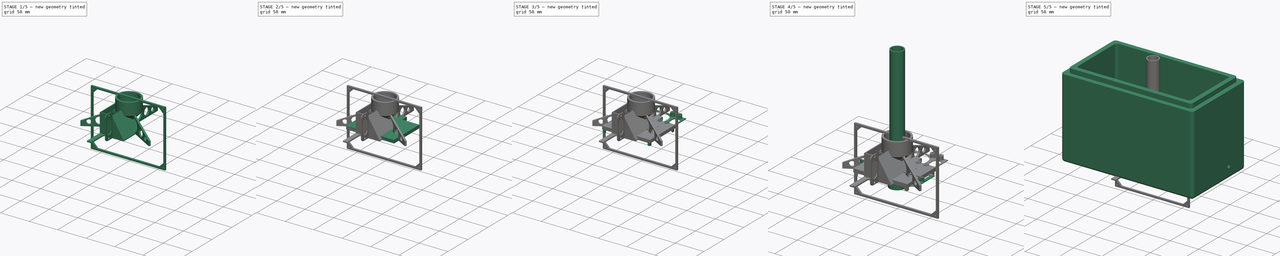
[diagram: build sequence overview — one tinted view per stage of 5, left to right]
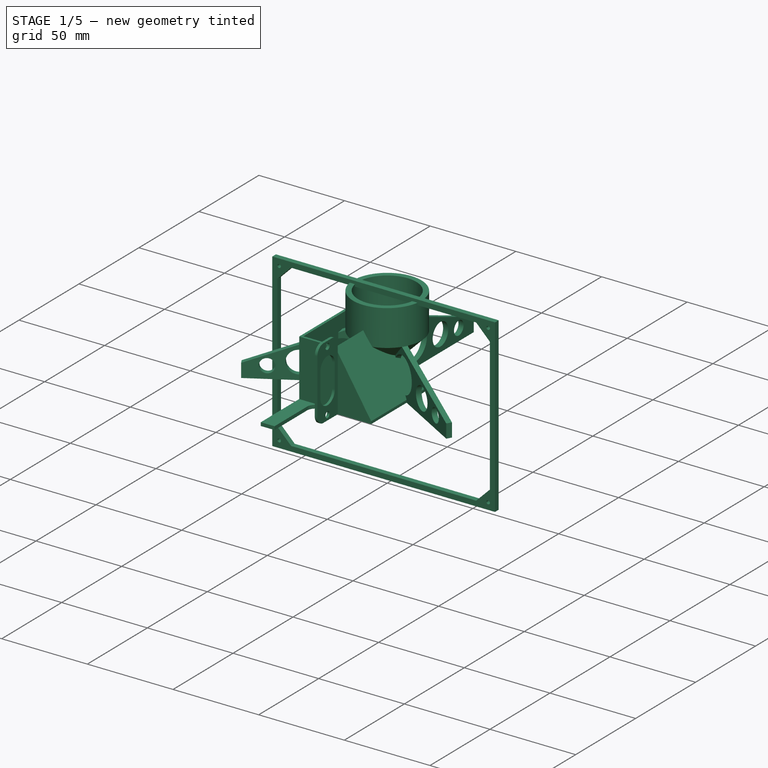
[diagram: stage 1 of 5 — iso view after this stage's code; geometry added in this stage tinted green]
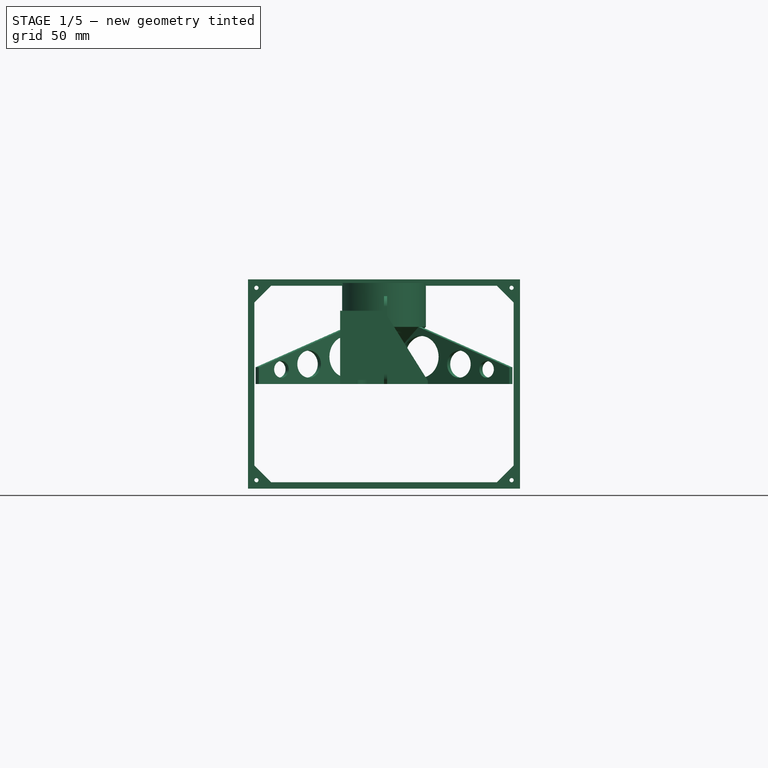
[diagram: stage 1 of 5 — front view after this stage's code; geometry added in this stage tinted green]
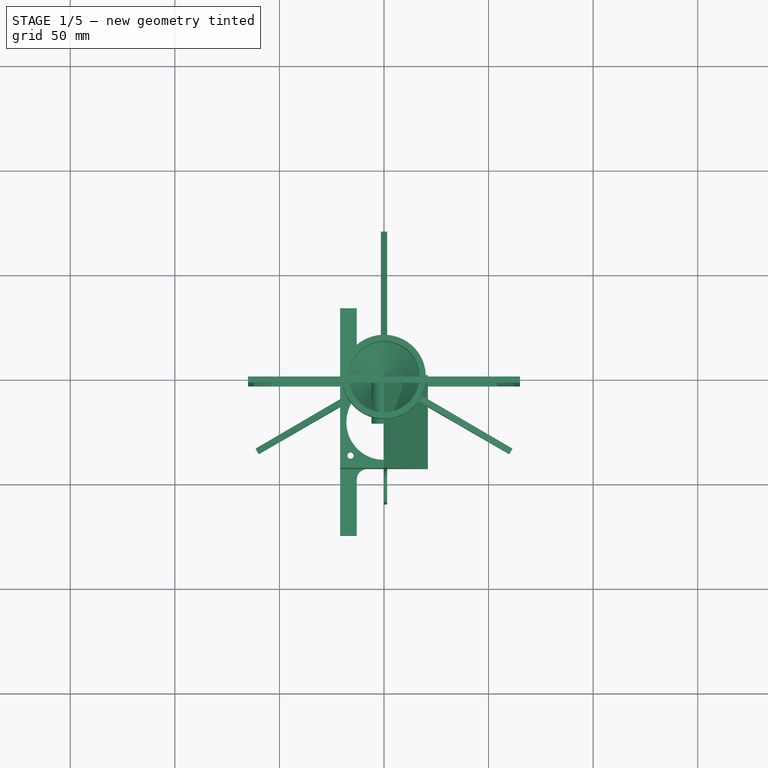
[diagram: stage 1 of 5 — top view after this stage's code; geometry added in this stage tinted green]
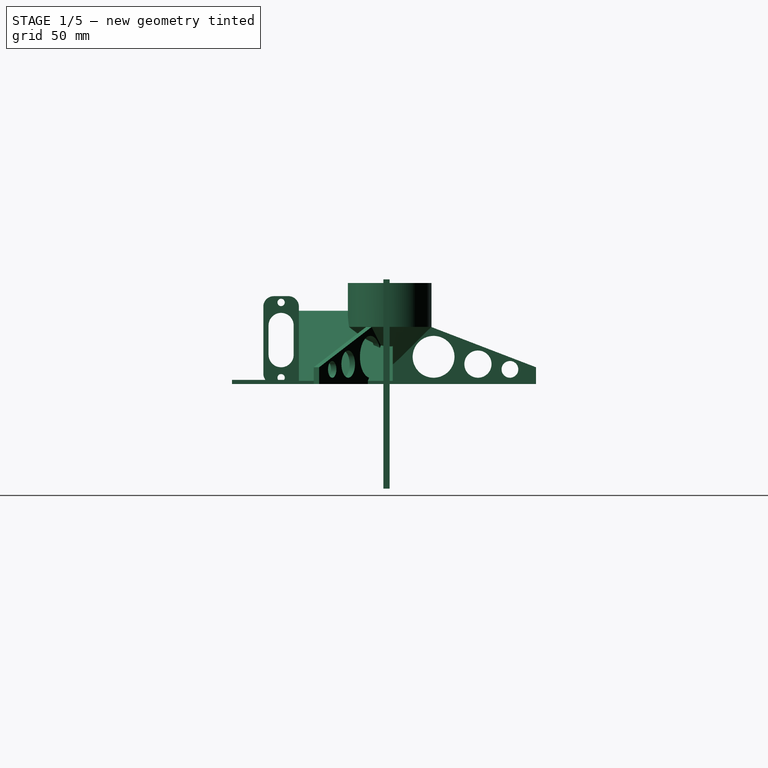
[diagram: stage 1 of 5 — right view after this stage's code; geometry added in this stage tinted green]
FCSTD DOCUMENT  (FreeCAD 1.0R39319 (Git))
Label: MiniIncubator
License: All rights reserved
LicenseURL: https://en.wikipedia.org/wiki/All_rights_reserved
objects: Sketcher::SketchObject×81, PartDesign::Pad×52, PartDesign::Pocket×24, PartDesign::Body×18, App::VarSet×9, App::DocumentObjectGroup×4, PartDesign::Fillet×3, PartDesign::Revolution×2, Part::FeaturePython×1, PartDesign::PolarPattern×1
note: 426 computed .brp shape members not serialized (recipe doc carries the construction recipe); baked Part::Feature solids carry a one-line shape summary decoded from their .brp

FEATURE [PartDesign::Body] Body011  label="ElectronicsBoxCover"
  AllowCompound = false
  Group = -> [Sketch058,Pad036,Sketch059,Pad037,Sketch060,Pocket018,Sketch064,Pocket020,Sketch065,Pad040,Sketch066,Pocket021,Sketch067,Pad041,Sketch069,Pad042,Sketch070,Pocket022,Sketch071,Pad043]
  Origin = -> Origin011
  Tip = -> Pad043
FEATURE [App::DocumentObjectGroup] Group002  label="ElectronicsMounts"
  Group = -> [Body011,Facebinder,Body014]
FEATURE [Sketcher::SketchObject] Sketch072
  ArcFitTolerance = 1e-06
  AttachmentSupport = -> [XZ_Plane015]
  FullyConstrained = true
  MakeInternals = false
  MapMode = 5
  Placement = pos=(0,0,0) rot=(1,0,0;1.5708rad)
  expr: Constraints[20] = <<Measurements>>.HeatingElementLength + 30 mm
  expr: Constraints[21] = <<Measurements>>.HeatingElementLength
  expr: Constraints[22] = <<Measurements>>.IncubatorInnerWidth
  expr: Constraints[23] = <<Measurements>>.HeatingElementWidth
  sketch-geometry (26):
    g0: LineSegment StartX=-65 StartY=50 StartZ=0 EndX=-65 EndY=-50 EndZ=0
    g1: LineSegment StartX=-65 StartY=-50 StartZ=0 EndX=65 EndY=-50 EndZ=0
    g2: LineSegment StartX=65 StartY=-50 StartZ=0 EndX=65 EndY=50 EndZ=0
    g3: LineSegment StartX=65 StartY=50 StartZ=0 EndX=-65 EndY=50 EndZ=0
    g4: GeomPoint [constr] X=0 Y=0 Z=0
    g5: LineSegment [constr] StartX=-50 StartY=40 StartZ=0 EndX=-50 EndY=-40 EndZ=0
    g6: LineSegment [constr] StartX=-50 StartY=-40 StartZ=0 EndX=50 EndY=-40 EndZ=0
    g7: LineSegment [constr] StartX=50 StartY=-40 StartZ=0 EndX=50 EndY=40 EndZ=0
    g8: LineSegment [constr] StartX=50 StartY=40 StartZ=0 EndX=-50 EndY=40 EndZ=0
    g9: GeomPoint [constr] X=0 Y=0 Z=0
    g10: LineSegment StartX=-62 StartY=39 StartZ=0 EndX=-62 EndY=-39 EndZ=0
    g11: LineSegment StartX=62 StartY=39 StartZ=0 EndX=62 EndY=-39 EndZ=0
    g12: LineSegment StartX=62 StartY=-39 StartZ=0 EndX=54 EndY=-47 EndZ=0
    g13: LineSegment StartX=54 StartY=-47 StartZ=0 EndX=-54 EndY=-47 EndZ=0
    g14: LineSegment StartX=-62 StartY=39 StartZ=0 EndX=-54 EndY=47 EndZ=0
    g15: LineSegment StartX=-54 StartY=47 StartZ=0 EndX=54 EndY=47 EndZ=0
    g16: LineSegment StartX=54 StartY=47 StartZ=0 EndX=62 EndY=39 EndZ=0
    g17: LineSegment StartX=-62 StartY=-39 StartZ=0 EndX=-54 EndY=-47 EndZ=0
    g18: LineSegment [constr] StartX=-54 StartY=47 StartZ=0 EndX=-54 EndY=50 EndZ=0
    g19: LineSegment [constr] StartX=-62 StartY=39 StartZ=0 EndX=-65 EndY=39 EndZ=0
    g20: LineSegment [constr] StartX=62 StartY=39 StartZ=0 EndX=65 EndY=39 EndZ=0
    g21: LineSegment [constr] StartX=-54 StartY=-47 StartZ=0 EndX=-54 EndY=-50 EndZ=0
    g22: Circle CenterX=-61 CenterY=46 CenterZ=0 NormalX=0 NormalY=0 NormalZ=1 AngleXU=0 Radius=1
    g23: Circle CenterX=61 CenterY=46 CenterZ=0 NormalX=0 NormalY=0 NormalZ=1 AngleXU=0 Radius=1
    g24: Circle CenterX=61 CenterY=-46 CenterZ=0 NormalX=0 NormalY=0 NormalZ=1 AngleXU=0 Radius=1
    g25: Circle CenterX=-61 CenterY=-46 CenterZ=0 NormalX=0 NormalY=0 NormalZ=1 AngleXU=0 Radius=1
  constraints (72):
    c: Coincident(g0,g1)
    c: Coincident(g1,g2)
    c: Coincident(g2,g3)
    c: Coincident(g3,g0)
    c: Vertical(g0)
    c: Vertical(g2)
    c: Horizontal(g1)
    c: Horizontal(g3)
    c: Symmetric(g2,g0,g4)
    c: Coincident(g4,g-1)
    c: Coincident(g5,g6)
    c: Coincident(g6,g7)
    c: Coincident(g7,g8)
    c: Coincident(g8,g5)
    c: Vertical(g5)
    c: Vertical(g7)
    c: Horizontal(g6)
    c: Horizontal(g8)
    c: Symmetric(g7,g5,g9)
    c: Coincident(g9,g4)
    c: DistanceX(g3,g3) = 130
    c: DistanceX(g8,g8) = 100
    c: DistanceY(g0,g0) = 100
    c: DistanceY(g5,g5) = 80
    c: Vertical(g10)
    c: Vertical(g11)
    c: Coincident(g12,g11)
    c: Coincident(g13,g12)
    c: Horizontal(g13)
    c: Coincident(g14,g10)
    c: Coincident(g15,g14)
    c: Horizontal(g15)
    c: Coincident(g16,g15)
    c: Coincident(g16,g11)
    c: Coincident(g17,g10)
    c: Coincident(g17,g13)
    c: DistanceY(g14,g0) = 3
    c: Coincident(g18,g14)
    c: PointOnObject(g18,g3)
    c: Vertical(g18)
    c: Coincident(g19,g10)
    c: PointOnObject(g19,g0)
    c: Horizontal(g19)
    c: Equal(g18,g19)
    c: Coincident(g20,g11)
    c: PointOnObject(g20,g2)
    c: Horizontal(g20)
    c: Coincident(g21,g13)
    c: PointOnObject(g21,g1)
    c: Vertical(g21)
    c: Equal(g19,g21)
    c: Equal(g20,g18)
    c: Equal(g10,g11)
    c: Equal(g15,g13)
    c: Parallel(g17,g16)
    c: Parallel(g14,g12)
    c: Angle(g13,g12) = 0.785398
    c: Angle(g17,g13) = 0.785398
    c: DistanceX(g10,g13) = 8
    c: Equal(g17,g12)
    c: Diameter(g22) = 2
    c: Tangent(g25,g13)
    c: Tangent(g25,g10)
    c: Tangent(g22,g10)
    c: Tangent(g22,g15)
    c: Tangent(g15,g23)
    c: Tangent(g23,g11)
    c: Equal(g22,g23)
    c: Equal(g23,g24)
    c: Tangent(g24,g11)
    c: Tangent(g13,g24)
    c: Equal(g24,g25)
FEATURE [PartDesign::Pad] Pad044
  Direction = (0,-1,2e-16)
  Length = 3
  Length2 = 10
  Placement = pos=(0,0,0) rot=(1,0,0;1.5708rad)
  Profile = -> Sketch072
  ReferenceAxis = -> Sketch072 [N_Axis]
  Refine = true
  Suppressed = false
  Type = 0
FEATURE [PartDesign::Body] Body015  label="HeatingElementHolder5V"
  AllowCompound = false
  Group = -> [Sketch072,Pad044]
  Origin = -> Origin015
  Tip = -> Pad044
FEATURE [Sketcher::SketchObject] Sketch075
  ArcFitTolerance = 1e-06
  AttachmentSupport = -> [XZ_Plane017]
  FullyConstrained = true
  MakeInternals = false
  MapMode = 5
  Placement = pos=(0,0,0) rot=(1,0,0;1.5708rad)
  sketch-geometry (9):
    g0: LineSegment StartX=-21 StartY=0 StartZ=0 EndX=21 EndY=0 EndZ=0
    g1: LineSegment StartX=-21 StartY=0 StartZ=0 EndX=-21 EndY=35 EndZ=0
    g2: LineSegment StartX=19.2296 StartY=1.5 StartZ=0 EndX=-19.5 EndY=1.5 EndZ=0
    g3: LineSegment StartX=-19.5 StartY=1.5 StartZ=0 EndX=-19.5 EndY=35 EndZ=0
    g4: LineSegment StartX=19.2296 StartY=1.5 StartZ=0 EndX=0 EndY=32.1759 EndZ=0
    g5: LineSegment StartX=21 StartY=0 StartZ=0 EndX=21 EndY=1.5 EndZ=0
    g6: LineSegment StartX=0 StartY=35 StartZ=0 EndX=21 EndY=1.5 EndZ=0
    g7: LineSegment StartX=0 StartY=35 StartZ=0 EndX=0 EndY=32.1759 EndZ=0
    g8: LineSegment StartX=-21 StartY=35 StartZ=0 EndX=-19.5 EndY=35 EndZ=0
  constraints (26):
    c: Coincident(g1,g0)
    c: Vertical(g1)
    c: DistanceY(g1,g1) = 35
    c: PointOnObject(g0,g-1)
    c: DistanceX(g0,g0) = 42
    c: Distance(g2,g-1) = 1.5
    c: Horizontal(g2)
    c: Coincident(g3,g2)
    c: Vertical(g3)
    c: Coincident(g4,g2)
    c: PointOnObject(g4,g-2)
    c: Coincident(g5,g0)
    c: Vertical(g5)
    c: PointOnObject(g6,g-2)
    c: Coincident(g6,g5)
    c: Horizontal(g5,g2)
    c: Distance(g2,g6) = 1.5
    c: Parallel(g4,g6)
    c: Coincident(g7,g6)
    c: Coincident(g7,g4)
    c: Coincident(g8,g1)
    c: Coincident(g8,g3)
    c: Horizontal(g8)
    c: DistanceX(g8,g8) = 1.5
    c: Horizontal(g3,g6)
    c: Symmetric(g0,g0,g-2)
FEATURE [PartDesign::Pad] Pad047
  Direction = (0,-1,2e-16)
  Length = 42
  Length2 = 10
  Placement = pos=(0,0,0) rot=(1,0,0;1.5708rad)
  Profile = -> Sketch075
  ReferenceAxis = -> Sketch075 [N_Axis]
  Refine = true
  Suppressed = false
  Type = 0
FEATURE [Sketcher::SketchObject] Sketch076
  ArcFitTolerance = 1e-06
  AttachmentSupport = -> [Pad047]
  ExternalGeometry = -> [Pad047]
  FullyConstrained = false
  MakeInternals = false
  MapMode = 5
  Placement = pos=(0,0,0) rot=(1,0,0;3.14159rad)
  sketch-geometry (9):
    g0: Circle CenterX=-7.9e-15 CenterY=21 CenterZ=0 NormalX=0 NormalY=0 NormalZ=1 AngleXU=0 Radius=18
    g1: LineSegment [constr] StartX=-21 StartY=0 StartZ=0 EndX=21 EndY=0 EndZ=0
    g2: GeomPoint [constr] X=-7.9e-15 Y=21 Z=0
    g3: LineSegment [constr] StartX=-16 StartY=37 StartZ=0 EndX=16 EndY=37 EndZ=0
    g4: LineSegment [constr] StartX=-16 StartY=5 StartZ=0 EndX=16 EndY=5 EndZ=0
    g5: Circle CenterX=-16 CenterY=37 CenterZ=0 NormalX=0 NormalY=0 NormalZ=1 AngleXU=0 Radius=1.5
    g6: Circle CenterX=16 CenterY=37 CenterZ=0 NormalX=0 NormalY=0 NormalZ=1 AngleXU=0 Radius=1.5
    g7: Circle CenterX=16 CenterY=5 CenterZ=0 NormalX=0 NormalY=0 NormalZ=1 AngleXU=0 Radius=1.5
    g8: Circle CenterX=-16 CenterY=5 CenterZ=0 NormalX=0 NormalY=0 NormalZ=1 AngleXU=0 Radius=1.5
  constraints (19):
    c: Diameter(g0) = 36
    c: Coincident(g2,g0)
    c: DistanceX(g3,g3) = 32
    c: Equal(g3,g4)
    c: Symmetric(g4,g3,g0)
    c: DistanceY(g4,g3) = 32
    c: Horizontal(g3)
    c: Diameter(g5) = 3
    c: Coincident(g5,g3)
    c: Coincident(g6,g3)
    c: Coincident(g7,g4)
    c: Coincident(g8,g4)
    c: Equal(g5,g8)
    c: Equal(g8,g7)
    c: Equal(g7,g6)
    c: Symmetric(g4,g4,g-2)
    c: Vertical(g3,g4)
    c: PointOnObject(g1,g-1)
    c: DistanceY(g0,g-3) = 21
FEATURE [PartDesign::Pocket] Pocket023
  BaseFeature = -> Pad047
  Direction = (0,0,1)
  Length = 2
  Length2 = 5
  Placement = pos=(0,0,0) rot=(1,0,0;1.5708rad)
  Profile = -> Sketch076
  ReferenceAxis = -> Sketch076 [N_Axis]
  Refine = true
  Suppressed = false
  Type = 0
FEATURE [Sketcher::SketchObject] Sketch077
  ArcFitTolerance = 1e-06
  AttachmentSupport = -> [Pocket023]
  ExternalGeometry = -> [Pocket023]
  FullyConstrained = true
  MakeInternals = false
  MapMode = 5
  Placement = pos=(0,2.7e-15,0) rot=(-1,0,0;1.5708rad)
  sketch-geometry (5):
    g0: LineSegment StartX=-21 StartY=-35 StartZ=0 EndX=0 EndY=-35 EndZ=0
    g1: LineSegment StartX=0 StartY=-35 StartZ=0 EndX=21 EndY=-1.5 EndZ=0
    g2: LineSegment StartX=21 StartY=-1.5 StartZ=0 EndX=21 EndY=0 EndZ=0
    g3: LineSegment StartX=21 StartY=0 StartZ=0 EndX=-21 EndY=0 EndZ=0
    g4: LineSegment StartX=-21 StartY=0 StartZ=0 EndX=-21 EndY=-35 EndZ=0
  constraints (10):
    c: Coincident(g0,g-3)
    c: Coincident(g0,g-4)
    c: Coincident(g1,g0)
    c: Coincident(g1,g-4)
    c: Coincident(g2,g1)
    c: Coincident(g2,g-5)
    c: Coincident(g3,g2)
    c: Coincident(g3,g-5)
    c: Coincident(g4,g3)
    c: Coincident(g4,g0)
FEATURE [PartDesign::Pad] Pad048
  BaseFeature = -> Pocket023
  Direction = (0,1,2e-16)
  Length = 1.5
  Length2 = 10
  Placement = pos=(0,0,0) rot=(1,0,0;1.5708rad)
  Profile = -> Sketch077
  ReferenceAxis = -> Sketch077 [N_Axis]
  Refine = true
  Suppressed = false
  Type = 0
FEATURE [Sketcher::SketchObject] Sketch078
  ArcFitTolerance = 1e-06
  AttachmentSupport = -> [Pad048]
  ExternalGeometry = -> [Pad048]
  FullyConstrained = true
  MakeInternals = false
  MapMode = 5
  Placement = pos=(0,-42,0) rot=(1,0,0;1.5708rad)
  sketch-geometry (5):
    g0: LineSegment StartX=-21 StartY=35 StartZ=0 EndX=-21 EndY=0 EndZ=0
    g1: LineSegment StartX=-21 StartY=0 StartZ=0 EndX=21 EndY=0 EndZ=0
    g2: LineSegment StartX=21 StartY=0 StartZ=0 EndX=21 EndY=1.5 EndZ=0
    g3: LineSegment StartX=21 StartY=1.5 StartZ=0 EndX=0 EndY=35 EndZ=0
    g4: LineSegment StartX=0 StartY=35 StartZ=0 EndX=-21 EndY=35 EndZ=0
  constraints (10):
    c: Coincident(g0,g-3)
    c: Coincident(g0,g-5)
    c: Coincident(g1,g0)
    c: Coincident(g1,g-5)
    c: Coincident(g2,g1)
    c: Coincident(g2,g-4)
    c: Coincident(g3,g2)
    c: Coincident(g3,g-4)
    c: Coincident(g4,g3)
    c: Coincident(g4,g0)
FEATURE [PartDesign::Pad] Pad049
  BaseFeature = -> Pad048
  Direction = (0,-1,2e-16)
  Length = 1.4
  Length2 = 10
  Placement = pos=(0,0,0) rot=(1,0,0;1.5708rad)
  Profile = -> Sketch078
  ReferenceAxis = -> Sketch078 [N_Axis]
  Refine = true
  Suppressed = false
  Type = 0
FEATURE [Sketcher::SketchObject] Sketch079
  ArcFitTolerance = 1e-06
  AttachmentSupport = -> [Pad049]
  ExternalGeometry = -> [Pad049]
  FullyConstrained = true
  MakeInternals = false
  MapMode = 5
  Placement = pos=(0,1.5,0) rot=(-1,0,0;1.5708rad)
  sketch-geometry (4):
    g0: LineSegment StartX=-21 StartY=-2e-16 StartZ=0 EndX=-21 EndY=-2 EndZ=0
    g1: LineSegment StartX=-21 StartY=-2 StartZ=0 EndX=-13 EndY=-2 EndZ=0
    g2: LineSegment StartX=-13 StartY=-2 StartZ=0 EndX=-13 EndY=-2e-16 EndZ=0
    g3: LineSegment StartX=-13 StartY=-2e-16 StartZ=0 EndX=-21 EndY=-2e-16 EndZ=0
  constraints (11):
    c: Coincident(g0,g1)
    c: Coincident(g1,g2)
    c: Coincident(g2,g3)
    c: Coincident(g3,g0)
    c: Vertical(g0)
    c: Vertical(g2)
    c: Horizontal(g1)
    c: Horizontal(g3)
    c: Coincident(g0,g-3)
    c: DistanceY(g0,g0) = 2
    c: DistanceX(g1,g1) = 8
FEATURE [PartDesign::Pad] Pad050
  BaseFeature = -> Pad049
  Direction = (0,1,2e-16)
  Length = 32
  Length2 = 10
  Placement = pos=(0,0,0) rot=(1,0,0;1.5708rad)
  Profile = -> Sketch079
  ReferenceAxis = -> Sketch079 [N_Axis]
  Refine = true
  Suppressed = false
  Type = 0
  expr: Length = (<<Measurements>>.IncubatorInnerWidth - 42 mm) / 2 + 3 mm
FEATURE [Sketcher::SketchObject] Sketch080
  ArcFitTolerance = 1e-06
  AttachmentSupport = -> [Pad050]
  ExternalGeometry = -> [Pad050]
  FullyConstrained = true
  MakeInternals = false
  MapMode = 5
  Placement = pos=(0,-43.4,0) rot=(1,0,0;1.5708rad)
  sketch-geometry (4):
    g0: LineSegment StartX=-21 StartY=2 StartZ=0 EndX=-21 EndY=4e-16 EndZ=0
    g1: LineSegment StartX=-21 StartY=4e-16 StartZ=0 EndX=-13 EndY=4e-16 EndZ=0
    g2: LineSegment StartX=-13 StartY=4e-16 StartZ=0 EndX=-13 EndY=2 EndZ=0
    g3: LineSegment StartX=-13 StartY=2 StartZ=0 EndX=-21 EndY=2 EndZ=0
  constraints (11):
    c: Coincident(g0,g1)
    c: Coincident(g1,g2)
    c: Coincident(g2,g3)
    c: Coincident(g3,g0)
    c: Vertical(g0)
    c: Vertical(g2)
    c: Horizontal(g1)
    c: Horizontal(g3)
    c: Coincident(g0,g-3)
    c: DistanceY(g0,g0) = 2
    c: DistanceX(g3,g3) = 8
FEATURE [PartDesign::Pad] Pad051
  BaseFeature = -> Pad050
  Direction = (0,-1,2e-16)
  Length = 32
  Length2 = 10
  Placement = pos=(0,0,0) rot=(1,0,0;1.5708rad)
  Profile = -> Sketch080
  ReferenceAxis = -> Sketch080 [N_Axis]
  Refine = true
  Suppressed = false
  Type = 0
  expr: Length = (<<Measurements>>.IncubatorInnerWidth - 42 mm) / 2 + 3 mm
FEATURE [Sketcher::SketchObject] Sketch081
  ArcFitTolerance = 1e-06
  AttachmentSupport = -> [Pad051]
  ExternalGeometry = -> [Pad051]
  FullyConstrained = true
  MakeInternals = false
  MapMode = 5
  Placement = pos=(0,-43.4,0) rot=(1,0,0;1.5708rad)
  sketch-geometry (4):
    g0: LineSegment StartX=0 StartY=0 StartZ=0 EndX=1.5 EndY=0 EndZ=0
    g1: LineSegment StartX=1.5 StartY=0 StartZ=0 EndX=1.5 EndY=42 EndZ=0
    g2: LineSegment StartX=1.5 StartY=42 StartZ=0 EndX=0 EndY=42 EndZ=0
    g3: LineSegment StartX=0 StartY=0 StartZ=0 EndX=0 EndY=42 EndZ=0
  constraints (11):
    c: Vertical(g1)
    c: Horizontal(g0)
    c: Horizontal(g2)
    c: Distance(g2,g2) = 1.5
    c: DistanceY(g1,g1) = 42
    c: Coincident(g3,g-1)
    c: PointOnObject(g3,g-2)
    c: Coincident(g3,g2)
    c: Coincident(g2,g1)
    c: Coincident(g0,g3)
    c: Coincident(g0,g1)
FEATURE [PartDesign::Pad] Pad052
  BaseFeature = -> Pad051
  Direction = (0,-1,2e-16)
  Length = 17
  Length2 = 10
  Placement = pos=(0,0,0) rot=(1,0,0;1.5708rad)
  Profile = -> Sketch081
  ReferenceAxis = -> Sketch081 [N_Axis]
  Refine = true
  Suppressed = false
  Type = 0
FEATURE [Sketcher::SketchObject] Sketch082
  ArcFitTolerance = 1e-06
  AttachmentSupport = -> [Pad052]
  ExternalGeometry = -> [Pad052]
  FullyConstrained = true
  MakeInternals = false
  MapMode = 5
  Placement = pos=(0,0,0) rot=(0.707107,0,-0.707107;3.14159rad)
  sketch-geometry (8):
    g0: Circle CenterX=-39 CenterY=51.9 CenterZ=0 NormalX=0 NormalY=0 NormalZ=1 AngleXU=0 Radius=1.75
    g1: Circle CenterX=-3 CenterY=51.9 CenterZ=0 NormalX=0 NormalY=0 NormalZ=1 AngleXU=0 Radius=1.75
    g2: ArcOfCircle CenterX=-28 CenterY=51.9 CenterZ=0 NormalX=0 NormalY=0 NormalZ=1 AngleXU=0 Radius=6 StartAngle=1.5708 EndAngle=4.71239
    g3: ArcOfCircle CenterX=-14 CenterY=51.9 CenterZ=0 NormalX=0 NormalY=0 NormalZ=1 AngleXU=0 Radius=6 StartAngle=4.71239 EndAngle=7.85398
    g4: LineSegment StartX=-28 StartY=57.9 StartZ=0 EndX=-14 EndY=57.9 EndZ=0
    g5: LineSegment StartX=-28 StartY=45.9 StartZ=0 EndX=-14 EndY=45.9 EndZ=0
    g6: LineSegment [constr] StartX=-39 StartY=51.9 StartZ=0 EndX=-3 EndY=51.9 EndZ=0
    g7: GeomPoint [constr] X=-21 Y=51.9 Z=0
  constraints (17):
    c: Tangent(g2,g4) = 1.5708
    c: Tangent(g2,g5) = -1.5708
    c: Tangent(g3,g4) = 1.5708
    c: Tangent(g3,g5) = -1.5708
    c: Equal(g2,g3)
    c: Radius(g2) = 6
    c: Coincident(g6,g0)
    c: Coincident(g6,g1)
    c: Symmetric(g6,g6,g7)
    c: Symmetric(g3,g2,g7)
    c: Parallel(g5,g6)
    c: DistanceX(g2,g3) = 14
    c: DistanceX(g0,g1) = 36
    c: Symmetric(g-3,g-3,g6)
    c: Distance(g0,g-3) = 3
    c: Diameter(g0) = 3.5
    c: Equal(g0,g1)
FEATURE [PartDesign::Pocket] Pocket024
  BaseFeature = -> Pad052
  Direction = (1,0,2e-16)
  Length = 5
  Length2 = 5
  Placement = pos=(0,0,0) rot=(1,0,0;1.5708rad)
  Profile = -> Sketch082
  ReferenceAxis = -> Sketch082 [N_Axis]
  Refine = true
  Suppressed = false
  Type = 0
FEATURE [PartDesign::Fillet] Fillet002
  Base = -> Pocket024 [Edge79,Edge67,Edge24,Edge3,Edge48]
  BaseFeature = -> Pocket024
  Placement = pos=(0,0,0) rot=(1,0,0;1.5708rad)
  Radius = 5
  Refine = true
  SupportTransform = false
  Suppressed = false
  UseAllEdges = false
FEATURE [PartDesign::Body] Body017  label="Blower"
  AllowCompound = false
  Group = -> [Sketch075,Pad047,Sketch076,Pocket023,Sketch077,Pad048,Sketch078,Pad049,Sketch079,Pad050,Sketch080,Pad051,Sketch081,Pad052,Sketch082,Pocket024,Fillet002]
  Origin = -> Origin017
  Tip = -> Fillet002
FEATURE [App::DocumentObjectGroup] Group003  label="Heating"
  Group = -> [Body015,Body017]
FEATURE [Sketcher::SketchObject] Sketch083
  ArcFitTolerance = 1e-06
  AttachmentSupport = -> [XZ_Plane018]
  FullyConstrained = true
  MakeInternals = false
  MapMode = 5
  Placement = pos=(0,0,0) rot=(1,0,0;1.5708rad)
  expr: Constraints[3] = <<WaterBottleHolderMeasurements001>>.BottleNeckHight
  sketch-geometry (8):
    g0: LineSegment [constr] StartX=-17 StartY=28.3 StartZ=0 EndX=17 EndY=28.3 EndZ=0
    g1: LineSegment StartX=-20 StartY=28.3 StartZ=0 EndX=-20 EndY=48.3 EndZ=0
    g2: LineSegment StartX=-20 StartY=48.3 StartZ=0 EndX=-17 EndY=48.3 EndZ=0
    g3: LineSegment StartX=-17 StartY=48.3 StartZ=0 EndX=-17 EndY=28.3 EndZ=0
    g4: LineSegment StartX=-20 StartY=28.3 StartZ=0 EndX=-20 EndY=27.3 EndZ=0
    g5: LineSegment StartX=-20 StartY=27.3 StartZ=0 EndX=0 EndY=7.3 EndZ=0
    g6: LineSegment StartX=-17 StartY=28.3 StartZ=0 EndX=0 EndY=11.3 EndZ=0
    g7: LineSegment StartX=0 StartY=7.3 StartZ=0 EndX=0 EndY=11.3 EndZ=0
  constraints (23):
    c: Symmetric(g0,g0,g-2)
    c: DistanceX(g0,g0) = 34
    c: Vertical(g1)
    c: DistanceY(g1,g1) = 20
    c: Coincident(g2,g1)
    c: Horizontal(g2)
    c: Coincident(g3,g2)
    c: Vertical(g3)
    c: Coincident(g3,g0)
    c: DistanceX(g2,g2) = 3
    c: Equal(g1,g3)
    c: Distance(g4) = 1
    c: Coincident(g4,g1)
    c: Vertical(g4)
    c: Coincident(g5,g4)
    c: Angle(g-2,g5) = 0.785398
    c: PointOnObject(g5,g-2)
    c: Coincident(g6,g0)
    c: PointOnObject(g6,g-2)
    c: Parallel(g5,g6)
    c: Coincident(g7,g5)
    c: Coincident(g7,g6)
    c: DistanceY(g-1,g5) = 7.3
FEATURE [PartDesign::Revolution] Revolution001
  Angle = 360
  Angle2 = 60
  Axis = (0,2e-16,1)
  Base = (0,0,0)
  Placement = pos=(0,0,0) rot=(1,0,0;1.5708rad)
  Profile = -> Sketch083
  ReferenceAxis = -> Sketch083 [V_Axis]
  Refine = true
  Suppressed = false
  Type = 0
FEATURE [App::VarSet] VarSet006  label="Measurements001"
  HeatingElementLength = 100
  HeatingElementWidth = 80
  IncubatorInnerHight = 130
  IncubatorInnerLength = 200
  IncubatorInnerWidth = 100
  IncubatorWallThickness = 16
  WaterTubeDistanceFromWall = 10
  WaterTubeInnerDiameter = 7
  WaterTubeOuterDiameter = 10
FEATURE [App::VarSet] VarSet007  label="BasinMeasurements001"
  Height = 20
  WallThickness = 0.8
  WaterInletWallThickness = 1.5
FEATURE [App::VarSet] VarSet008  label="WaterBottleHolderMeasurements001"
  BottleNeckDiameter = 32
  BottleNeckHight = 20
  WallThickness = 0.8
FEATURE [Sketcher::SketchObject] Sketch086
  ArcFitTolerance = 1e-06
  AttachmentSupport = -> [XY_Plane002]
  FullyConstrained = true
  MakeInternals = false
  MapMode = 5
FEATURE [PartDesign::Body] Body002  label="WaterBottleHolder"
  AllowCompound = false
  Group = -> [Sketch011,VarSet002,Revolution,Sketch012,Pad004,Sketch013,Pad005,Sketch014,Pocket006,Sketch086]
  Origin = -> Origin002
  Tip = -> Pocket006
  WallThickness = 2
FEATURE [Sketcher::SketchObject] Sketch087
  ArcFitTolerance = 1e-06
  AttachmentSupport = -> [YZ_Plane018]
  FullyConstrained = true
  MakeInternals = false
  MapMode = 5
  Placement = pos=(0,0,0) rot=(0.57735,0.57735,0.57735;2.0944rad)
  sketch-geometry (8):
    g0: LineSegment StartX=0 StartY=0 StartZ=0 EndX=0 EndY=10 EndZ=0
    g1: LineSegment StartX=0 StartY=10 StartZ=0 EndX=18 EndY=28 EndZ=0
    g2: LineSegment StartX=18 StartY=28 StartZ=0 EndX=70 EndY=8 EndZ=0
    g3: LineSegment StartX=70 StartY=8 StartZ=0 EndX=70 EndY=0 EndZ=0
    g4: LineSegment StartX=70 StartY=0 StartZ=0 EndX=0 EndY=0 EndZ=0
    g5: Circle CenterX=21 CenterY=13 CenterZ=0 NormalX=0 NormalY=0 NormalZ=1 AngleXU=0 Radius=10
    g6: Circle CenterX=42.2132 CenterY=9.5 CenterZ=0 NormalX=0 NormalY=0 NormalZ=1 AngleXU=0 Radius=6.5
    g7: Circle CenterX=57.5103 CenterY=7 CenterZ=0 NormalX=0 NormalY=0 NormalZ=1 AngleXU=0 Radius=4
  constraints (23):
    c: Coincident(g0,g-1)
    c: PointOnObject(g0,g-2)
    c: Coincident(g1,g0)
    c: Coincident(g2,g1)
    c: Coincident(g3,g2)
    c: PointOnObject(g3,g-1)
    c: Vertical(g3)
    c: Coincident(g4,g3)
    c: Coincident(g4,g0)
    c: DistanceX(g4,g4) = 70
    c: DistanceY(g3,g3) = 8
    c: DistanceY(g-1,g1) = 28
    c: DistanceY(g0,g0) = 10
    c: Distance(g1,g-2) = 18
    c: Diameter(g5) = 20
    c: Distance(g5,g4) = 3
    c: Diameter(g6) = 13
    c: Distance(g6,g4) = 3
    c: Distance(g6,g5) = 5
    c: Distance(g7,g4) = 3
    c: Distance(g6,g7) = 5
    c: Diameter(g7) = 8
    c: DistanceX(g1,g5) = 3
FEATURE [PartDesign::Pad] Pad053
  BaseFeature = -> Revolution001
  Direction = (1,0,0)
  Length = 3
  Length2 = 10
  Midplane = true
  Placement = pos=(0,0,0) rot=(1,0,0;1.5708rad)
  Profile = -> Sketch087
  ReferenceAxis = -> Sketch087 [N_Axis]
  Refine = true
  Suppressed = false
  Type = 0
FEATURE [PartDesign::PolarPattern] PolarPattern
  Angle = 360
  Axis = -> Z_Axis018
  BaseFeature = -> Pad053
  Mode = 1
  Occurrences = 3
  Offset = 120
  Originals = -> [Pad053]
  Placement = pos=(0,0,0) rot=(1,0,0;1.5708rad)
  Refine = true
  Suppressed = false
  TransformMode = 0
FEATURE [Sketcher::SketchObject] Sketch088
  ArcFitTolerance = 1e-06
  AttachmentSupport = -> [XZ_Plane018]
  ExternalGeometry = -> [PolarPattern]
  FullyConstrained = true
  MakeInternals = false
  MapMode = 5
  Placement = pos=(0,0,0) rot=(1,0,0;1.5708rad)
  expr: Constraints[1] = <<Measurements001>>.WaterTubeOuterDiameter + 2 mm
  sketch-geometry (1):
    g0: Circle CenterX=0 CenterY=22.3 CenterZ=0 NormalX=0 NormalY=0 NormalZ=1 AngleXU=0 Radius=6
  constraints (3):
    c: PointOnObject(g0,g-2)
    c: Diameter(g0) = 12
    c: Tangent(g-3,g0)
FEATURE [PartDesign::Pad] Pad054
  BaseFeature = -> PolarPattern
  Direction = (0,-1,2e-16)
  Length = 22
  Length2 = 10
  Placement = pos=(0,0,0) rot=(1,0,0;1.5708rad)
  Profile = -> Sketch088
  ReferenceAxis = -> Sketch088 [N_Axis]
  Refine = true
  Suppressed = false
  Type = 0
FEATURE [Sketcher::SketchObject] Sketch089
  ArcFitTolerance = 1e-06
  AttachmentSupport = -> [YZ_Plane018]
  ExternalGeometry = -> [Pad054]
  FullyConstrained = true
  MakeInternals = false
  MapMode = 5
  Placement = pos=(0,0,0) rot=(0.57735,0.57735,0.57735;2.0944rad)
  sketch-geometry (3):
    g0: LineSegment StartX=-22 StartY=16.3 StartZ=0 EndX=0 EndY=0 EndZ=0
    g1: LineSegment StartX=-22 StartY=16.3 StartZ=0 EndX=0 EndY=16.3 EndZ=0
    g2: LineSegment StartX=0 StartY=16.3 StartZ=0 EndX=0 EndY=0 EndZ=0
  constraints (7):
    c: Coincident(g0,g-3)
    c: Coincident(g0,g-1)
    c: Coincident(g1,g0)
    c: PointOnObject(g1,g-2)
    c: Horizontal(g1)
    c: Coincident(g2,g1)
    c: Coincident(g2,g0)
FEATURE [PartDesign::Pad] Pad055
  BaseFeature = -> Pad054
  Direction = (1,0,0)
  Length = 2
  Length2 = 10
  Midplane = true
  Placement = pos=(0,0,0) rot=(1,0,0;1.5708rad)
  Profile = -> Sketch089
  ReferenceAxis = -> Sketch089 [N_Axis]
  Refine = true
  Suppressed = false
  Type = 0
FEATURE [Sketcher::SketchObject] Sketch090
  ArcFitTolerance = 1e-06
  AttachmentSupport = -> [Pad055]
  ExternalGeometry = -> [Pad055]
  FullyConstrained = true
  MakeInternals = false
  MapMode = 5
  Placement = pos=(0,-22,0) rot=(1,0,0;1.5708rad)
  expr: Constraints[1] = <<Measurements001>>.WaterTubeOuterDiameter
  sketch-geometry (1):
    g0: Circle CenterX=0 CenterY=22.3 CenterZ=0 NormalX=0 NormalY=0 NormalZ=1 AngleXU=0 Radius=5
  constraints (2):
    c: Coincident(g0,g-3)
    c: Diameter(g0) = 10
FEATURE [PartDesign::Pocket] Pocket025
  BaseFeature = -> Pad055
  Direction = (0,1,-2e-16)
  Length = 22
  Length2 = 5
  Placement = pos=(0,0,0) rot=(1,0,0;1.5708rad)
  Profile = -> Sketch090
  ReferenceAxis = -> Sketch090 [N_Axis]
  Refine = true
  Suppressed = false
  Type = 0
FEATURE [PartDesign::Body] Body018  label="WaterBottleHolder001"
  AllowCompound = false
  Group = -> [Sketch083,VarSet008,Revolution001,Sketch087,Pad053,PolarPattern,Sketch088,Pad054,Sketch089,Pad055,Sketch090,Pocket025]
  Origin = -> Origin018
  Tip = -> Pocket025
  WallThickness = 2
FEATURE [App::DocumentObjectGroup] Group  label="HumidityControl"
  Group = -> [Body001,Body002,Body003,Body018,VarSet006,VarSet007]
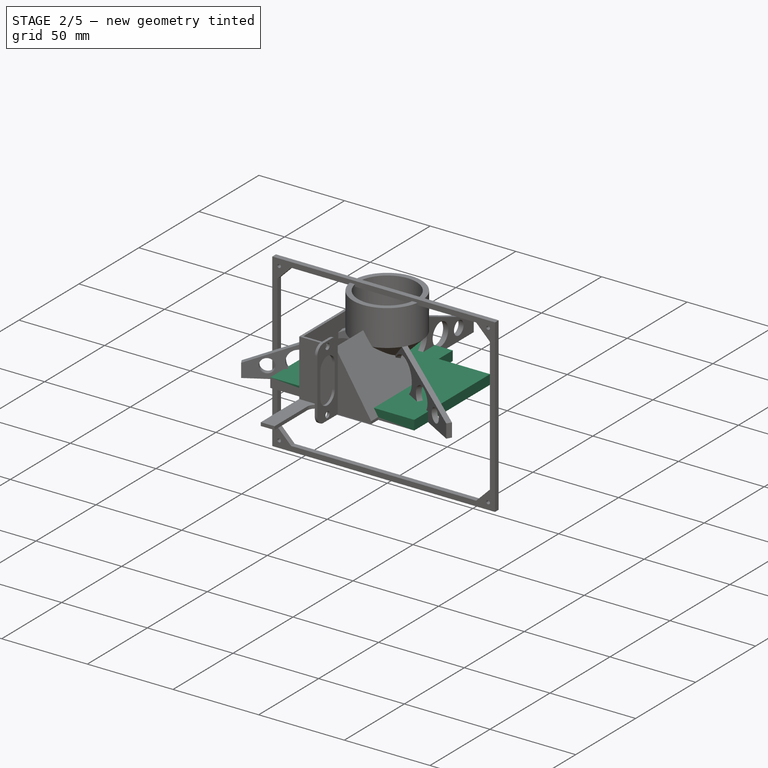
[diagram: stage 2 of 5 — iso view after this stage's code; geometry added in this stage tinted green]
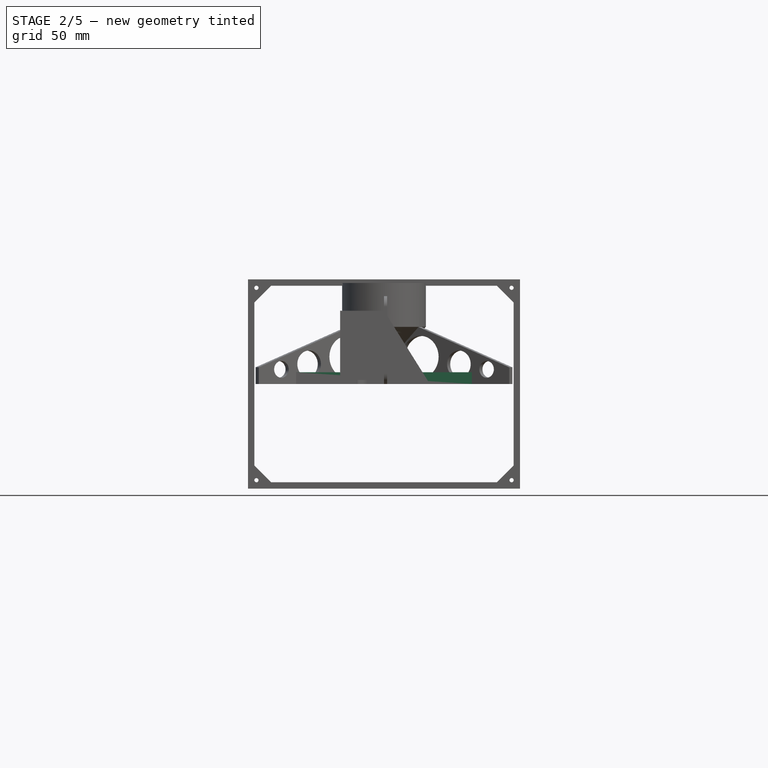
[diagram: stage 2 of 5 — front view after this stage's code; geometry added in this stage tinted green]
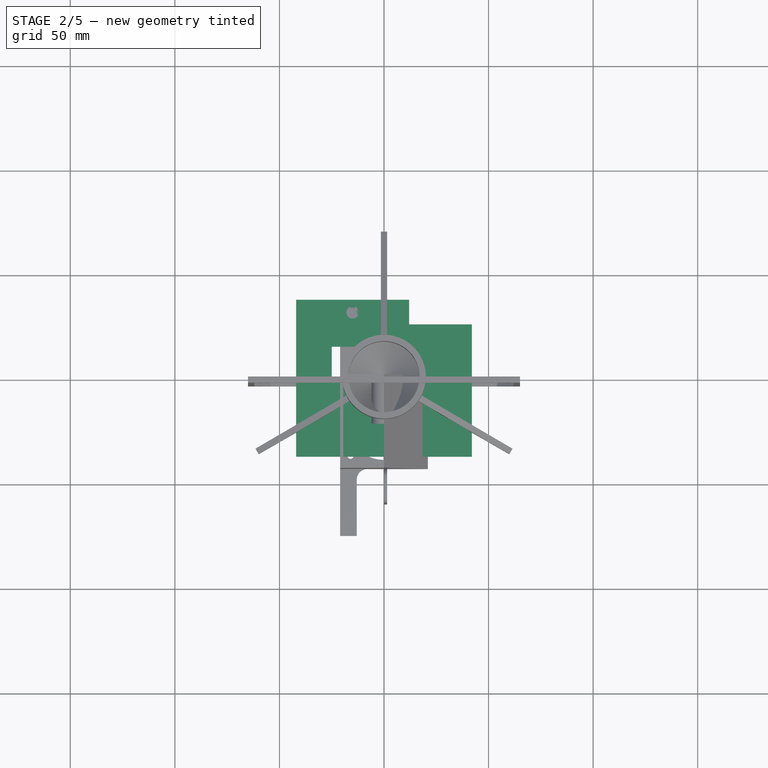
[diagram: stage 2 of 5 — top view after this stage's code; geometry added in this stage tinted green]
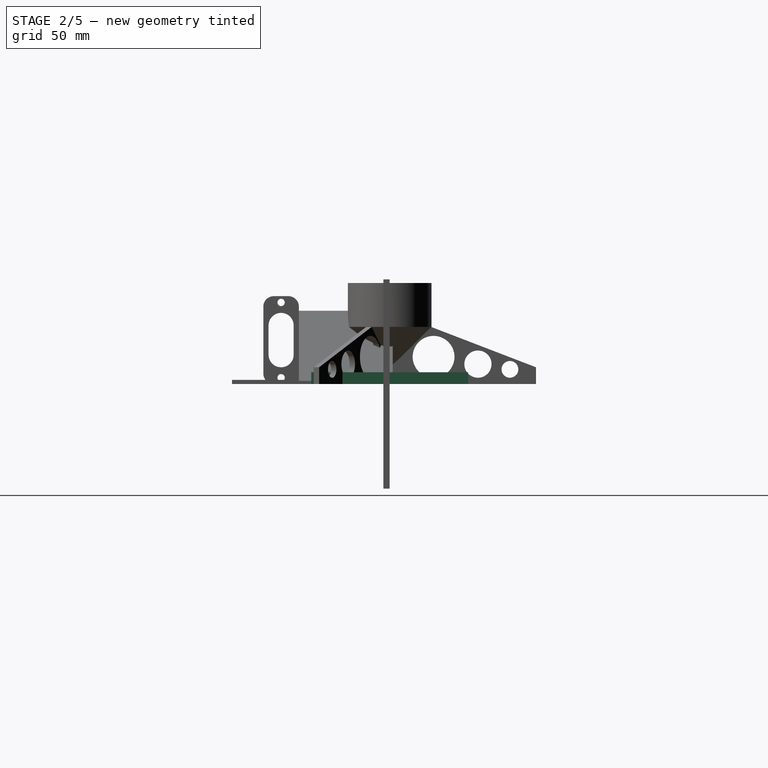
[diagram: stage 2 of 5 — right view after this stage's code; geometry added in this stage tinted green]
FEATURE [PartDesign::Body] Body012  label="PipesSupportMotorSide"
  AllowCompound = false
  Group = -> [Sketch039,Pad026,Sketch043,Sketch044,Pad027]
  Origin = -> Origin012
  Tip = -> Pad027
FEATURE [App::DocumentObjectGroup] Group001  label="EggsTurner"
  Group = -> [Body006,Body007,Body004,Body005,Body008,Body009,Body013,Body010,Body012]
FEATURE [Sketcher::SketchObject] Sketch045
  ArcFitTolerance = 1e-06
  AttachmentSupport = -> [XY_Plane014]
  FullyConstrained = false
  MakeInternals = false
  MapMode = 5
  sketch-geometry (17):
    g0: GeomPoint [constr] X=0 Y=40.1 Z=0
    g1: LineSegment [constr] StartX=-16 StartY=0 StartZ=0 EndX=28.5 EndY=0 EndZ=0
    g2: LineSegment [constr] StartX=-16 StartY=-32 StartZ=0 EndX=28.4972 EndY=-31.5 EndZ=0
    g3: Circle CenterX=-16 CenterY=0 CenterZ=0 NormalX=0 NormalY=0 NormalZ=1 AngleXU=0 Radius=2
    g4: Circle CenterX=-16 CenterY=-32 CenterZ=0 NormalX=0 NormalY=0 NormalZ=1 AngleXU=0 Radius=2
    g5: Circle CenterX=28.5 CenterY=0 CenterZ=0 NormalX=0 NormalY=0 NormalZ=1 AngleXU=0 Radius=2
    g6: Circle CenterX=28.4972 CenterY=-31.5 CenterZ=0 NormalX=0 NormalY=0 NormalZ=1 AngleXU=0 Radius=2
    g7: LineSegment [constr] StartX=-16 StartY=-32 StartZ=0 EndX=-16 EndY=0 EndZ=0
    g8: LineSegment StartX=-42 StartY=-37.5 StartZ=0 EndX=42 EndY=-37.5 EndZ=0
    g9: LineSegment StartX=42 StartY=-37.5 StartZ=0 EndX=42 EndY=37.5 EndZ=0
    g10: LineSegment StartX=42 StartY=37.5 StartZ=0 EndX=-42 EndY=37.5 EndZ=0
    g11: LineSegment StartX=-42 StartY=37.5 StartZ=0 EndX=-42 EndY=-37.5 EndZ=0
    g12: GeomPoint [constr] X=0 Y=0 Z=0
    g13: ArcOfCircle CenterX=-5 CenterY=31.5 CenterZ=0 NormalX=0 NormalY=0 NormalZ=1 AngleXU=0 Radius=4 StartAngle=1.5708 EndAngle=4.71239
    g14: ArcOfCircle CenterX=5 CenterY=31.5 CenterZ=0 NormalX=0 NormalY=0 NormalZ=1 AngleXU=0 Radius=4 StartAngle=4.71239 EndAngle=7.85398
    g15: LineSegment StartX=-5 StartY=35.5 StartZ=0 EndX=5 EndY=35.5 EndZ=0
    g16: LineSegment StartX=-5 StartY=27.5 StartZ=0 EndX=5 EndY=27.5 EndZ=0
  constraints (39):
    c: Equal(g1,g2)
    c: Horizontal(g1)
    c: Diameter(g3) = 4
    c: Coincident(g3,g1)
    c: Coincident(g4,g2)
    c: Equal(g3,g4)
    c: Coincident(g7,g2)
    c: Coincident(g7,g1)
    c: Vertical(g7)
    c: DistanceY(g7,g7) = 32
    c: DistanceX(g1,g1) = 44.5
    c: Coincident(g5,g1)
    c: Coincident(g2,g6)
    c: Equal(g3,g5)
    c: Equal(g5,g6)
    c: Coincident(g8,g9)
    c: Coincident(g9,g10)
    c: Coincident(g10,g11)
    c: Coincident(g11,g8)
    c: Horizontal(g8)
    c: Horizontal(g10)
    c: Vertical(g9)
    c: Vertical(g11)
    c: Symmetric(g10,g8,g12)
    c: Coincident(g12,g-1)
    c: DistanceX(g10,g10) = 84
    c: DistanceY(g11,g11) = 75
    c: Distance(g2,g8) = 6
    c: Tangent(g13,g15) = 1.5708
    c: Tangent(g13,g16) = -1.5708
    c: Tangent(g14,g15) = 1.5708
    c: Tangent(g14,g16) = -1.5708
    c: Equal(g13,g14)
    c: Distance(g13,g14) = 10
    c: Radius(g14) = 4
    c: Symmetric(g13,g14,g-2)
    c: Distance(g10,g15) = 2
    c: Distance(g2,g-2) = 16
    c: PointOnObject(g1,g-1)
FEATURE [PartDesign::Pad] Pad028
  Direction = (0,0,1)
  Length = 1
  Length2 = 10
  Profile = -> Sketch045
  ReferenceAxis = -> Sketch045 [N_Axis]
  Refine = true
  Suppressed = false
  Type = 0
FEATURE [Sketcher::SketchObject] Sketch046
  ArcFitTolerance = 1e-06
  AttachmentSupport = -> [Pad028]
  ExternalGeometry = -> [Pad028]
  FullyConstrained = true
  MakeInternals = false
  MapMode = 5
  Placement = pos=(0,0,1) rot=(0,0,1;0rad)
  sketch-geometry (10):
    g0: LineSegment StartX=-42 StartY=-37.5 StartZ=0 EndX=42 EndY=-37.5 EndZ=0
    g1: LineSegment StartX=42 StartY=-37.5 StartZ=0 EndX=42 EndY=37.5 EndZ=0
    g2: LineSegment StartX=42 StartY=37.5 StartZ=0 EndX=-42 EndY=37.5 EndZ=0
    g3: LineSegment StartX=-42 StartY=37.5 StartZ=0 EndX=-42 EndY=-37.5 EndZ=0
    g4: GeomPoint [constr] X=0 Y=0 Z=0
    g5: LineSegment StartX=-40.8 StartY=36.3 StartZ=0 EndX=-40.8 EndY=-36.3 EndZ=0
    g6: LineSegment StartX=-40.8 StartY=-36.3 StartZ=0 EndX=40.8 EndY=-36.3 EndZ=0
    g7: LineSegment StartX=40.8 StartY=-36.3 StartZ=0 EndX=40.8 EndY=36.3 EndZ=0
    g8: LineSegment StartX=40.8 StartY=36.3 StartZ=0 EndX=-40.8 EndY=36.3 EndZ=0
    g9: GeomPoint [constr] X=0 Y=0 Z=0
  constraints (23):
    c: Coincident(g0,g1)
    c: Coincident(g1,g2)
    c: Coincident(g2,g3)
    c: Coincident(g3,g0)
    c: Horizontal(g0)
    c: Horizontal(g2)
    c: Vertical(g1)
    c: Vertical(g3)
    c: Symmetric(g2,g0,g4)
    c: Coincident(g4,g-1)
    c: Coincident(g1,g-3)
    c: Coincident(g5,g6)
    c: Coincident(g6,g7)
    c: Coincident(g7,g8)
    c: Coincident(g8,g5)
    c: Vertical(g5)
    c: Vertical(g7)
    c: Horizontal(g6)
    c: Horizontal(g8)
    c: Symmetric(g7,g5,g9)
    c: Coincident(g9,g4)
    c: DistanceX(g6,g0) = 1.2
    c: DistanceY(g7,g1) = 1.2
FEATURE [PartDesign::Pad] Pad029
  BaseFeature = -> Pad028
  Direction = (0,0,1)
  Length = 28
  Length2 = 10
  Profile = -> Sketch046
  ReferenceAxis = -> Sketch046 [N_Axis]
  Refine = true
  Suppressed = false
  Type = 0
FEATURE [Sketcher::SketchObject] Sketch047
  ArcFitTolerance = 1e-06
  AttachmentSupport = -> [Pad029]
  ExternalGeometry = -> [Pad029]
  FullyConstrained = true
  MakeInternals = false
  MapMode = 5
  Placement = pos=(0,0,1) rot=(0,0,1;0rad)
  sketch-geometry (25):
    g0: LineSegment [constr] StartX=40.8 StartY=-36.3 StartZ=0 EndX=40.8 EndY=23.7 EndZ=0
    g1: LineSegment StartX=40.8 StartY=23.7 StartZ=0 EndX=36.8 EndY=23.7 EndZ=0
    g2: LineSegment [constr] StartX=36.8 StartY=23.7 StartZ=0 EndX=36.8 EndY=-36.3 EndZ=0
    g3: LineSegment StartX=36.8 StartY=-36.3 StartZ=0 EndX=40.8 EndY=-36.3 EndZ=0
    g4: LineSegment [constr] StartX=-40.8 StartY=23.7 StartZ=0 EndX=-40.8 EndY=-36.3 EndZ=0
    g5: LineSegment StartX=-40.8 StartY=-36.3 StartZ=0 EndX=-36.8 EndY=-36.3 EndZ=0
    g6: LineSegment [constr] StartX=-36.8 StartY=-36.3 StartZ=0 EndX=-36.8 EndY=23.7 EndZ=0
    g7: LineSegment StartX=-36.8 StartY=23.7 StartZ=0 EndX=-40.8 EndY=23.7 EndZ=0
    g8: LineSegment StartX=-5 StartY=21.7 StartZ=0 EndX=5 EndY=21.7 EndZ=0
    g9: LineSegment StartX=5 StartY=21.7 StartZ=0 EndX=5 EndY=25.7 EndZ=0
    g10: LineSegment StartX=5 StartY=25.7 StartZ=0 EndX=-5 EndY=25.7 EndZ=0
    g11: LineSegment StartX=-5 StartY=25.7 StartZ=0 EndX=-5 EndY=21.7 EndZ=0
    g12: GeomPoint [constr] X=0 Y=23.7 Z=0
    g13: LineSegment StartX=-40.8 StartY=23.7 StartZ=0 EndX=-40.8 EndY=19.7 EndZ=0
    g14: LineSegment StartX=-40.8 StartY=19.7 StartZ=0 EndX=-36.8 EndY=19.7 EndZ=0
    g15: LineSegment StartX=-36.8 StartY=19.7 StartZ=0 EndX=-36.8 EndY=23.7 EndZ=0
    g16: LineSegment StartX=36.8 StartY=23.7 StartZ=0 EndX=36.8 EndY=19.7 EndZ=0
    g17: LineSegment StartX=36.8 StartY=19.7 StartZ=0 EndX=40.8 EndY=19.7 EndZ=0
    g18: LineSegment StartX=40.8 StartY=19.7 StartZ=0 EndX=40.8 EndY=23.7 EndZ=0
    g19: LineSegment StartX=36.8 StartY=-36.3 StartZ=0 EndX=36.8 EndY=-32.3 EndZ=0
    g20: LineSegment StartX=36.8 StartY=-32.3 StartZ=0 EndX=40.8 EndY=-32.3 EndZ=0
    g21: LineSegment StartX=40.8 StartY=-32.3 StartZ=0 EndX=40.8 EndY=-36.3 EndZ=0
    g22: LineSegment StartX=-40.8 StartY=-36.3 StartZ=0 EndX=-40.8 EndY=-32.3 EndZ=0
    g23: LineSegment StartX=-40.8 StartY=-32.3 StartZ=0 EndX=-36.8 EndY=-32.3 EndZ=0
    g24: LineSegment StartX=-36.8 StartY=-32.3 StartZ=0 EndX=-36.8 EndY=-36.3 EndZ=0
  constraints (67):
    c: Coincident(g0,g1)
    c: Coincident(g1,g2)
    c: Coincident(g2,g3)
    c: Coincident(g3,g0)
    c: Vertical(g0)
    c: Vertical(g2)
    c: Horizontal(g1)
    c: Horizontal(g3)
    c: Coincident(g0,g-3)
    c: DistanceY(g2,g2) = 60
    c: Distance(g1,g1) = 4
    c: Coincident(g4,g5)
    c: Coincident(g5,g6)
    c: Coincident(g6,g7)
    c: Coincident(g7,g4)
    c: Vertical(g4)
    c: Vertical(g6)
    c: Horizontal(g5)
    c: Horizontal(g7)
    c: Equal(g7,g1)
    c: Equal(g4,g2)
    c: Coincident(g-4,g4)
    c: Coincident(g8,g9)
    c: Coincident(g9,g10)
    c: Coincident(g10,g11)
    c: Coincident(g11,g8)
    c: Horizontal(g8)
    c: Horizontal(g10)
    c: Vertical(g9)
    c: Vertical(g11)
    c: Symmetric(g10,g8,g12)
    c: PointOnObject(g12,g-2)
    c: Horizontal(g6,g12)
    c: Equal(g7,g11)
    c: Vertical(g10,g-5)
    c: Coincident(g13,g4)
    c: PointOnObject(g14,g4)
    c: PointOnObject(g14,g6)
    c: Horizontal(g14)
    c: Coincident(g15,g14)
    c: Coincident(g15,g6)
    c: Coincident(g16,g1)
    c: PointOnObject(g16,g2)
    c: Coincident(g17,g16)
    c: PointOnObject(g17,g0)
    c: Horizontal(g17)
    c: Coincident(g18,g17)
    c: Coincident(g18,g0)
    c: Coincident(g19,g2)
    c: PointOnObject(g19,g2)
    c: Coincident(g20,g19)
    c: PointOnObject(g20,g0)
    c: Horizontal(g20)
    c: Coincident(g21,g20)
    c: Coincident(g21,g0)
    c: Coincident(g22,g4)
    c: PointOnObject(g22,g4)
    c: Coincident(g23,g22)
    c: PointOnObject(g23,g6)
    c: Horizontal(g23)
    c: Coincident(g24,g23)
    c: Coincident(g24,g5)
    c: Equal(g5,g24)
    c: Equal(g3,g19)
    c: Equal(g18,g17)
    c: Equal(g15,g14)
    c: Coincident(g13,g14)
FEATURE [PartDesign::Pad] Pad030  label="BoardSupport"
  BaseFeature = -> Pad029
  Direction = (0,0,1)
  Length = 4
  Length2 = 10
  Profile = -> Sketch047
  ReferenceAxis = -> Sketch047 [N_Axis]
  Refine = true
  Suppressed = false
  Type = 0
FEATURE [Sketcher::SketchObject] Sketch048
  ArcFitTolerance = 1e-06
  AttachmentSupport = -> [Pad030]
  ExternalGeometry = -> [Pad030]
  FullyConstrained = true
  MakeInternals = false
  MapMode = 5
  Placement = pos=(0,0,5) rot=(0,0,1;0rad)
  sketch-geometry (4):
    g0: LineSegment StartX=-5 StartY=25.7 StartZ=0 EndX=-5 EndY=24.3 EndZ=0
    g1: LineSegment StartX=-5 StartY=24.3 StartZ=0 EndX=5 EndY=24.3 EndZ=0
    g2: LineSegment StartX=5 StartY=24.3 StartZ=0 EndX=5 EndY=25.7 EndZ=0
    g3: LineSegment StartX=5 StartY=25.7 StartZ=0 EndX=-5 EndY=25.7 EndZ=0
  constraints (10):
    c: Coincident(g0,g1)
    c: Coincident(g1,g2)
    c: Coincident(g2,g3)
    c: Coincident(g3,g0)
    c: Vertical(g0)
    c: Vertical(g2)
    c: Horizontal(g1)
    c: Coincident(g0,g-3)
    c: Coincident(g2,g-3)
    c: DistanceY(g-4,g0) = 0.6
FEATURE [PartDesign::Pad] Pad031  label="BoardLimiter"
  BaseFeature = -> Pad030
  Direction = (0,0,1)
  Length = 2
  Length2 = 10
  Profile = -> Sketch048
  ReferenceAxis = -> Sketch048 [N_Axis]
  Refine = true
  Suppressed = false
  Type = 0
FEATURE [Sketcher::SketchObject] Sketch049
  ArcFitTolerance = 1e-06
  AttachmentSupport = -> [Pad031]
  ExternalGeometry = -> [Pad031]
  FullyConstrained = true
  MakeInternals = false
  MapMode = 5
  Placement = pos=(40.8,0,0) rot=(0.57735,-0.57735,-0.57735;2.0944rad)
  sketch-geometry (8):
    g0: LineSegment StartX=-19.7 StartY=8 StartZ=0 EndX=-19.7 EndY=7 EndZ=0
    g1: LineSegment StartX=-19.7 StartY=7 StartZ=0 EndX=-14.7 EndY=7 EndZ=0
    g2: LineSegment StartX=-14.7 StartY=7 StartZ=0 EndX=-14.7 EndY=8 EndZ=0
    g3: LineSegment StartX=-14.7 StartY=8 StartZ=0 EndX=-19.7 EndY=8 EndZ=0
    g4: LineSegment StartX=27.3 StartY=8 StartZ=0 EndX=27.3 EndY=7 EndZ=0
    g5: LineSegment StartX=27.3 StartY=7 StartZ=0 EndX=32.3 EndY=7 EndZ=0
    g6: LineSegment StartX=32.3 StartY=7 StartZ=0 EndX=32.3 EndY=8 EndZ=0
    g7: LineSegment StartX=32.3 StartY=8 StartZ=0 EndX=27.3 EndY=8 EndZ=0
  constraints (24):
    c: Coincident(g0,g1)
    c: Coincident(g1,g2)
    c: Coincident(g2,g3)
    c: Coincident(g3,g0)
    c: Vertical(g0)
    c: Vertical(g2)
    c: Horizontal(g1)
    c: Horizontal(g3)
    c: Distance(g0,g2) = 5
    c: Distance(g1,g3) = 1
    c: Vertical(g0,g-3)
    c: Distance(g0,g-3) = 2
    c: Coincident(g4,g5)
    c: Coincident(g5,g6)
    c: Coincident(g6,g7)
    c: Coincident(g7,g4)
    c: Vertical(g4)
    c: Vertical(g6)
    c: Horizontal(g5)
    c: Horizontal(g7)
    c: Equal(g3,g7)
    c: Equal(g4,g2)
    c: Horizontal(g4,g1)
    c: Vertical(g5,g-4)
FEATURE [PartDesign::Pad] Pad032  label="BoardWallFixersLeft"
  BaseFeature = -> Pad031
  Direction = (-1,0,0)
  Length = 0.5
  Length2 = 10
  Profile = -> Sketch049
  ReferenceAxis = -> Sketch049 [N_Axis]
  Refine = true
  Suppressed = false
  Type = 0
FEATURE [Sketcher::SketchObject] Sketch050
  ArcFitTolerance = 1e-06
  AttachmentSupport = -> [Pad032]
  ExternalGeometry = -> [Pad032]
  FullyConstrained = true
  MakeInternals = false
  MapMode = 5
  Placement = pos=(-40.8,0,0) rot=(0.57735,0.57735,0.57735;2.0944rad)
  sketch-geometry (8):
    g0: LineSegment StartX=-32.3 StartY=8 StartZ=0 EndX=-32.3 EndY=7 EndZ=0
    g1: LineSegment StartX=-32.3 StartY=7 StartZ=0 EndX=-27.3 EndY=7 EndZ=0
    g2: LineSegment StartX=-27.3 StartY=7 StartZ=0 EndX=-27.3 EndY=8 EndZ=0
    g3: LineSegment StartX=-27.3 StartY=8 StartZ=0 EndX=-32.3 EndY=8 EndZ=0
    g4: LineSegment StartX=14.7 StartY=8 StartZ=0 EndX=14.7 EndY=7 EndZ=0
    g5: LineSegment StartX=14.7 StartY=7 StartZ=0 EndX=19.7 EndY=7 EndZ=0
    g6: LineSegment StartX=19.7 StartY=7 StartZ=0 EndX=19.7 EndY=8 EndZ=0
    g7: LineSegment StartX=19.7 StartY=8 StartZ=0 EndX=14.7 EndY=8 EndZ=0
  constraints (21):
    c: Coincident(g0,g1)
    c: Coincident(g1,g2)
    c: Coincident(g2,g3)
    c: Coincident(g3,g0)
    c: Vertical(g0)
    c: Vertical(g2)
    c: Horizontal(g1)
    c: Horizontal(g3)
    c: Coincident(g4,g5)
    c: Coincident(g5,g6)
    c: Coincident(g6,g7)
    c: Coincident(g7,g4)
    c: Vertical(g4)
    c: Vertical(g6)
    c: Horizontal(g5)
    c: Horizontal(g7)
    c: Equal(g3,g7)
    c: Equal(g4,g2)
    c: Coincident(g-3,g0)
    c: Coincident(g2,g-4)
    c: Coincident(g4,g-5)
FEATURE [PartDesign::Pad] Pad033  label="BoardWallFixersRight"
  BaseFeature = -> Pad032
  Direction = (1,0,0)
  Length = 1
  Length2 = 10
  Profile = -> Sketch050
  ReferenceAxis = -> Sketch050 [N_Axis]
  Refine = true
  Suppressed = false
  Type = 0
FEATURE [Sketcher::SketchObject] Sketch051
  ArcFitTolerance = 1e-06
  AttachmentSupport = -> [Pad033]
  ExternalGeometry = -> [Pad033]
  FullyConstrained = true
  MakeInternals = false
  MapMode = 5
  Placement = pos=(42,0,0) rot=(0.57735,0.57735,0.57735;2.0944rad)
  sketch-geometry (4):
    g0: LineSegment StartX=-22.3 StartY=7 StartZ=0 EndX=-13.3 EndY=7 EndZ=0
    g1: LineSegment StartX=-13.3 StartY=7 StartZ=0 EndX=-13.3 EndY=18.5 EndZ=0
    g2: LineSegment StartX=-13.3 StartY=18.5 StartZ=0 EndX=-22.3 EndY=18.5 EndZ=0
    g3: LineSegment StartX=-22.3 StartY=18.5 StartZ=0 EndX=-22.3 EndY=7 EndZ=0
  constraints (12):
    c: Coincident(g0,g1)
    c: Coincident(g1,g2)
    c: Coincident(g2,g3)
    c: Coincident(g3,g0)
    c: Horizontal(g0)
    c: Horizontal(g2)
    c: Vertical(g1)
    c: Vertical(g3)
    c: DistanceX(g2,g2) = 9
    c: DistanceY(g1,g1) = 11.5
    c: DistanceY(g-3,g0) = 2
    c: DistanceX(g-3,g0) = 14
FEATURE [PartDesign::Pocket] Pocket013
  BaseFeature = -> Pad033
  Direction = (-1,0,0)
  Length = 5
  Length2 = 5
  Profile = -> Sketch051
  ReferenceAxis = -> Sketch051 [N_Axis]
  Refine = true
  Suppressed = false
  Type = 0
FEATURE [Sketcher::SketchObject] Sketch052
  ArcFitTolerance = 1e-06
  AttachmentSupport = -> [Pocket013]
  ExternalGeometry = -> [Pocket013]
  FullyConstrained = true
  MakeInternals = false
  MapMode = 5
  Placement = pos=(0,0,29) rot=(0,0,1;0rad)
  sketch-geometry (4):
    g0: LineSegment StartX=42 StartY=37.5 StartZ=0 EndX=12 EndY=37.5 EndZ=0
    g1: LineSegment StartX=12 StartY=37.5 StartZ=0 EndX=12 EndY=25.7 EndZ=0
    g2: LineSegment StartX=12 StartY=25.7 StartZ=0 EndX=42 EndY=25.7 EndZ=0
    g3: LineSegment StartX=42 StartY=25.7 StartZ=0 EndX=42 EndY=37.5 EndZ=0
  constraints (11):
    c: Coincident(g0,g1)
    c: Coincident(g1,g2)
    c: Coincident(g2,g3)
    c: Coincident(g3,g0)
    c: Horizontal(g0)
    c: Horizontal(g2)
    c: Vertical(g1)
    c: Vertical(g3)
    c: Distance(g1,g3) = 30
    c: Coincident(g0,g-3)
    c: Horizontal(g1,g-4)
FEATURE [PartDesign::Pocket] Pocket014
  BaseFeature = -> Pocket013
  Direction = (0,0,-1)
  Length = 5
  Length2 = 5
  Profile = -> Sketch052
  ReferenceAxis = -> Sketch052 [N_Axis]
  Refine = true
  Suppressed = false
  Type = 1
FEATURE [Sketcher::SketchObject] Sketch053
  ArcFitTolerance = 1e-06
  AttachmentSupport = -> [Pocket014]
  ExternalGeometry = -> [Pocket014]
  FullyConstrained = true
  MakeInternals = false
  MapMode = 5
  Placement = pos=(0,0,1) rot=(0,0,1;0rad)
  sketch-geometry (6):
    g0: LineSegment StartX=12 StartY=36.3 StartZ=0 EndX=12 EndY=25.7 EndZ=0
    g1: LineSegment StartX=40.8 StartY=25.7 StartZ=0 EndX=12 EndY=25.7 EndZ=0
    g2: LineSegment StartX=40.8 StartY=25.7 StartZ=0 EndX=40.8 EndY=24.5 EndZ=0
    g3: LineSegment StartX=40.8 StartY=24.5 StartZ=0 EndX=10.8 EndY=24.5 EndZ=0
    g4: LineSegment StartX=10.8 StartY=24.5 StartZ=0 EndX=10.8 EndY=36.3 EndZ=0
    g5: LineSegment StartX=10.8 StartY=36.3 StartZ=0 EndX=12 EndY=36.3 EndZ=0
  constraints (16):
    c: Coincident(g0,g-3)
    c: Vertical(g0)
    c: Coincident(g1,g-4)
    c: Coincident(g1,g0)
    c: Horizontal(g1)
    c: Coincident(g2,g1)
    c: Vertical(g2)
    c: Coincident(g3,g2)
    c: Horizontal(g3)
    c: Coincident(g4,g3)
    c: Vertical(g4)
    c: Coincident(g5,g0)
    c: Horizontal(g5)
    c: Equal(g-3,g5)
    c: Coincident(g4,g5)
    c: Equal(g5,g2)
FEATURE [PartDesign::Pad] Pad034  label="USBClearingWall"
  BaseFeature = -> Pocket014
  Direction = (0,0,1)
  Length = 28
  Length2 = 10
  Profile = -> Sketch053
  ReferenceAxis = -> Sketch053 [N_Axis]
  Refine = true
  Suppressed = false
  Type = 0
FEATURE [Sketcher::SketchObject] Sketch054
  ArcFitTolerance = 1e-06
  AttachmentSupport = -> [Pad034]
  ExternalGeometry = -> [Pad034]
  FullyConstrained = true
  MakeInternals = false
  MapMode = 5
  Placement = pos=(0,24.5,0) rot=(1,0,0;1.5708rad)
  sketch-geometry (8):
    g0: ArcOfCircle CenterX=16.8 CenterY=20 CenterZ=0 NormalX=0 NormalY=0 NormalZ=1 AngleXU=0 Radius=3.5 StartAngle=1.5708 EndAngle=4.71239
    g1: ArcOfCircle CenterX=24.8 CenterY=20 CenterZ=0 NormalX=0 NormalY=0 NormalZ=1 AngleXU=0 Radius=3.5 StartAngle=4.71239 EndAngle=7.85398
    g2: LineSegment [constr] StartX=16.8 StartY=23.5 StartZ=0 EndX=24.8 EndY=23.5 EndZ=0
    g3: LineSegment StartX=16.8 StartY=16.5 StartZ=0 EndX=24.8 EndY=16.5 EndZ=0
    g4: LineSegment [constr] StartX=20.8 StartY=23.5 StartZ=0 EndX=20.8 EndY=16.5 EndZ=0
    g5: LineSegment StartX=16.8 StartY=23.5 StartZ=0 EndX=16.8 EndY=29 EndZ=0
    g6: LineSegment StartX=24.8 StartY=23.5 StartZ=0 EndX=24.8 EndY=29 EndZ=0
    g7: LineSegment StartX=16.8 StartY=29 StartZ=0 EndX=24.8 EndY=29 EndZ=0
  constraints (20):
    c: Tangent(g0,g2) = 1.5708
    c: Tangent(g0,g3) = -1.5708
    c: Tangent(g1,g2) = 1.5708
    c: Tangent(g1,g3) = -1.5708
    c: Horizontal(g3)
    c: DistanceY(g-3,g1) = 15
    c: Symmetric(g2,g2,g4)
    c: Symmetric(g3,g3,g4)
    c: Symmetric(g0,g1,g4)
    c: DistanceX(g4,g-3) = 20
    c: DistanceX(g3,g3) = 8
    c: Radius(g1) = 3.5
    c: Coincident(g5,g0)
    c: PointOnObject(g5,g-4)
    c: Vertical(g5)
    c: Coincident(g6,g1)
    c: PointOnObject(g6,g-4)
    c: Vertical(g6)
    c: Coincident(g7,g5)
    c: Coincident(g7,g6)
FEATURE [PartDesign::Pocket] Pocket015  label="USBCablePocket"
  BaseFeature = -> Pad034
  Direction = (0,1,-2e-16)
  Length = 5
  Length2 = 5
  Profile = -> Sketch054
  ReferenceAxis = -> Sketch054 [N_Axis]
  Refine = true
  Suppressed = false
  Type = 1
FEATURE [Sketcher::SketchObject] Sketch055
  ArcFitTolerance = 1e-06
  AttachmentSupport = -> [Pocket015,Pad034]
  ExternalGeometry = -> [Pocket015]
  FullyConstrained = true
  MakeInternals = false
  MapMode = 5
  Placement = pos=(0,0,1) rot=(0,0,1;0rad)
  sketch-geometry (5):
    g0: Circle CenterX=-15 CenterY=31.5 CenterZ=0 NormalX=0 NormalY=0 NormalZ=1 AngleXU=0 Radius=1.5
    g1: ArcOfCircle CenterX=-15 CenterY=31.5 CenterZ=0 NormalX=0 NormalY=0 NormalZ=1 AngleXU=0 Radius=3.5 StartAngle=3.14159 EndAngle=6.28319
    g2: LineSegment StartX=-18.5 StartY=31.5 StartZ=0 EndX=-18.5 EndY=36.3 EndZ=0
    g3: LineSegment StartX=-11.5 StartY=31.5 StartZ=0 EndX=-11.5 EndY=36.3 EndZ=0
    g4: LineSegment StartX=-18.5 StartY=36.3 StartZ=0 EndX=-11.5 EndY=36.3 EndZ=0
  constraints (15):
    c: Diameter(g0) = 3
    c: Coincident(g1,g0)
    c: Horizontal(g1,g0)
    c: Horizontal(g0,g1)
    c: Radius(g1) = 3.5
    c: Coincident(g2,g1)
    c: PointOnObject(g2,g-4)
    c: Vertical(g2)
    c: Coincident(g3,g1)
    c: PointOnObject(g3,g-4)
    c: Vertical(g3)
    c: Coincident(g4,g2)
    c: Coincident(g4,g3)
    c: DistanceX(g0,g-3) = 10
    c: Horizontal(g1,g-3)
FEATURE [PartDesign::Pad] Pad035  label="LidScrewReceptor"
  BaseFeature = -> Pocket015
  Direction = (0,0,1)
  Length = 28
  Length2 = 10
  Profile = -> Sketch055
  ReferenceAxis = -> Sketch055 [N_Axis]
  Refine = true
  Suppressed = false
  Type = 0
FEATURE [Sketcher::SketchObject] Sketch056
  ArcFitTolerance = 1e-06
  AttachmentSupport = -> [Pad035]
  ExternalGeometry = -> [Pad035]
  FullyConstrained = true
  MakeInternals = false
  MapMode = 5
  Placement = pos=(0,-37.5,0) rot=(1,0,0;1.5708rad)
  sketch-geometry (9):
    g0: LineSegment StartX=-27 StartY=27 StartZ=0 EndX=-27 EndY=25 EndZ=0
    g1: LineSegment StartX=-27 StartY=25 StartZ=0 EndX=-22 EndY=25 EndZ=0
    g2: LineSegment StartX=-22 StartY=25 StartZ=0 EndX=-22 EndY=27 EndZ=0
    g3: LineSegment StartX=-22 StartY=27 StartZ=0 EndX=-27 EndY=27 EndZ=0
    g4: LineSegment StartX=22 StartY=27 StartZ=0 EndX=22 EndY=25 EndZ=0
    g5: LineSegment StartX=22 StartY=25 StartZ=0 EndX=27 EndY=25 EndZ=0
    g6: LineSegment StartX=27 StartY=25 StartZ=0 EndX=27 EndY=27 EndZ=0
    g7: LineSegment StartX=27 StartY=27 StartZ=0 EndX=22 EndY=27 EndZ=0
    g8: Circle CenterX=-27 CenterY=8.5 CenterZ=0 NormalX=0 NormalY=0 NormalZ=1 AngleXU=0 Radius=1.5
  constraints (26):
    c: Coincident(g0,g1)
    c: Coincident(g1,g2)
    c: Coincident(g2,g3)
    c: Coincident(g3,g0)
    c: Vertical(g0)
    c: Vertical(g2)
    c: Horizontal(g1)
    c: Horizontal(g3)
    c: Coincident(g4,g5)
    c: Coincident(g5,g6)
    c: Coincident(g6,g7)
    c: Coincident(g7,g4)
    c: Vertical(g4)
    c: Vertical(g6)
    c: Horizontal(g5)
    c: Horizontal(g7)
    c: DistanceY(g0,g0) = 2
    c: DistanceX(g1,g1) = 5
    c: Equal(g0,g4)
    c: Equal(g5,g1)
    c: Symmetric(g1,g4,g-2)
    c: Distance(g0,g-3) = 2
    c: DistanceX(g-3,g0) = 15
    c: Diameter(g8) = 3
    c: Vertical(g8,g0)
    c: Tangent(g8,g-4)
FEATURE [PartDesign::Pocket] Pocket016
  BaseFeature = -> Pad035
  Direction = (0,1,-2e-16)
  Length = 5
  Length2 = 5
  Profile = -> Sketch056
  ReferenceAxis = -> Sketch056 [N_Axis]
  Refine = true
  Suppressed = false
  Type = 2
FEATURE [Sketcher::SketchObject] Sketch057
  ArcFitTolerance = 1e-06
  AttachmentSupport = -> [Pocket016]
  ExternalGeometry = -> [Pocket016]
  FullyConstrained = true
  MakeInternals = false
  MapMode = 5
  Placement = pos=(0,0,1) rot=(0,0,1;0rad)
  sketch-geometry (18):
    g0: LineSegment [constr] StartX=-42 StartY=10.5 StartZ=0 EndX=42 EndY=10.5 EndZ=0
    g1: LineSegment [constr] StartX=42 StartY=-23.5 StartZ=0 EndX=-42 EndY=-23.5 EndZ=0
    g2: ArcOfCircle CenterX=-28 CenterY=22.5 CenterZ=0 NormalX=0 NormalY=0 NormalZ=1 AngleXU=0 Radius=6 StartAngle=3e-16 EndAngle=3.14159
    g3: ArcOfCircle CenterX=-28 CenterY=-23.5 CenterZ=0 NormalX=0 NormalY=0 NormalZ=1 AngleXU=0 Radius=6 StartAngle=3.14159 EndAngle=6.28319
    g4: LineSegment StartX=-22 StartY=22.5 StartZ=0 EndX=-22 EndY=-23.5 EndZ=0
    g5: LineSegment StartX=-34 StartY=22.5 StartZ=0 EndX=-34 EndY=-23.5 EndZ=0
    g6: ArcOfCircle CenterX=-3 CenterY=10.5 CenterZ=0 NormalX=0 NormalY=0 NormalZ=1 AngleXU=0 Radius=6 StartAngle=1e-16 EndAngle=3.14159
    g7: ArcOfCircle CenterX=-3 CenterY=-23.5 CenterZ=0 NormalX=0 NormalY=0 NormalZ=1 AngleXU=0 Radius=6 StartAngle=3.14159 EndAngle=6.28319
    g8: LineSegment StartX=3 StartY=10.5 StartZ=0 EndX=3 EndY=-23.5 EndZ=0
    g9: LineSegment StartX=-9 StartY=10.5 StartZ=0 EndX=-9 EndY=-23.5 EndZ=0
    g10: ArcOfCircle CenterX=15 CenterY=10.5 CenterZ=0 NormalX=0 NormalY=0 NormalZ=1 AngleXU=0 Radius=6 StartAngle=1e-16 EndAngle=3.14159
    g11: ArcOfCircle CenterX=15 CenterY=-23.5 CenterZ=0 NormalX=0 NormalY=0 NormalZ=1 AngleXU=0 Radius=6 StartAngle=3.14159 EndAngle=6.28319
    g12: LineSegment StartX=21 StartY=10.5 StartZ=0 EndX=21 EndY=-23.5 EndZ=0
    g13: LineSegment StartX=9 StartY=10.5 StartZ=0 EndX=9 EndY=-23.5 EndZ=0
    g14: ArcOfCircle CenterX=35.5 CenterY=10.5 CenterZ=0 NormalX=0 NormalY=0 NormalZ=1 AngleXU=0 Radius=3 StartAngle=3e-16 EndAngle=3.14159
    g15: ArcOfCircle CenterX=35.5 CenterY=-23.5 CenterZ=0 NormalX=0 NormalY=0 NormalZ=1 AngleXU=0 Radius=3 StartAngle=3.14159 EndAngle=6.28319
    g16: LineSegment StartX=38.5 StartY=10.5 StartZ=0 EndX=38.5 EndY=-23.5 EndZ=0
    g17: LineSegment StartX=32.5 StartY=10.5 StartZ=0 EndX=32.5 EndY=-23.5 EndZ=0
  constraints (48):
    c: PointOnObject(g0,g-3)
    c: PointOnObject(g0,g-4)
    c: Horizontal(g0)
    c: PointOnObject(g1,g-4)
    c: PointOnObject(g1,g-3)
    c: Horizontal(g1)
    c: Tangent(g2,g4) = 1.5708
    c: Tangent(g2,g5) = -1.5708
    c: Tangent(g3,g4) = 1.5708
    c: Tangent(g3,g5) = -1.5708
    c: Equal(g2,g3)
    c: Vertical(g5)
    c: PointOnObject(g3,g1)
    c: Tangent(g6,g8) = 1.5708
    c: Tangent(g6,g9) = -1.5708
    c: Tangent(g7,g8) = 1.5708
    c: Tangent(g7,g9) = -1.5708
    c: Equal(g6,g7)
    c: PointOnObject(g6,g0)
    c: PointOnObject(g7,g1)
    c: Vertical(g8)
    c: Tangent(g10,g12) = 1.5708
    c: Tangent(g10,g13) = -1.5708
    c: Tangent(g11,g12) = 1.5708
    c: Tangent(g11,g13) = -1.5708
    c: Equal(g10,g11)
    c: PointOnObject(g10,g0)
    c: PointOnObject(g11,g1)
    c: Vertical(g12)
    c: Tangent(g14,g16) = 1.5708
    c: Tangent(g14,g17) = -1.5708
    c: Tangent(g15,g16) = 1.5708
    c: Tangent(g15,g17) = -1.5708
    c: Equal(g14,g15)
    c: PointOnObject(g14,g0)
    c: PointOnObject(g15,g1)
    c: Vertical(g16)
    c: Equal(g2,g6)
    c: Radius(g2) = 6
    c: Equal(g6,g10)
    c: DistanceY(g-4,g1) = 14
    c: DistanceY(g1,g0) = 34
    c: DistanceX(g-3,g3) = 14
    c: DistanceX(g7,g11) = 18
    c: DistanceX(g3,g7) = 25
    c: Distance(g1,g15) = 6.5
    c: Radius(g14) = 3
    c: Distance(g2,g0) = 12
FEATURE [PartDesign::Pocket] Pocket017
  BaseFeature = -> Pocket016
  Direction = (0,0,-1)
  Length = 5
  Length2 = 5
  Profile = -> Sketch057
  ReferenceAxis = -> Sketch057 [N_Axis]
  Refine = true
  Suppressed = false
  Type = 1
FEATURE [PartDesign::Body] Body014  label="ElectronicsBox"
  AllowCompound = false
  Group = -> [Sketch045,Pad028,Sketch046,Pad029,Sketch047,Pad030,Sketch048,Pad031,Sketch049,Pad032,Sketch050,Pad033,Sketch051,Pocket013,Sketch052,Pocket014,Sketch053,Pad034,Sketch054,Pocket015,Sketch055,Pad035,Sketch056,Pocket016,Sketch057,Pocket017]
  Origin = -> Origin014
  Tip = -> Pocket017
FEATURE [Part::FeaturePython] Facebinder  # WARN: FeaturePython — macro-defined, semantics opaque (R4)
  Area = 412.014
  Extrusion = 0
  Faces = -> [Body014]
  RemoveSplitter = false
  Sew = false
FEATURE [Sketcher::SketchObject] Sketch058
  ArcFitTolerance = 1e-06
  AttachmentSupport = -> [XY_Plane]
  ExternalGeometry = -> [Facebinder]
  FullyConstrained = true
  MakeInternals = false
  MapMode = 5
  sketch-geometry (17):
    g0: LineSegment StartX=-42 StartY=37.5 StartZ=0 EndX=12 EndY=37.5 EndZ=0
    g1: LineSegment StartX=12 StartY=37.5 StartZ=0 EndX=12 EndY=25.7 EndZ=0
    g2: LineSegment StartX=12 StartY=25.7 StartZ=0 EndX=42 EndY=25.7 EndZ=0
    g3: LineSegment StartX=42 StartY=25.7 StartZ=0 EndX=42 EndY=-37.5 EndZ=0
    g4: LineSegment StartX=42 StartY=-37.5 StartZ=0 EndX=-42 EndY=-37.5 EndZ=0
    g5: LineSegment StartX=-42 StartY=37.5 StartZ=0 EndX=-42 EndY=-37.5 EndZ=0
    g6: ArcOfCircle CenterX=-15 CenterY=31.5 CenterZ=0 NormalX=0 NormalY=0 NormalZ=1 AngleXU=0 Radius=3.5 StartAngle=3.14159 EndAngle=6.28319
    g7: Circle CenterX=-15 CenterY=31.5 CenterZ=0 NormalX=0 NormalY=0 NormalZ=1 AngleXU=0 Radius=1.75
    g8: LineSegment StartX=-18.5 StartY=31.5 StartZ=0 EndX=-18.5 EndY=36.3 EndZ=0
    g9: LineSegment StartX=-11.5 StartY=31.5 StartZ=0 EndX=-11.5 EndY=36.3 EndZ=0
    g10: LineSegment StartX=-40.8 StartY=36.3 StartZ=0 EndX=-18.5 EndY=36.3 EndZ=0
    g11: LineSegment StartX=-11.5 StartY=36.3 StartZ=0 EndX=10.8 EndY=36.3 EndZ=0
    g12: LineSegment StartX=10.8 StartY=36.3 StartZ=0 EndX=10.8 EndY=24.5 EndZ=0
    g13: LineSegment StartX=10.8 StartY=24.5 StartZ=0 EndX=40.8 EndY=24.5 EndZ=0
    g14: LineSegment StartX=40.8 StartY=24.5 StartZ=0 EndX=40.8 EndY=-36.3 EndZ=0
    g15: LineSegment StartX=40.8 StartY=-36.3 StartZ=0 EndX=-40.8 EndY=-36.3 EndZ=0
    g16: LineSegment StartX=-40.8 StartY=-36.3 StartZ=0 EndX=-40.8 EndY=36.3 EndZ=0
  constraints (39):
    c: Coincident(g0,g-3)
    c: Coincident(g0,g-3)
    c: Coincident(g1,g0)
    c: Vertical(g1)
    c: Coincident(g2,g1)
    c: Coincident(g2,g-5)
    c: Horizontal(g2)
    c: Coincident(g3,g2)
    c: Coincident(g3,g-4)
    c: Coincident(g4,g3)
    c: Coincident(g4,g-4)
    c: Coincident(g5,g0)
    c: Coincident(g5,g4)
    c: Coincident(g6,g-7)
    c: Coincident(g7,g6)
    c: Coincident(g8,g6)
    c: Vertical(g8)
    c: Coincident(g9,g6)
    c: Vertical(g9)
    c: Coincident(g10,g-8)
    c: Coincident(g10,g8)
    c: Horizontal(g10)
    c: Coincident(g11,g9)
    c: Coincident(g11,g-9)
    c: Horizontal(g11)
    c: Coincident(g12,g11)
    c: Coincident(g12,g-10)
    c: Coincident(g13,g12)
    c: Coincident(g13,g-11)
    c: Coincident(g14,g13)
    c: Coincident(g14,g-12)
    c: Coincident(g15,g14)
    c: Horizontal(g15)
    c: Coincident(g16,g15)
    c: Coincident(g16,g10)
    c: Vertical(g16)
    c: Coincident(g6,g-7)
    c: Equal(g6,g-7)
    c: Diameter(g7) = 3.5
FEATURE [PartDesign::Pad] Pad036
  Direction = (0,0,1)
  Length = 5
  Length2 = 10
  Profile = -> Sketch058
  ReferenceAxis = -> Sketch058 [N_Axis]
  Refine = true
  Suppressed = false
  Type = 0
FEATURE [Sketcher::SketchObject] Sketch059
  ArcFitTolerance = 1e-06
  AttachmentSupport = -> [Pad036]
  ExternalGeometry = -> [Pad036]
  FullyConstrained = true
  MakeInternals = false
  MapMode = 5
  Placement = pos=(0,0,5) rot=(0,0,1;0rad)
  sketch-geometry (7):
    g0: LineSegment StartX=-42 StartY=37.5 StartZ=0 EndX=12 EndY=37.5 EndZ=0
    g1: LineSegment StartX=12 StartY=37.5 StartZ=0 EndX=12 EndY=25.7 EndZ=0
    g2: LineSegment StartX=12 StartY=25.7 StartZ=0 EndX=42 EndY=25.7 EndZ=0
    g3: LineSegment StartX=42 StartY=25.7 StartZ=0 EndX=42 EndY=-37.5 EndZ=0
    g4: LineSegment StartX=42 StartY=-37.5 StartZ=0 EndX=-42 EndY=-37.5 EndZ=0
    g5: LineSegment StartX=-42 StartY=-37.5 StartZ=0 EndX=-42 EndY=37.5 EndZ=0
    g6: Circle CenterX=-15 CenterY=31.5 CenterZ=0 NormalX=0 NormalY=0 NormalZ=1 AngleXU=0 Radius=1.75
  constraints (14):
    c: Coincident(g0,g-4)
    c: Coincident(g0,g-4)
    c: Coincident(g1,g0)
    c: Coincident(g1,g-5)
    c: Coincident(g2,g1)
    c: Coincident(g2,g-5)
    c: Coincident(g3,g2)
    c: Coincident(g3,g-6)
    c: Coincident(g4,g3)
    c: Coincident(g4,g-6)
    c: Coincident(g5,g4)
    c: Coincident(g5,g0)
    c: Coincident(g6,g-3)
    c: Equal(g6,g-3)
FEATURE [PartDesign::Pad] Pad037
  BaseFeature = -> Pad036
  Direction = (0,0,1)
  Length = 0.6
  Length2 = 10
  Profile = -> Sketch059
  ReferenceAxis = -> Sketch059 [N_Axis]
  Refine = true
  Suppressed = false
  Type = 0
FEATURE [Sketcher::SketchObject] Sketch060
  ArcFitTolerance = 1e-06
  AttachmentSupport = -> [Pad037]
  ExternalGeometry = -> [Pad037]
  FullyConstrained = true
  MakeInternals = false
  MapMode = 5
  Placement = pos=(0,0,5.6) rot=(0,0,1;0rad)
  sketch-geometry (1):
    g0: Circle CenterX=-15 CenterY=31.5 CenterZ=0 NormalX=0 NormalY=0 NormalZ=1 AngleXU=0 Radius=3
  constraints (2):
    c: Coincident(g0,g-3)
    c: Diameter(g0) = 6
FEATURE [PartDesign::Pocket] Pocket018  label="ScrewHeadPocket"
  BaseFeature = -> Pad037
  Direction = (0,0,-1)
  Length = 3
  Length2 = 5
  Profile = -> Sketch060
  ReferenceAxis = -> Sketch060 [N_Axis]
  Refine = true
  Suppressed = false
  Type = 0
FEATURE [Sketcher::SketchObject] Sketch064
  ArcFitTolerance = 1e-06
  FullyConstrained = true
  MakeInternals = false
  MapMode = 5
  Placement = pos=(0,0,5) rot=(1,0,0;3.14159rad)
  sketch-geometry (4):
    g0: LineSegment StartX=-25 StartY=0 StartZ=0 EndX=-25 EndY=-15 EndZ=0
    g1: LineSegment StartX=-25 StartY=-15 StartZ=0 EndX=0 EndY=-15 EndZ=0
    g2: LineSegment StartX=0 StartY=-15 StartZ=0 EndX=0 EndY=0 EndZ=0
    g3: LineSegment StartX=0 StartY=0 StartZ=0 EndX=-25 EndY=0 EndZ=0
  constraints (12):
    c: Coincident(g0,g1)
    c: Coincident(g1,g2)
    c: Coincident(g2,g3)
    c: Coincident(g3,g0)
    c: Vertical(g0)
    c: Vertical(g2)
    c: Horizontal(g1)
    c: Horizontal(g3)
    c: DistanceX(g3,g3) = 25
    c: DistanceY(g2,g2) = 15
    c: Distance(g0,g-3) = 17
    c: PointOnObject(g0,g-1)
FEATURE [PartDesign::Pocket] Pocket020  label="DisplayViewPort"
  BaseFeature = -> Pocket018
  Direction = (0,0,1)
  Length = 5
  Length2 = 5
  Profile = -> Sketch064
  ReferenceAxis = -> Sketch064 [N_Axis]
  Refine = true
  Suppressed = false
  Type = 0
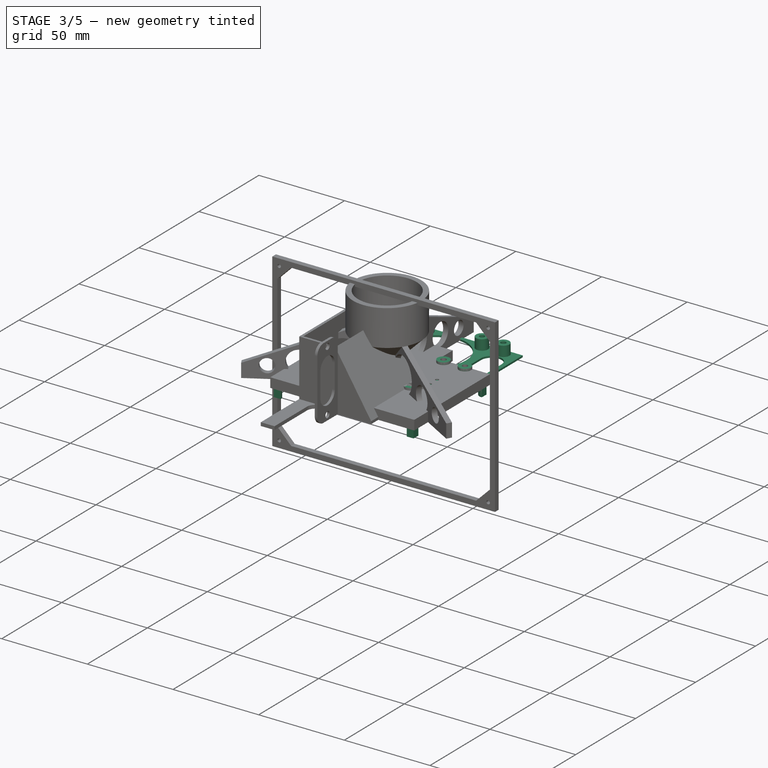
[diagram: stage 3 of 5 — iso view after this stage's code; geometry added in this stage tinted green]
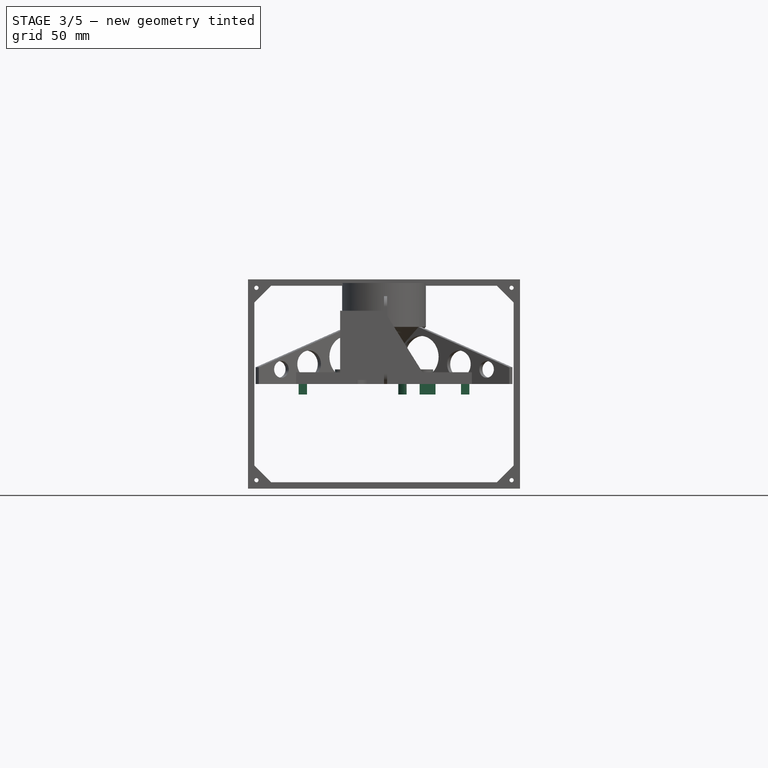
[diagram: stage 3 of 5 — front view after this stage's code; geometry added in this stage tinted green]
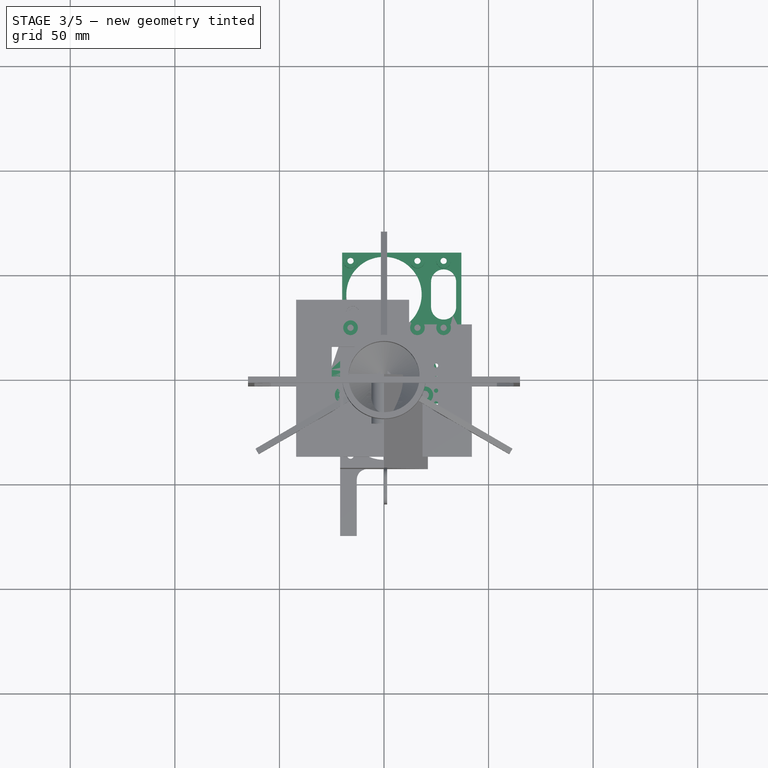
[diagram: stage 3 of 5 — top view after this stage's code; geometry added in this stage tinted green]
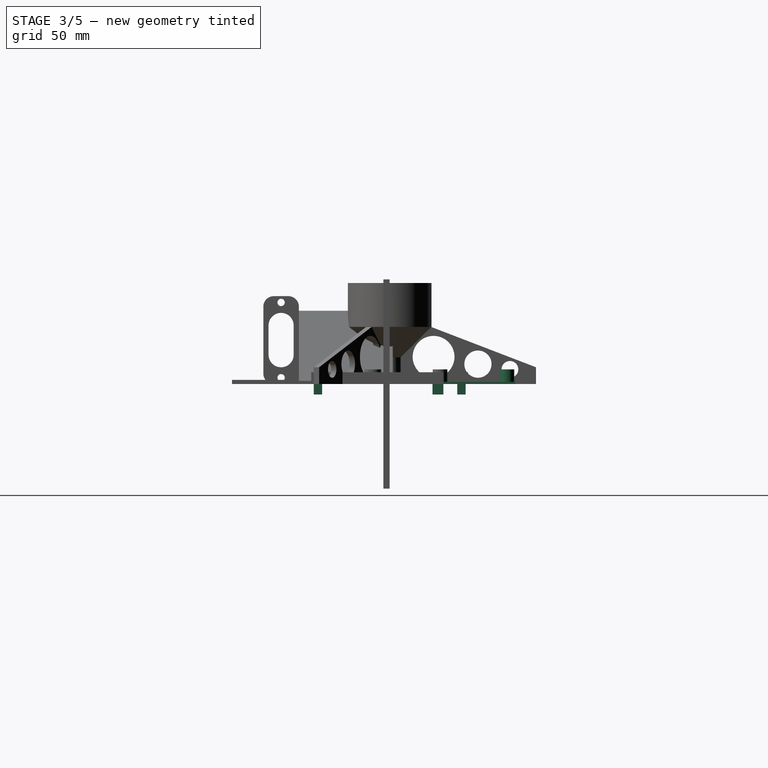
[diagram: stage 3 of 5 — right view after this stage's code; geometry added in this stage tinted green]
FEATURE [PartDesign::Body] Body008  label="Motor"
  AllowCompound = false
  Group = -> [Sketch023,Pad013,Sketch024,Pad014,Sketch025,Pad015,Sketch026,Pad016,Sketch027,Pad017,Sketch028,Pad018,Sketch029,Pad019,Sketch030,Pocket008,Sketch031,Pocket009]
  Origin = -> Origin008
  Tip = -> Pocket009
FEATURE [Sketcher::SketchObject] Sketch032
  ArcFitTolerance = 1e-06
  AttachmentSupport = -> [XY_Plane009]
  FullyConstrained = true
  MakeInternals = false
  MapMode = 5
  sketch-geometry (5):
    g0: LineSegment StartX=-2.3 StartY=1.92614 StartZ=0 EndX=-2.3 EndY=-1.92614 EndZ=0
    g1: LineSegment StartX=2.3 StartY=1.92614 StartZ=0 EndX=2.3 EndY=-1.92614 EndZ=0
    g2: ArcOfCircle CenterX=0 CenterY=0 CenterZ=0 NormalX=0 NormalY=0 NormalZ=1 AngleXU=0 Radius=3 StartAngle=0.697163 EndAngle=2.44443
    g3: ArcOfCircle CenterX=3e-16 CenterY=-5e-16 CenterZ=0 NormalX=0 NormalY=0 NormalZ=1 AngleXU=0 Radius=3 StartAngle=3.83876 EndAngle=5.58602
    g4: Circle CenterX=3e-16 CenterY=-5e-16 CenterZ=0 NormalX=0 NormalY=0 NormalZ=1 AngleXU=0 Radius=5.5
  constraints (14):
    c: Vertical(g0)
    c: Vertical(g1)
    c: Equal(g0,g1)
    c: Distance(g0,g1) = 4.6
    c: Symmetric(g0,g1,g-1)
    c: Coincident(g2,g-1)
    c: Coincident(g2,g0)
    c: Coincident(g2,g1)
    c: Coincident(g3,g0)
    c: Coincident(g3,g1)
    c: Equal(g3,g2)
    c: Radius(g2) = 3
    c: Diameter(g4) = 11
    c: Coincident(g4,g3)
FEATURE [PartDesign::Pad] Pad020
  Direction = (0,0,1)
  Length = 6
  Length2 = 10
  Profile = -> Sketch032
  ReferenceAxis = -> Sketch032 [N_Axis]
  Refine = true
  Suppressed = false
  Type = 0
FEATURE [Sketcher::SketchObject] Sketch033
  ArcFitTolerance = 1e-06
  AttachmentSupport = -> [Pad020]
  ExternalGeometry = -> [Pad020]
  FullyConstrained = true
  MakeInternals = false
  MapMode = 5
  Placement = pos=(0,0,6) rot=(0,0,1;0rad)
  sketch-geometry (1):
    g0: Circle CenterX=0 CenterY=0 CenterZ=0 NormalX=0 NormalY=0 NormalZ=1 AngleXU=0 Radius=5.5
  constraints (2):
    c: Coincident(g0,g-1)
    c: Equal(g0,g-3)
FEATURE [PartDesign::Pad] Pad021
  BaseFeature = -> Pad020
  Direction = (0,0,1)
  Length = 1
  Length2 = 10
  Profile = -> Sketch033
  ReferenceAxis = -> Sketch033 [N_Axis]
  Refine = true
  Suppressed = false
  Type = 0
FEATURE [Sketcher::SketchObject] Sketch034
  ArcFitTolerance = 1e-06
  AttachmentSupport = -> [Pad021]
  FullyConstrained = true
  MakeInternals = false
  MapMode = 5
  Placement = pos=(0,0,7) rot=(0,0,1;0rad)
  sketch-geometry (1):
    g0: Circle CenterX=0 CenterY=0 CenterZ=0 NormalX=0 NormalY=0 NormalZ=1 AngleXU=0 Radius=1.9
  constraints (2):
    c: Diameter(g0) = 3.8
    c: Coincident(g0,g-1)
FEATURE [PartDesign::Pocket] Pocket010
  BaseFeature = -> Pad021
  Direction = (0,0,-1)
  Length = 5
  Length2 = 5
  Profile = -> Sketch034
  ReferenceAxis = -> Sketch034 [N_Axis]
  Refine = true
  Suppressed = false
  Type = 0
FEATURE [Sketcher::SketchObject] Sketch035
  ArcFitTolerance = 1e-06
  AttachmentSupport = -> [Pocket010]
  ExternalGeometry = -> [Pocket010]
  FullyConstrained = true
  MakeInternals = false
  MapMode = 5
  Placement = pos=(0,0,7) rot=(0,0,1;0rad)
  sketch-geometry (15):
    g0: LineSegment StartX=-3.66998 StartY=-1.59099 StartZ=0 EndX=-3.66998 EndY=1.59099 EndZ=0
    g1: LineSegment StartX=-3.66998 StartY=1.59099 StartZ=0 EndX=-1.59099 EndY=1.59099 EndZ=0
    g2: LineSegment StartX=-1.59099 StartY=1.59099 StartZ=0 EndX=-1.59099 EndY=3.66998 EndZ=0
    g3: LineSegment StartX=-1.59099 StartY=3.66998 StartZ=0 EndX=1.59099 EndY=3.66998 EndZ=0
    g4: LineSegment StartX=1.59099 StartY=3.66998 StartZ=0 EndX=1.59099 EndY=1.59099 EndZ=0
    g5: LineSegment StartX=1.59099 StartY=1.59099 StartZ=0 EndX=3.66998 EndY=1.59099 EndZ=0
    g6: LineSegment StartX=3.66998 StartY=1.59099 StartZ=0 EndX=3.66998 EndY=-1.59099 EndZ=0
    g7: LineSegment StartX=3.66998 StartY=-1.59099 StartZ=0 EndX=1.59099 EndY=-1.59099 EndZ=0
    g8: LineSegment StartX=1.59099 StartY=-1.59099 StartZ=0 EndX=1.59099 EndY=-3.66998 EndZ=0
    g9: LineSegment StartX=1.59099 StartY=-3.66998 StartZ=0 EndX=-1.59099 EndY=-3.66998 EndZ=0
    g10: LineSegment StartX=-1.59099 StartY=-3.66998 StartZ=0 EndX=-1.59099 EndY=-1.59099 EndZ=0
    g11: LineSegment StartX=-1.59099 StartY=-1.59099 StartZ=0 EndX=-3.66998 EndY=-1.59099 EndZ=0
    g12: Circle [constr] CenterX=0 CenterY=0 CenterZ=0 NormalX=0 NormalY=0 NormalZ=1 AngleXU=0 Radius=4
    g13: Circle [constr] CenterX=0 CenterY=0 CenterZ=0 NormalX=0 NormalY=0 NormalZ=1 AngleXU=0 Radius=2.25
    g14: Circle CenterX=0 CenterY=0 CenterZ=0 NormalX=0 NormalY=0 NormalZ=1 AngleXU=0 Radius=5.5
  constraints (42):
    c: Coincident(g1,g0)
    c: Coincident(g2,g1)
    c: Vertical(g2)
    c: Coincident(g3,g2)
    c: Horizontal(g3)
    c: Coincident(g4,g3)
    c: Vertical(g4)
    c: Coincident(g5,g4)
    c: Horizontal(g5)
    c: Coincident(g6,g5)
    c: Vertical(g6)
    c: Coincident(g7,g6)
    c: Horizontal(g7)
    c: Coincident(g8,g7)
    c: Vertical(g8)
    c: Coincident(g9,g8)
    c: Horizontal(g9)
    c: Coincident(g10,g9)
    c: Vertical(g10)
    c: Coincident(g11,g10)
    c: Coincident(g11,g0)
    c: Horizontal(g11)
    c: Coincident(g12,g-1)
    c: Diameter(g12) = 8
    c: PointOnObject(g2,g12)
    c: PointOnObject(g0,g12)
    c: PointOnObject(g6,g12)
    c: PointOnObject(g8,g12)
    c: PointOnObject(g9,g12)
    c: Coincident(g13,g12)
    c: Diameter(g13) = 4.5
    c: PointOnObject(g1,g13)
    c: PointOnObject(g10,g13)
    c: PointOnObject(g7,g13)
    c: PointOnObject(g4,g13)
    c: Horizontal(g1)
    c: Vertical(g0)
    c: Equal(g0,g3)
    c: Equal(g3,g6)
    c: Equal(g6,g9)
    c: Coincident(g14,g12)
    c: Equal(g14,g-3)
FEATURE [Sketcher::SketchObject] Sketch036
  ArcFitTolerance = 1e-06
  AttachmentSupport = -> [XY_Plane010]
  FullyConstrained = true
  MakeInternals = false
  MapMode = 5
  sketch-geometry (7):
    g0: LineSegment StartX=4.11362 StartY=-2.375 StartZ=0 EndX=4.11362 EndY=2.375 EndZ=0
    g1: LineSegment StartX=4.11362 StartY=2.375 StartZ=0 EndX=0 EndY=4.75 EndZ=0
    g2: LineSegment StartX=0 StartY=4.75 StartZ=0 EndX=-4.11362 EndY=2.375 EndZ=0
    g3: LineSegment StartX=-4.11362 StartY=2.375 StartZ=0 EndX=-4.11362 EndY=-2.375 EndZ=0
    g4: LineSegment StartX=-4.11362 StartY=-2.375 StartZ=0 EndX=-9e-16 EndY=-4.75 EndZ=0
    g5: LineSegment StartX=-7e-16 StartY=-4.75 StartZ=0 EndX=4.11362 EndY=-2.375 EndZ=0
    g6: Circle [constr] CenterX=0 CenterY=0 CenterZ=0 NormalX=0 NormalY=0 NormalZ=1 AngleXU=0 Radius=4.75
  constraints (16):
    c: Coincident(g0,g1)
    c: Coincident(g1,g2)
    c: Coincident(g2,g3)
    c: Coincident(g3,g4)
    c: Coincident(g4,g5)
    c: Coincident(g5,g0)
    c: Equal(g0, g1-g5) x5
    c: PointOnObject(g0,g6)
    c: PointOnObject(g1,g6)
    c: PointOnObject(g2,g6)
    c: PointOnObject(g3,g6)
    c: PointOnObject(g4,g6)
    c: PointOnObject(g5,g6)
    c: Coincident(g6,g-1)
    c: PointOnObject(g1,g-2)
    c: Diameter(g6) = 9.5
FEATURE [PartDesign::Pad] Pad023
  Direction = (0,0,1)
  Length = 10
  Length2 = 10
  Profile = -> Sketch036
  ReferenceAxis = -> Sketch036 [N_Axis]
  Refine = true
  Suppressed = false
  Type = 0
FEATURE [Sketcher::SketchObject] Sketch037
  ArcFitTolerance = 1e-06
  AttachmentSupport = -> [Pad023]
  FullyConstrained = true
  MakeInternals = false
  MapMode = 5
  Placement = pos=(0,0,10) rot=(0,0,1;0rad)
  expr: Constraints[23] = <<PipeShaftMeasurements>>.Diameter + 2 mm
  sketch-geometry (14):
    g0: LineSegment StartX=-3.23187 StartY=-1.3435 StartZ=0 EndX=-3.23187 EndY=1.3435 EndZ=0
    g1: LineSegment StartX=-3.23187 StartY=1.3435 StartZ=0 EndX=-1.3435 EndY=1.3435 EndZ=0
    g2: LineSegment StartX=-1.3435 StartY=1.3435 StartZ=0 EndX=-1.3435 EndY=3.23187 EndZ=0
    g3: LineSegment StartX=-1.3435 StartY=3.23187 StartZ=0 EndX=1.3435 EndY=3.23187 EndZ=0
    g4: LineSegment StartX=1.3435 StartY=3.23187 StartZ=0 EndX=1.3435 EndY=1.3435 EndZ=0
    g5: LineSegment StartX=1.3435 StartY=1.3435 StartZ=0 EndX=3.23187 EndY=1.3435 EndZ=0
    g6: LineSegment StartX=3.23187 StartY=1.3435 StartZ=0 EndX=3.23187 EndY=-1.3435 EndZ=0
    g7: LineSegment StartX=3.23187 StartY=-1.3435 StartZ=0 EndX=1.3435 EndY=-1.3435 EndZ=0
    g8: LineSegment StartX=1.3435 StartY=-1.3435 StartZ=0 EndX=1.3435 EndY=-3.23187 EndZ=0
    g9: LineSegment StartX=1.3435 StartY=-3.23187 StartZ=0 EndX=-1.3435 EndY=-3.23187 EndZ=0
    g10: LineSegment StartX=-1.3435 StartY=-3.23187 StartZ=0 EndX=-1.3435 EndY=-1.3435 EndZ=0
    g11: LineSegment StartX=-1.3435 StartY=-1.3435 StartZ=0 EndX=-3.23187 EndY=-1.3435 EndZ=0
    g12: Circle [constr] CenterX=0 CenterY=0 CenterZ=0 NormalX=0 NormalY=0 NormalZ=1 AngleXU=0 Radius=3.5
    g13: Circle [constr] CenterX=0 CenterY=0 CenterZ=0 NormalX=0 NormalY=0 NormalZ=1 AngleXU=0 Radius=1.9
  constraints (40):
    c: Coincident(g1,g0)
    c: Coincident(g2,g1)
    c: Vertical(g2)
    c: Coincident(g3,g2)
    c: Horizontal(g3)
    c: Coincident(g4,g3)
    c: Vertical(g4)
    c: Coincident(g5,g4)
    c: Horizontal(g5)
    c: Coincident(g6,g5)
    c: Vertical(g6)
    c: Coincident(g7,g6)
    c: Horizontal(g7)
    c: Coincident(g8,g7)
    c: Vertical(g8)
    c: Coincident(g9,g8)
    c: Horizontal(g9)
    c: Coincident(g10,g9)
    c: Vertical(g10)
    c: Coincident(g11,g10)
    c: Coincident(g11,g0)
    c: Horizontal(g11)
    c: Coincident(g12,g-1)
    c: Diameter(g12) = 7
    c: PointOnObject(g2,g12)
    c: PointOnObject(g0,g12)
    c: PointOnObject(g6,g12)
    c: PointOnObject(g8,g12)
    c: PointOnObject(g9,g12)
    c: Coincident(g13,g12)
    c: Diameter(g13) = 3.8
    c: PointOnObject(g1,g13)
    c: PointOnObject(g10,g13)
    c: PointOnObject(g7,g13)
    c: PointOnObject(g4,g13)
    c: Horizontal(g1)
    c: Vertical(g0)
    c: Equal(g0,g3)
    c: Equal(g3,g6)
    c: Equal(g6,g9)
FEATURE [PartDesign::Pocket] Pocket011
  BaseFeature = -> Pad023
  Direction = (0,0,-1)
  Length = 10
  Length2 = 5
  Profile = -> Sketch037
  ReferenceAxis = -> Sketch037 [N_Axis]
  Refine = true
  Suppressed = false
  Type = 0
FEATURE [PartDesign::Body] Body010  label="MotorShaftClutch"
  AllowCompound = false
  Group = -> [Sketch036,Pad023,Sketch037,Pocket011,Sketch038,Pocket012]
  Origin = -> Origin010
  Tip = -> Pocket012
FEATURE [Sketcher::SketchObject] Sketch039
  ArcFitTolerance = 1e-06
  AttachmentSupport = -> [XY_Plane012]
  FullyConstrained = false
  MakeInternals = false
  MapMode = 5
  expr: Constraints[1] = <<PipeMeasurements>>.OuterDiameter + <<PipeSupportMeasurements>>.Thickness + 3 mm
  expr: Constraints[29] = <<PipeSupportMeasurements>>.PipesSpacing
  expr: Constraints[3] = <<PipeShaftMeasurements>>.Diameter / 2 + 0.4 mm
  expr: Constraints[43] = <<PipeSupportMeasurements>>.PipesSpacing
  sketch-geometry (58):
    g0: LineSegment [constr] StartX=-36.5 StartY=12.1 StartZ=0 EndX=-36.5 EndY=-12.1 EndZ=0
    g1: LineSegment [constr] StartX=-36.5 StartY=-12.1 StartZ=0 EndX=36.5 EndY=-12.1 EndZ=0
    g2: LineSegment [constr] StartX=36.5 StartY=-12.1 StartZ=0 EndX=36.5 EndY=12.1 EndZ=0
    g3: LineSegment [constr] StartX=36.5 StartY=12.1 StartZ=0 EndX=-36.5 EndY=12.1 EndZ=0
    g4: GeomPoint [constr] X=0 Y=0 Z=0
    g5: LineSegment StartX=-30.5 StartY=4.1 StartZ=0 EndX=-30.5 EndY=1.46969 EndZ=0
    g6: LineSegment StartX=-25.5 StartY=4.1 StartZ=0 EndX=-25.5 EndY=1.46969 EndZ=0
    g7: ArcOfCircle CenterX=-28 CenterY=0 CenterZ=0 NormalX=0 NormalY=0 NormalZ=1 AngleXU=0 Radius=2.9 StartAngle=2.61013 EndAngle=6.81464
    g8: LineSegment StartX=-2.5 StartY=12.1 StartZ=0 EndX=-2.5 EndY=1.46969 EndZ=0
    g9: LineSegment StartX=2.5 StartY=12.1 StartZ=0 EndX=2.5 EndY=1.46969 EndZ=0
    g10: ArcOfCircle CenterX=0 CenterY=0 CenterZ=0 NormalX=0 NormalY=0 NormalZ=1 AngleXU=0 Radius=2.9 StartAngle=2.61013 EndAngle=6.81464
    g11: LineSegment StartX=25.5 StartY=4.1 StartZ=0 EndX=25.5 EndY=1.46969 EndZ=0
    g12: LineSegment StartX=30.5 StartY=4.1 StartZ=0 EndX=30.5 EndY=1.46969 EndZ=0
    g13: ArcOfCircle CenterX=28 CenterY=0 CenterZ=0 NormalX=0 NormalY=0 NormalZ=1 AngleXU=0 Radius=2.9 StartAngle=2.61013 EndAngle=6.81464
    g14: LineSegment [constr] StartX=-36.5 StartY=4.1 StartZ=0 EndX=36.5 EndY=4.1 EndZ=0
    g15: LineSegment [constr] StartX=-36.5 StartY=-2.1 StartZ=0 EndX=36.5 EndY=-2.1 EndZ=0
    g16: LineSegment StartX=-36.5 StartY=-12.1 StartZ=0 EndX=36.5 EndY=-12.1 EndZ=0
    g17: LineSegment [constr] StartX=-19.5 StartY=-8 StartZ=0 EndX=19.5 EndY=-8 EndZ=0
    g18: Circle CenterX=19.5 CenterY=-8 CenterZ=0 NormalX=0 NormalY=0 NormalZ=1 AngleXU=0 Radius=2
    g19: Circle CenterX=-19.5 CenterY=-8 CenterZ=0 NormalX=0 NormalY=0 NormalZ=1 AngleXU=0 Radius=2
    g20: LineSegment StartX=-36.5 StartY=4.1 StartZ=0 EndX=-30.5 EndY=4.1 EndZ=0
    g21: LineSegment StartX=36.5 StartY=-12.1 StartZ=0 EndX=36.5 EndY=4.1 EndZ=0
    g22: LineSegment StartX=36.5 StartY=4.1 StartZ=0 EndX=30.5 EndY=4.1 EndZ=0
    g23: LineSegment StartX=-36.5 StartY=4.1 StartZ=0 EndX=-36.5 EndY=-12.1 EndZ=0
    g24: Circle CenterX=0 CenterY=40.1 CenterZ=0 NormalX=0 NormalY=0 NormalZ=1 AngleXU=0 Radius=18
    g25: LineSegment [constr] StartX=-20 StartY=20.1 StartZ=0 EndX=20 EndY=20.1 EndZ=0
    g26: LineSegment [constr] StartX=20 StartY=20.1 StartZ=0 EndX=20 EndY=60.1 EndZ=0
    g27: LineSegment StartX=20 StartY=60.1 StartZ=0 EndX=-20 EndY=60.1 EndZ=0
    g28: LineSegment StartX=-20 StartY=60.1 StartZ=0 EndX=-20 EndY=20.1 EndZ=0
    g29: GeomPoint [constr] X=0 Y=40.1 Z=0
    g30: LineSegment [constr] StartX=-16 StartY=56.1 StartZ=0 EndX=16 EndY=56.1 EndZ=0
    g31: LineSegment [constr] StartX=-16 StartY=24.1 StartZ=0 EndX=16 EndY=24.1 EndZ=0
    g32: Circle CenterX=-16 CenterY=56.1 CenterZ=0 NormalX=0 NormalY=0 NormalZ=1 AngleXU=0 Radius=1.5
    g33: Circle CenterX=16 CenterY=56.1 CenterZ=0 NormalX=0 NormalY=0 NormalZ=1 AngleXU=0 Radius=1.5
    g34: Circle CenterX=16 CenterY=24.1 CenterZ=0 NormalX=0 NormalY=0 NormalZ=1 AngleXU=0 Radius=1.5
    g35: Circle CenterX=-16 CenterY=24.1 CenterZ=0 NormalX=0 NormalY=0 NormalZ=1 AngleXU=0 Radius=1.5
    g36: LineSegment StartX=-25.5 StartY=4.1 StartZ=0 EndX=-20 EndY=20.1 EndZ=0
    g37: LineSegment StartX=25.5 StartY=4.1 StartZ=0 EndX=20 EndY=20.1 EndZ=0
    g38: ArcOfCircle CenterX=1e-16 CenterY=12.1 CenterZ=0 NormalX=0 NormalY=0 NormalZ=1 AngleXU=0 Radius=2.5 StartAngle=1e-16 EndAngle=3.14159
    g39: LineSegment StartX=20 StartY=20.1 StartZ=0 EndX=37 EndY=22.1 EndZ=0
    g40: LineSegment StartX=37 StartY=22.1 StartZ=0 EndX=37 EndY=60.1 EndZ=0
    g41: LineSegment StartX=37 StartY=60.1 StartZ=0 EndX=20 EndY=60.1 EndZ=0
    g42: LineSegment [constr] StartX=28.5 StartY=60.1 StartZ=0 EndX=28.5 EndY=21.1 EndZ=0
    g43: Circle CenterX=28.5 CenterY=56.1 CenterZ=0 NormalX=0 NormalY=0 NormalZ=1 AngleXU=0 Radius=1.5
    g44: Circle CenterX=28.5 CenterY=24.1 CenterZ=0 NormalX=0 NormalY=0 NormalZ=1 AngleXU=0 Radius=1.5
    g45: ArcOfCircle CenterX=28.5 CenterY=46.1 CenterZ=0 NormalX=0 NormalY=0 NormalZ=1 AngleXU=0 Radius=6 StartAngle=1.772e-13 EndAngle=3.14159
    g46: ArcOfCircle CenterX=28.5 CenterY=34.1 CenterZ=0 NormalX=0 NormalY=0 NormalZ=1 AngleXU=0 Radius=6 StartAngle=3.14159 EndAngle=6.28319
    g47: LineSegment StartX=34.5 StartY=46.1 StartZ=0 EndX=34.5 EndY=34.1 EndZ=0
    g48: LineSegment StartX=22.5 StartY=46.1 StartZ=0 EndX=22.5 EndY=34.1 EndZ=0
    g49: LineSegment [constr] StartX=0 StartY=40.1 StartZ=0 EndX=28.5 EndY=40.1 EndZ=0
    g50: ArcOfCircle CenterX=-11 CenterY=12.1 CenterZ=0 NormalX=0 NormalY=0 NormalZ=1 AngleXU=0 Radius=4.7 StartAngle=5.95209 EndAngle=9.09368
    g51: ArcOfCircle CenterX=-13.75 CenterY=4.1 CenterZ=0 NormalX=0 NormalY=0 NormalZ=1 AngleXU=0 Radius=4.7 StartAngle=2.8105 EndAngle=5.95209
    g52: LineSegment StartX=-6.55527 StartY=10.5721 StartZ=0 EndX=-9.30527 EndY=2.57213 EndZ=0
    g53: LineSegment StartX=-15.4447 StartY=13.6279 StartZ=0 EndX=-18.1947 EndY=5.62787 EndZ=0
    g54: ArcOfCircle CenterX=11 CenterY=12.1 CenterZ=0 NormalX=0 NormalY=0 NormalZ=1 AngleXU=0 Radius=4.7 StartAngle=0.331096 EndAngle=3.47269
    g55: ArcOfCircle CenterX=13.75 CenterY=4.1 CenterZ=0 NormalX=0 NormalY=0 NormalZ=1 AngleXU=0 Radius=4.7 StartAngle=3.47269 EndAngle=6.61428
    g56: LineSegment StartX=15.4447 StartY=13.6279 StartZ=0 EndX=18.1947 EndY=5.62787 EndZ=0
    g57: LineSegment StartX=6.55527 StartY=10.5721 StartZ=0 EndX=9.30527 EndY=2.57213 EndZ=0
  constraints (151):
    c: Horizontal(g3)
    c: DistanceY(g0,g0) = 24.2
    c: PointOnObject(g7,g-1)
    c: Radius(g7) = 2.9
    c: Vertical(g8)
    c: Vertical(g9)
    c: Horizontal(g8,g9)
    c: Coincident(g10,g8)
    c: Coincident(g10,g9)
    c: Radius(g10) = 2.9
    c: Distance(g8,g9) = 5
    c: PointOnObject(g13,g-1)
    c: Radius(g13) = 2.9
    c: PointOnObject(g14,g0)
    c: PointOnObject(g14,g2)
    c: Horizontal(g14)
    c: PointOnObject(g15,g0)
    c: PointOnObject(g15,g2)
    c: Horizontal(g15)
    c: Distance(g1,g15) = 10
    c: Coincident(g16,g0)
    c: Coincident(g16,g2)
    c: Horizontal(g16)
    c: Coincident(g1,g2)
    c: Coincident(g3,g0)
    c: Coincident(g0,g1)
    c: Vertical(g2)
    c: Coincident(g3,g2)
    c: Vertical(g12)
    c: DistanceX(g7,g10) = 28
    c: Symmetric(g0,g0,g-1)
    c: DistanceX(g0,g5) = 6
    c: Coincident(g7,g5)
    c: Vertical(g5)
    c: Coincident(g4,g10)
    c: Coincident(g4,g-1)
    c: Coincident(g7,g6)
    c: Horizontal(g5,g6)
    c: Vertical(g6)
    c: Horizontal(g6,g8)
    c: Coincident(g11,g13)
    c: Vertical(g11)
    c: Coincident(g13,g12)
    c: DistanceX(g4,g13) = 28
    c: Horizontal(g11,g12)
    c: Horizontal(g9,g11)
    c: Distance(g17) = 39
    c: Distance(g4,g17) = 8
    c: Symmetric(g17,g17,g-2)
    c: Diameter(g18) = 4
    c: Coincident(g18,g17)
    c: Coincident(g19,g17)
    c: Equal(g19,g18)
    c: Coincident(g20,g14)
    c: Coincident(g20,g5)
    c: Horizontal(g20)
    c: PointOnObject(g6,g14)
    c: PointOnObject(g11,g14)
    c: PointOnObject(g12,g14)
    c: Coincident(g21,g1)
    c: Coincident(g21,g14)
    c: Coincident(g22,g14)
    c: Coincident(g22,g12)
    c: Equal(g20,g22)
    c: DistanceY(g14,g2) = 8
    c: Coincident(g23,g14)
    c: Coincident(g23,g0)
    c: Diameter(g24) = 36
    c: PointOnObject(g24,g-2)
    c: Coincident(g25,g26)
    c: Coincident(g26,g27)
    c: Coincident(g27,g28)
    c: Coincident(g28,g25)
    c: Horizontal(g25)
    c: Horizontal(g27)
    c: Vertical(g26)
    c: Vertical(g28)
    c: Symmetric(g27,g25,g29)
    c: Distance(g26,g28) = 40
    c: Coincident(g29,g24)
    c: Equal(g25,g26)
    c: DistanceX(g30,g30) = 32
    c: Equal(g30,g31)
    c: Symmetric(g31,g30,g24)
    c: DistanceY(g31,g30) = 32
    c: Horizontal(g30)
    c: Diameter(g32) = 3
    c: Coincident(g32,g30)
    c: Coincident(g33,g30)
    c: Coincident(g34,g31)
    c: Coincident(g35,g31)
    c: Equal(g32,g35)
    c: Equal(g35,g34)
    c: Equal(g34,g33)
    c: Coincident(g36,g6)
    c: Coincident(g36,g25)
    c: Coincident(g37,g11)
    c: Coincident(g37,g25)
    c: PointOnObject(g9,g3)
    c: PointOnObject(g8,g3)
    c: PointOnObject(g38,g3)
    c: Coincident(g38,g8)
    c: Coincident(g38,g9)
    c: DistanceY(g2,g25) = 8
    c: Symmetric(g31,g31,g-2)
    c: Coincident(g39,g40)
    c: Coincident(g40,g41)
    c: Vertical(g40)
    c: Horizontal(g41)
    c: Coincident(g39,g25)
    c: DistanceX(g41,g41) = 17
    c: Coincident(g26,g41)
    c: DistanceY(g40,g40) = 38
    c: Symmetric(g41,g41,g42)
    c: Symmetric(g39,g39,g42)
    c: PointOnObject(g43,g42)
    c: PointOnObject(g44,g42)
    c: Equal(g33,g43)
    c: Equal(g34,g44)
    c: Tangent(g45,g47) = 1.5708
    c: Tangent(g45,g48) = -1.5708
    c: Tangent(g46,g47) = 1.5708
    c: Tangent(g46,g48) = -1.5708
    c: Equal(g45,g46)
    c: Vertical(g48)
    c: PointOnObject(g45,g42)
    c: DistanceY(g46,g45) = 12
    c: Horizontal(g49)
    c: Horizontal(g30,g43)
    c: Horizontal(g31,g44)
    c: Radius(g45) = 6
    c: DistanceY(g49,g45) = 6
    c: Tangent(g50,g52) = 1.5708
    c: Tangent(g50,g53) = -1.5708
    c: Tangent(g51,g52) = 1.5708
    c: Tangent(g51,g53) = -1.5708
    c: Equal(g50,g51)
    c: PointOnObject(g50,g3)
    c: PointOnObject(g51,g14)
    c: Tangent(g54,g56) = 1.5708
    c: Tangent(g54,g57) = -1.5708
    c: Tangent(g55,g56) = 1.5708
    c: Tangent(g55,g57) = -1.5708
    c: Equal(g54,g55)
    c: Distance(g51,g15) = 1.5
    c: Equal(g50,g54)
    c: Symmetric(g50,g54,g-2)
    c: Symmetric(g55,g51,g-2)
    c: Distance(g50,g-2) = 11
    c: Parallel(g56,g37)
    c: Coincident(g49,g24)
FEATURE [PartDesign::Pad] Pad022
  BaseFeature = -> Pocket010
  Direction = (0,0,1)
  Length = 8
  Length2 = 10
  Profile = -> Sketch035
  ReferenceAxis = -> Sketch035 [N_Axis]
  Refine = true
  Suppressed = false
  Type = 0
FEATURE [PartDesign::Body] Body009  label="MotorShaftAddapter"
  AllowCompound = false
  Group = -> [Sketch032,Pad020,Sketch033,Pad021,Sketch034,Pocket010,Sketch035,Pad022]
  Origin = -> Origin009
  Tip = -> Pad022
FEATURE [Sketcher::SketchObject] Sketch040
  ArcFitTolerance = 1e-06
  AttachmentSupport = -> [XY_Plane013]
  FullyConstrained = true
  MakeInternals = false
  MapMode = 5
  sketch-geometry (5):
    g0: LineSegment StartX=-2.3 StartY=1.92614 StartZ=0 EndX=-2.3 EndY=-1.92614 EndZ=0
    g1: LineSegment StartX=2.3 StartY=1.92614 StartZ=0 EndX=2.3 EndY=-1.92614 EndZ=0
    g2: ArcOfCircle CenterX=0 CenterY=0 CenterZ=0 NormalX=0 NormalY=0 NormalZ=1 AngleXU=0 Radius=3 StartAngle=0.697163 EndAngle=2.44443
    g3: ArcOfCircle CenterX=2.23e-13 CenterY=-2.113e-13 CenterZ=0 NormalX=0 NormalY=0 NormalZ=1 AngleXU=0 Radius=3 StartAngle=3.83876 EndAngle=5.58602
    g4: Circle CenterX=2.23e-13 CenterY=-2.113e-13 CenterZ=0 NormalX=0 NormalY=0 NormalZ=1 AngleXU=0 Radius=5.5
  constraints (14):
    c: Vertical(g0)
    c: Vertical(g1)
    c: Equal(g0,g1)
    c: Distance(g0,g1) = 4.6
    c: Symmetric(g0,g1,g-1)
    c: Coincident(g2,g-1)
    c: Coincident(g2,g0)
    c: Coincident(g2,g1)
    c: Coincident(g3,g0)
    c: Coincident(g3,g1)
    c: Equal(g3,g2)
    c: Radius(g2) = 3
    c: Diameter(g4) = 11
    c: Coincident(g4,g3)
FEATURE [PartDesign::Pad] Pad024
  Direction = (0,0,1)
  Length = 6
  Length2 = 10
  Profile = -> Sketch040
  ReferenceAxis = -> Sketch040 [N_Axis]
  Refine = true
  Suppressed = false
  Type = 0
FEATURE [Sketcher::SketchObject] Sketch041
  ArcFitTolerance = 1e-06
  AttachmentSupport = -> [Pad024]
  ExternalGeometry = -> [Pad024]
  FullyConstrained = true
  MakeInternals = false
  MapMode = 5
  Placement = pos=(0,0,6) rot=(0,0,1;0rad)
  sketch-geometry (2):
    g0: Circle CenterX=0 CenterY=0 CenterZ=0 NormalX=0 NormalY=0 NormalZ=1 AngleXU=0 Radius=5.5
    g1: Circle CenterX=0 CenterY=0 CenterZ=0 NormalX=0 NormalY=0 NormalZ=1 AngleXU=0 Radius=1.75
  constraints (4):
    c: Coincident(g0,g-1)
    c: Diameter(g1) = 3.5
    c: Coincident(g1,g0)
    c: Equal(g0,g-3)
FEATURE [PartDesign::Pad] Pad025
  BaseFeature = -> Pad024
  Direction = (0,0,1)
  Length = 1
  Length2 = 10
  Profile = -> Sketch041
  ReferenceAxis = -> Sketch041 [N_Axis]
  Refine = true
  Suppressed = false
  Type = 0
FEATURE [Sketcher::SketchObject] Sketch042
  ArcFitTolerance = 1e-06
  AttachmentSupport = -> [Pad025]
  ExternalGeometry = -> [Pad025]
  FullyConstrained = false
  MakeInternals = false
  MapMode = 5
  Placement = pos=(0,0,7) rot=(0,0,1;0rad)
  sketch-geometry (8):
    g0: Circle CenterX=-0.190422 CenterY=0 CenterZ=0 NormalX=0 NormalY=0 NormalZ=1 AngleXU=0 Radius=8.77772
    g1: LineSegment StartX=0 StartY=4.99637 StartZ=0 EndX=-4.4222 EndY=2.6631 EndZ=0
    g2: LineSegment StartX=-4.4222 StartY=2.6631 StartZ=0 EndX=-4.61262 EndY=-2.33328 EndZ=0
    g3: LineSegment StartX=-4.61262 StartY=-2.33328 StartZ=0 EndX=-0.380844 EndY=-4.99637 EndZ=0
    g4: LineSegment StartX=-0.380844 StartY=-4.99637 StartZ=0 EndX=4.04135 EndY=-2.6631 EndZ=0
    g5: LineSegment StartX=4.04135 StartY=-2.6631 StartZ=0 EndX=4.23177 EndY=2.33328 EndZ=0
    g6: LineSegment StartX=4.23177 StartY=2.33328 StartZ=0 EndX=0 EndY=4.99637 EndZ=0
    g7: Circle [constr] CenterX=-0.190422 CenterY=0 CenterZ=0 NormalX=0 NormalY=0 NormalZ=1 AngleXU=0 Radius=5
  constraints (15):
    c: PointOnObject(g0,g-1)
    c: Coincident(g1,g2)
    c: Coincident(g2,g3)
    c: Coincident(g3,g4)
    c: Coincident(g4,g5)
    c: Coincident(g5,g6)
    c: Coincident(g6,g1)
    c: Equal(g1, g2-g6) x5
    c: PointOnObject(g1,g7)
    c: PointOnObject(g2,g7)
    c: PointOnObject(g3,g7)
    c: PointOnObject(g4,g7)
    c: PointOnObject(g5,g7)
    c: PointOnObject(g6,g7)
    c: Radius(g7) = 5
FEATURE [PartDesign::Body] Body013  label="MotorShaftAddapterHexagon"
  AllowCompound = false
  Group = -> [Sketch040,Pad024,Sketch041,Pad025,Sketch042]
  Origin = -> Origin013
  Tip = -> Pad025
FEATURE [PartDesign::Pad] Pad026
  Direction = (0,0,1)
  Length = 1
  Length2 = 10
  Profile = -> Sketch039
  ReferenceAxis = -> Sketch039 [N_Axis]
  Refine = true
  Suppressed = false
  Type = 0
FEATURE [Sketcher::SketchObject] Sketch043
  ArcFitTolerance = 1e-06
  AttachmentSupport = -> [Pad026]
  FullyConstrained = true
  MakeInternals = false
  MapMode = 5
  Placement = pos=(0,0,1) rot=(0,0,1;0rad)
FEATURE [Sketcher::SketchObject] Sketch044
  ArcFitTolerance = 1e-06
  AttachmentSupport = -> [Pad026]
  ExternalGeometry = -> [Pad026]
  FullyConstrained = true
  MakeInternals = false
  MapMode = 5
  Placement = pos=(0,0,1) rot=(0,0,1;0rad)
  sketch-geometry (16):
    g0: Circle CenterX=-16 CenterY=56.1 CenterZ=0 NormalX=0 NormalY=0 NormalZ=1 AngleXU=0 Radius=3.5
    g1: Circle CenterX=-16 CenterY=56.1 CenterZ=0 NormalX=0 NormalY=0 NormalZ=1 AngleXU=0 Radius=1.5
    g2: Circle CenterX=16 CenterY=56.1 CenterZ=0 NormalX=0 NormalY=0 NormalZ=1 AngleXU=0 Radius=3.5
    g3: Circle CenterX=16 CenterY=56.1 CenterZ=0 NormalX=0 NormalY=0 NormalZ=1 AngleXU=0 Radius=1.5
    g4: Circle CenterX=28.5 CenterY=56.1 CenterZ=0 NormalX=0 NormalY=0 NormalZ=1 AngleXU=0 Radius=3.5
    g5: Circle CenterX=28.5 CenterY=56.1 CenterZ=0 NormalX=0 NormalY=0 NormalZ=1 AngleXU=0 Radius=1.5
    g6: Circle CenterX=-16 CenterY=24.1 CenterZ=0 NormalX=0 NormalY=0 NormalZ=1 AngleXU=0 Radius=3.5
    g7: Circle CenterX=-16 CenterY=24.1 CenterZ=0 NormalX=0 NormalY=0 NormalZ=1 AngleXU=0 Radius=1.5
    g8: Circle CenterX=16 CenterY=24.1 CenterZ=0 NormalX=0 NormalY=0 NormalZ=1 AngleXU=0 Radius=3.5
    g9: Circle CenterX=16 CenterY=24.1 CenterZ=0 NormalX=0 NormalY=0 NormalZ=1 AngleXU=0 Radius=1.5
    g10: Circle CenterX=28.5 CenterY=24.1 CenterZ=0 NormalX=0 NormalY=0 NormalZ=1 AngleXU=0 Radius=3.5
    g11: Circle CenterX=28.5 CenterY=24.1 CenterZ=0 NormalX=0 NormalY=0 NormalZ=1 AngleXU=0 Radius=1.5
    g12: Circle CenterX=-19.5 CenterY=-8 CenterZ=0 NormalX=0 NormalY=0 NormalZ=1 AngleXU=0 Radius=4
    g13: Circle CenterX=-19.5 CenterY=-8 CenterZ=0 NormalX=0 NormalY=0 NormalZ=1 AngleXU=0 Radius=2
    g14: Circle CenterX=19.5 CenterY=-8 CenterZ=0 NormalX=0 NormalY=0 NormalZ=1 AngleXU=0 Radius=4
    g15: Circle CenterX=19.5 CenterY=-8 CenterZ=0 NormalX=0 NormalY=0 NormalZ=1 AngleXU=0 Radius=2
  constraints (32):
    c: Coincident(g0,g-3)
    c: Coincident(g1,g0)
    c: Coincident(g2,g-4)
    c: Coincident(g3,g2)
    c: Coincident(g4,g-5)
    c: Coincident(g5,g4)
    c: Coincident(g6,g-8)
    c: Coincident(g7,g6)
    c: Coincident(g8,g-7)
    c: Coincident(g9,g8)
    c: Coincident(g10,g-6)
    c: Coincident(g11,g10)
    c: Coincident(g12,g-9)
    c: Coincident(g13,g12)
    c: Coincident(g14,g-10)
    c: Coincident(g15,g14)
    c: Equal(g-9,g13)
    c: Equal(g13,g15)
    c: Diameter(g12) = 8
    c: Equal(g12,g14)
    c: Diameter(g0) = 7
    c: Equal(g0,g2)
    c: Equal(g2,g4)
    c: Equal(g4,g10)
    c: Equal(g10,g8)
    c: Equal(g8,g6)
    c: Equal(g1,g-3)
    c: Equal(g1,g3)
    c: Equal(g3,g5)
    c: Equal(g5,g11)
    c: Equal(g11,g9)
    c: Equal(g9,g7)
FEATURE [PartDesign::Pad] Pad027
  BaseFeature = -> Pad026
  Direction = (0,0,1)
  Length = 6
  Length2 = 10
  Profile = -> Sketch044
  ReferenceAxis = -> Sketch044 [N_Axis]
  Refine = true
  Suppressed = false
  Type = 0
FEATURE [Sketcher::SketchObject] Sketch065
  ArcFitTolerance = 1e-06
  AttachmentSupport = -> [Pocket020]
  ExternalGeometry = -> [Pocket020]
  FullyConstrained = true
  MakeInternals = false
  MapMode = 5
  Placement = pos=(0,0,5) rot=(1,0,0;3.14159rad)
  sketch-geometry (10):
    g0: LineSegment StartX=-25 StartY=0 StartZ=0 EndX=-25 EndY=-15 EndZ=0
    g1: LineSegment StartX=-25 StartY=-15 StartZ=0 EndX=0 EndY=-15 EndZ=0
    g2: LineSegment StartX=0 StartY=-15 StartZ=0 EndX=0 EndY=0 EndZ=0
    g3: LineSegment StartX=0 StartY=0 StartZ=0 EndX=-25 EndY=0 EndZ=0
    g4: LineSegment StartX=-28.5 StartY=11 StartZ=0 EndX=-28.5 EndY=-21 EndZ=0
    g5: LineSegment StartX=-28.5 StartY=-21 StartZ=0 EndX=3.5 EndY=-21 EndZ=0
    g6: LineSegment StartX=3.5 StartY=-21 StartZ=0 EndX=3.5 EndY=11 EndZ=0
    g7: LineSegment StartX=3.5 StartY=11 StartZ=0 EndX=-28.5 EndY=11 EndZ=0
    g8: LineSegment [constr] StartX=-28.5 StartY=0 StartZ=0 EndX=-25 EndY=0 EndZ=0
    g9: LineSegment [constr] StartX=0 StartY=0 StartZ=0 EndX=3.5 EndY=0 EndZ=0
  constraints (26):
    c: Coincident(g0,g1)
    c: Coincident(g1,g2)
    c: Coincident(g2,g3)
    c: Coincident(g3,g0)
    c: Coincident(g0,g-3)
    c: Coincident(g1,g-4)
    c: Coincident(g4,g5)
    c: Coincident(g5,g6)
    c: Coincident(g6,g7)
    c: Coincident(g7,g4)
    c: Vertical(g4)
    c: Vertical(g6)
    c: Horizontal(g7)
    c: Equal(g5,g6)
    c: Coincident(g2,g-1)
    c: Coincident(g0,g-4)
    c: Horizontal(g5)
    c: DistanceX(g7,g7) = 32
    c: PointOnObject(g8,g4)
    c: Coincident(g8,g0)
    c: Horizontal(g8)
    c: Coincident(g9,g2)
    c: PointOnObject(g9,g6)
    c: Horizontal(g9)
    c: Equal(g9,g8)
    c: DistanceY(g5,g1) = 6
FEATURE [PartDesign::Pad] Pad040  label="DisplayHolderBase"
  BaseFeature = -> Pocket020
  Direction = (0,0,-1)
  Length = 3
  Length2 = 10
  Profile = -> Sketch065
  ReferenceAxis = -> Sketch065 [N_Axis]
  Refine = true
  Suppressed = false
  Type = 0
FEATURE [Sketcher::SketchObject] Sketch066
  ArcFitTolerance = 1e-06
  AttachmentSupport = -> [Pad040]
  ExternalGeometry = -> [Pad040]
  FullyConstrained = true
  MakeInternals = false
  MapMode = 5
  Placement = pos=(0,0,2) rot=(1,0,0;3.14159rad)
  sketch-geometry (13):
    g0: LineSegment StartX=-26.75 StartY=-15.5 StartZ=0 EndX=-26.75 EndY=5.5 EndZ=0
    g1: LineSegment StartX=1.75 StartY=-15.5 StartZ=0 EndX=1.75 EndY=5.5 EndZ=0
    g2: LineSegment [constr] StartX=-12.5 StartY=5.5 StartZ=0 EndX=-12.5 EndY=-15.5 EndZ=0
    g3: LineSegment StartX=-21.75 StartY=9 StartZ=0 EndX=-21.75 EndY=5.5 EndZ=0
    g4: LineSegment StartX=-3.25 StartY=5.5 StartZ=0 EndX=-3.25 EndY=9 EndZ=0
    g5: LineSegment StartX=-3.25 StartY=9 StartZ=0 EndX=-21.75 EndY=9 EndZ=0
    g6: LineSegment StartX=-21.75 StartY=-15.5 StartZ=0 EndX=-21.75 EndY=-19 EndZ=0
    g7: LineSegment StartX=-21.75 StartY=-19 StartZ=0 EndX=-3.25 EndY=-19 EndZ=0
    g8: LineSegment StartX=-3.25 StartY=-19 StartZ=0 EndX=-3.25 EndY=-15.5 EndZ=0
    g9: LineSegment StartX=-26.75 StartY=5.5 StartZ=0 EndX=-21.75 EndY=5.5 EndZ=0
    g10: LineSegment StartX=-3.25 StartY=5.5 StartZ=0 EndX=1.75 EndY=5.5 EndZ=0
    g11: LineSegment StartX=-26.75 StartY=-15.5 StartZ=0 EndX=-21.75 EndY=-15.5 EndZ=0
    g12: LineSegment StartX=-3.25 StartY=-15.5 StartZ=0 EndX=1.75 EndY=-15.5 EndZ=0
  constraints (36):
    c: DistanceX(g0,g1) = 28.5
    c: Vertical(g0)
    c: Symmetric(g0,g1,g2)
    c: Symmetric(g0,g1,g2)
    c: Symmetric(g-3,g-3,g2)
    c: DistanceY(g1,g1) = 21
    c: DistanceY(g0,g-3) = 0.5
    c: Coincident(g4,g5)
    c: Coincident(g5,g3)
    c: Vertical(g3)
    c: Vertical(g4)
    c: Horizontal(g5)
    c: Coincident(g6,g7)
    c: Coincident(g7,g8)
    c: Vertical(g6)
    c: Vertical(g8)
    c: Horizontal(g7)
    c: Coincident(g9,g0)
    c: Coincident(g9,g3)
    c: Horizontal(g9)
    c: Coincident(g10,g4)
    c: Coincident(g10,g1)
    c: Horizontal(g10)
    c: Coincident(g11,g0)
    c: Coincident(g11,g6)
    c: Horizontal(g11)
    c: Coincident(g12,g8)
    c: Coincident(g12,g1)
    c: Horizontal(g12)
    c: DistanceY(g-5,g6) = 2
    c: DistanceY(g3,g-4) = 2
    c: Symmetric(g3,g4,g2)
    c: Distance(g9,g9) = 5
    c: Vertical(g6,g3)
    c: Vertical(g8,g4)
    c: Equal(g6,g8)
FEATURE [PartDesign::Pocket] Pocket021  label="DisplayPlasticBitHousing"
  BaseFeature = -> Pad040
  Direction = (0,0,1)
  Length = 2
  Length2 = 5
  Profile = -> Sketch066
  ReferenceAxis = -> Sketch066 [N_Axis]
  Refine = true
  Suppressed = false
  Type = 0
FEATURE [Sketcher::SketchObject] Sketch067
  ArcFitTolerance = 1e-06
  AttachmentSupport = -> [Pocket021]
  ExternalGeometry = -> [Pocket021]
  FullyConstrained = true
  MakeInternals = false
  MapMode = 5
  Placement = pos=(0,0,2) rot=(1,0,0;3.14159rad)
  sketch-geometry (8):
    g0: LineSegment StartX=-28.5 StartY=11 StartZ=0 EndX=-28.5 EndY=9.2 EndZ=0
    g1: LineSegment StartX=-28.5 StartY=9.2 StartZ=0 EndX=3.5 EndY=9.2 EndZ=0
    g2: LineSegment StartX=3.5 StartY=9.2 StartZ=0 EndX=3.5 EndY=11 EndZ=0
    g3: LineSegment StartX=3.5 StartY=11 StartZ=0 EndX=-28.5 EndY=11 EndZ=0
    g4: LineSegment StartX=-28.5 StartY=-21 StartZ=0 EndX=3.5 EndY=-21 EndZ=0
    g5: LineSegment StartX=3.5 StartY=-21 StartZ=0 EndX=3.5 EndY=-19.2 EndZ=0
    g6: LineSegment StartX=3.5 StartY=-19.2 StartZ=0 EndX=-28.5 EndY=-19.2 EndZ=0
    g7: LineSegment StartX=-28.5 StartY=-19.2 StartZ=0 EndX=-28.5 EndY=-21 EndZ=0
  constraints (21):
    c: Coincident(g0,g1)
    c: Coincident(g1,g2)
    c: Coincident(g2,g3)
    c: Coincident(g3,g0)
    c: Vertical(g0)
    c: Vertical(g2)
    c: Horizontal(g1)
    c: Horizontal(g3)
    c: Coincident(g0,g-3)
    c: Coincident(g4,g5)
    c: Coincident(g5,g6)
    c: Coincident(g6,g7)
    c: Coincident(g7,g4)
    c: Horizontal(g6)
    c: Vertical(g5)
    c: Vertical(g7)
    c: Coincident(g4,g-4)
    c: Coincident(g4,g-4)
    c: Vertical(g1,g-3)
    c: DistanceY(g2,g2) = 1.8
    c: Equal(g0,g7)
FEATURE [PartDesign::Pad] Pad041  label="DisplayHoldingBorders"
  BaseFeature = -> Pocket021
  Direction = (0,0,-1)
  Length = 2
  Length2 = 10
  Profile = -> Sketch067
  ReferenceAxis = -> Sketch067 [N_Axis]
  Refine = true
  Suppressed = false
  Type = 0
FEATURE [Sketcher::SketchObject] Sketch069
  ArcFitTolerance = 1e-06
  AttachmentSupport = -> [Pad041]
  ExternalGeometry = -> [Pad041]
  FullyConstrained = true
  MakeInternals = false
  MapMode = 5
  Placement = pos=(0,0,0) rot=(1,0,0;3.14159rad)
  sketch-geometry (4):
    g0: LineSegment StartX=17.02 StartY=-24.5 StartZ=0 EndX=17.02 EndY=-25.7 EndZ=0
    g1: LineSegment StartX=17.02 StartY=-25.7 StartZ=0 EndX=24.62 EndY=-25.7 EndZ=0
    g2: LineSegment StartX=24.62 StartY=-25.7 StartZ=0 EndX=24.62 EndY=-24.5 EndZ=0
    g3: LineSegment StartX=24.62 StartY=-24.5 StartZ=0 EndX=17.02 EndY=-24.5 EndZ=0
  constraints (12):
    c: Coincident(g0,g1)
    c: Coincident(g1,g2)
    c: Coincident(g2,g3)
    c: Coincident(g3,g0)
    c: Vertical(g0)
    c: Vertical(g2)
    c: Horizontal(g1)
    c: Horizontal(g3)
    c: PointOnObject(g0,g-3)
    c: PointOnObject(g1,g-4)
    c: DistanceX(g3,g3) = 7.6
    c: DistanceX(g-4,g0) = 5.02
FEATURE [PartDesign::Pad] Pad042
  BaseFeature = -> Pad041
  Direction = (0,0,-1)
  Length = 5
  Length2 = 10
  Profile = -> Sketch069
  ReferenceAxis = -> Sketch069 [N_Axis]
  Refine = true
  Suppressed = false
  Type = 0
FEATURE [Sketcher::SketchObject] Sketch070
  ArcFitTolerance = 1e-06
  AttachmentSupport = -> [Pad042]
  FullyConstrained = false
  MakeInternals = false
  MapMode = 5
  Placement = pos=(0,0,5) rot=(1,0,0;3.14159rad)
  sketch-geometry (4):
    g0: Circle CenterX=24.893 CenterY=0 CenterZ=0 NormalX=0 NormalY=0 NormalZ=1 AngleXU=0 Radius=1
    g1: Circle CenterX=24.893 CenterY=-6 CenterZ=0 NormalX=0 NormalY=0 NormalZ=1 AngleXU=0 Radius=1
    g2: Circle CenterX=24.893 CenterY=6 CenterZ=0 NormalX=0 NormalY=0 NormalZ=1 AngleXU=0 Radius=1
    g3: Circle CenterX=24.893 CenterY=12 CenterZ=0 NormalX=0 NormalY=0 NormalZ=1 AngleXU=0 Radius=1
  constraints (11):
    c: PointOnObject(g0,g-1)
    c: Diameter(g0) = 2
    c: Equal(g0,g2)
    c: Equal(g2,g1)
    c: Vertical(g1,g0)
    c: Vertical(g0,g2)
    c: DistanceY(g0,g2) = 6
    c: DistanceY(g1,g0) = 6
    c: DistanceY(g2,g3) = 6
    c: Vertical(g2,g3)
    c: Equal(g2,g3)
FEATURE [PartDesign::Pocket] Pocket022
  BaseFeature = -> Pad042
  Direction = (0,0,1)
  Length = 5
  Length2 = 5
  Profile = -> Sketch070
  ReferenceAxis = -> Sketch070 [N_Axis]
  Refine = true
  Suppressed = false
  Type = 1
FEATURE [Sketcher::SketchObject] Sketch071
  ArcFitTolerance = 1e-06
  AttachmentSupport = -> [Pocket022]
  ExternalGeometry = -> [Pocket022]
  FullyConstrained = true
  MakeInternals = false
  MapMode = 5
  Placement = pos=(0,0,5) rot=(1,0,0;3.14159rad)
  sketch-geometry (15):
    g0: ArcOfCircle CenterX=10.8 CenterY=-36.3 CenterZ=0 NormalX=0 NormalY=0 NormalZ=1 AngleXU=0 Radius=4 StartAngle=1.5708 EndAngle=3.14159
    g1: ArcOfCircle CenterX=40.8 CenterY=-24.5 CenterZ=0 NormalX=0 NormalY=0 NormalZ=1 AngleXU=0 Radius=4 StartAngle=1.5708 EndAngle=3.14159
    g2: ArcOfCircle CenterX=40.8 CenterY=36.3 CenterZ=0 NormalX=0 NormalY=0 NormalZ=1 AngleXU=0 Radius=4 StartAngle=3.14159 EndAngle=4.71239
    g3: ArcOfCircle CenterX=-40.8 CenterY=36.3 CenterZ=0 NormalX=0 NormalY=0 NormalZ=1 AngleXU=0 Radius=4 StartAngle=4.71239 EndAngle=6.28319
    g4: ArcOfCircle CenterX=-40.8 CenterY=-36.3 CenterZ=0 NormalX=0 NormalY=0 NormalZ=1 AngleXU=0 Radius=4 StartAngle=0 EndAngle=1.5708
    g5: LineSegment StartX=-40.8 StartY=32.3 StartZ=0 EndX=-40.8 EndY=36.3 EndZ=0
    g6: LineSegment StartX=-40.8 StartY=36.3 StartZ=0 EndX=-36.8 EndY=36.3 EndZ=0
    g7: LineSegment StartX=36.8 StartY=36.3 StartZ=0 EndX=40.8 EndY=36.3 EndZ=0
    g8: LineSegment StartX=40.8 StartY=36.3 StartZ=0 EndX=40.8 EndY=32.3 EndZ=0
    g9: LineSegment StartX=40.8 StartY=-20.5 StartZ=0 EndX=40.8 EndY=-24.5 EndZ=0
    g10: LineSegment StartX=40.8 StartY=-24.5 StartZ=0 EndX=36.8 EndY=-24.5 EndZ=0
    g11: LineSegment StartX=10.8 StartY=-36.3 StartZ=0 EndX=10.8 EndY=-32.3 EndZ=0
    g12: LineSegment StartX=6.8 StartY=-36.3 StartZ=0 EndX=10.8 EndY=-36.3 EndZ=0
    g13: LineSegment StartX=-40.8 StartY=-32.3 StartZ=0 EndX=-40.8 EndY=-36.3 EndZ=0
    g14: LineSegment StartX=-36.8 StartY=-36.3 StartZ=0 EndX=-40.8 EndY=-36.3 EndZ=0
  constraints (40):
    c: Coincident(g0,g-4)
    c: PointOnObject(g0,g-4)
    c: Coincident(g1,g-5)
    c: PointOnObject(g1,g-5)
    c: Coincident(g2,g-5)
    c: PointOnObject(g2,g-5)
    c: Coincident(g3,g-3)
    c: PointOnObject(g3,g-3)
    c: Coincident(g4,g-3)
    c: PointOnObject(g4,g-3)
    c: Coincident(g5,g3)
    c: Coincident(g5,g3)
    c: Coincident(g6,g3)
    c: Coincident(g6,g3)
    c: Horizontal(g6)
    c: Coincident(g7,g2)
    c: Coincident(g7,g2)
    c: Horizontal(g7)
    c: Coincident(g8,g2)
    c: Coincident(g8,g2)
    c: Coincident(g9,g1)
    c: Coincident(g9,g1)
    c: Coincident(g10,g1)
    c: Coincident(g10,g1)
    c: Horizontal(g10)
    c: Coincident(g11,g0)
    c: Coincident(g11,g0)
    c: Coincident(g12,g0)
    c: Coincident(g12,g0)
    c: Horizontal(g12)
    c: Coincident(g13,g4)
    c: Coincident(g13,g4)
    c: Coincident(g14,g4)
    c: Coincident(g14,g4)
    c: Horizontal(g14)
    c: Radius(g3) = 4
    c: Equal(g3,g2)
    c: Equal(g2,g1)
    c: Equal(g1,g0)
    c: Equal(g0,g4)
FEATURE [PartDesign::Pad] Pad043
  BaseFeature = -> Pocket022
  Direction = (0,0,-1)
  Length = 10
  Length2 = 10
  Profile = -> Sketch071
  ReferenceAxis = -> Sketch071 [N_Axis]
  Refine = true
  Suppressed = false
  Type = 0
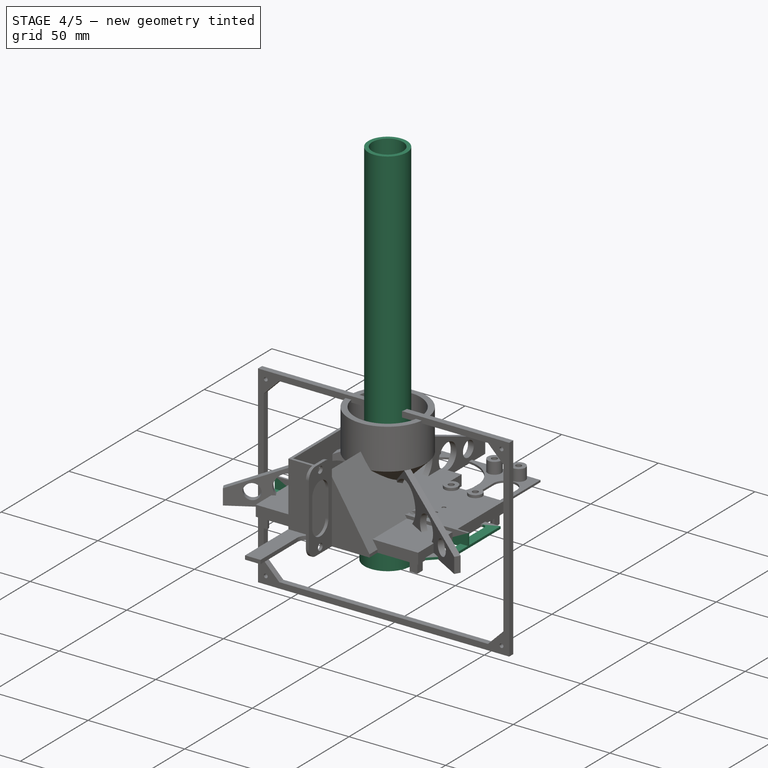
[diagram: stage 4 of 5 — iso view after this stage's code; geometry added in this stage tinted green]
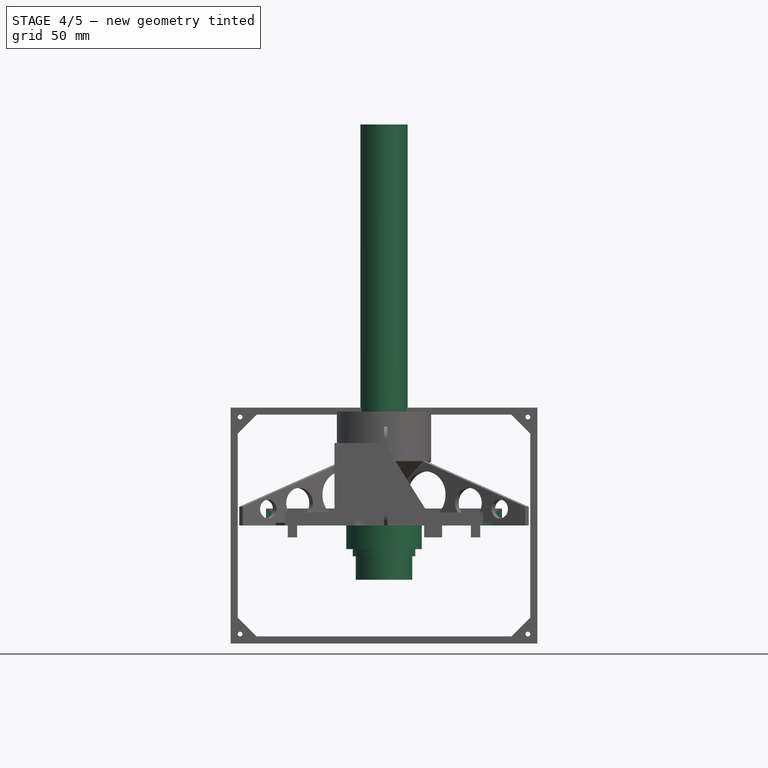
[diagram: stage 4 of 5 — front view after this stage's code; geometry added in this stage tinted green]
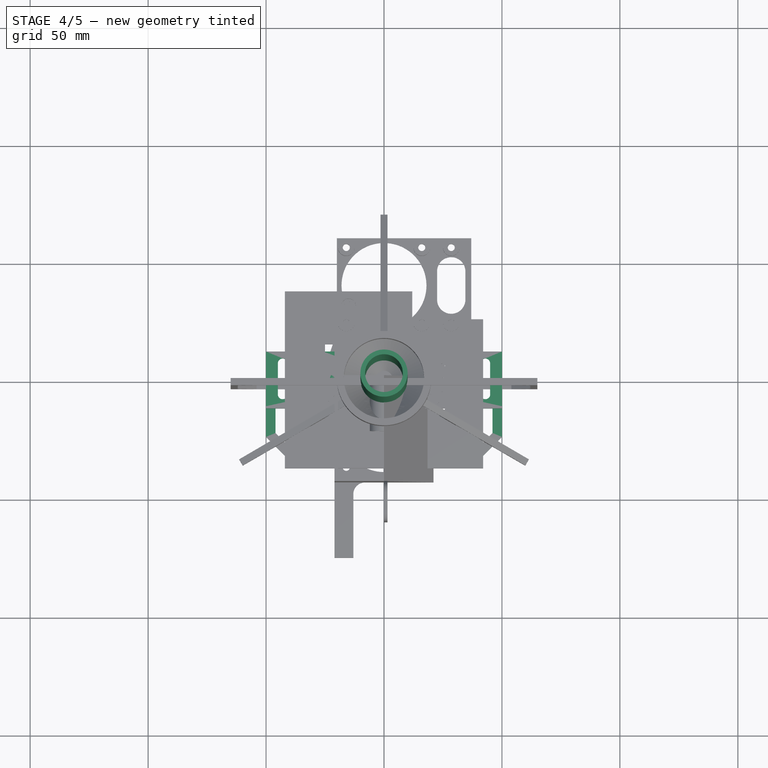
[diagram: stage 4 of 5 — top view after this stage's code; geometry added in this stage tinted green]
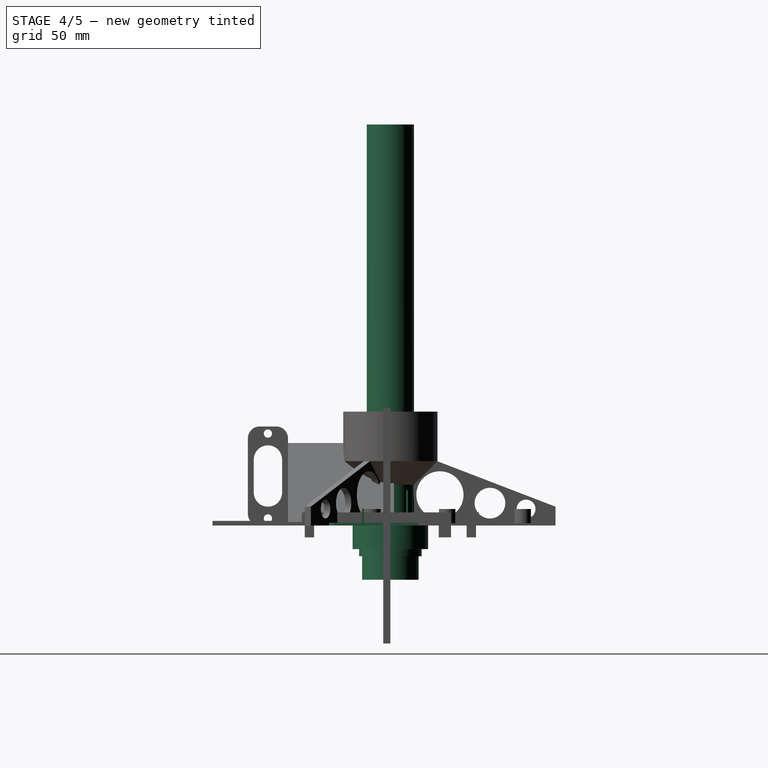
[diagram: stage 4 of 5 — right view after this stage's code; geometry added in this stage tinted green]
FEATURE [Sketcher::SketchObject] Sketch015
  ArcFitTolerance = 1e-06
  AttachmentSupport = -> [XY_Plane003]
  FullyConstrained = true
  MakeInternals = false
  MapMode = 5
  sketch-geometry (5):
    g0: LineSegment StartX=-7.5 StartY=-7.5 StartZ=0 EndX=7.5 EndY=-7.5 EndZ=0
    g1: LineSegment StartX=7.5 StartY=-7.5 StartZ=0 EndX=7.5 EndY=7.5 EndZ=0
    g2: LineSegment StartX=7.5 StartY=7.5 StartZ=0 EndX=-7.5 EndY=7.5 EndZ=0
    g3: LineSegment StartX=-7.5 StartY=7.5 StartZ=0 EndX=-7.5 EndY=-7.5 EndZ=0
    g4: GeomPoint [constr] X=0 Y=0 Z=0
  constraints (12):
    c: Coincident(g0,g1)
    c: Coincident(g1,g2)
    c: Coincident(g2,g3)
    c: Coincident(g3,g0)
    c: Horizontal(g0)
    c: Horizontal(g2)
    c: Vertical(g1)
    c: Vertical(g3)
    c: Symmetric(g2,g0,g4)
    c: Distance(g1,g3) = 15
    c: Coincident(g4,g-1)
    c: Equal(g3,g0)
FEATURE [PartDesign::Pad] Pad006
  Direction = (0,0,1)
  Length = 15
  Length2 = 10
  Profile = -> Sketch015
  ReferenceAxis = -> Sketch015 [N_Axis]
  Refine = true
  Suppressed = false
  Type = 0
FEATURE [PartDesign::Body] Body003  label="WaterTightTest"
  AllowCompound = false
  Group = -> [Sketch015,Pad006,Sketch016,Pocket007]
  Origin = -> Origin003
  Tip = -> Pocket007
FEATURE [Sketcher::SketchObject] Sketch017
  ArcFitTolerance = 1e-06
  AttachmentSupport = -> [XY_Plane004]
  FullyConstrained = true
  MakeInternals = false
  MapMode = 5
  expr: Constraints[0] = <<PipeMeasurements>>.OuterDiameter
  expr: Constraints[25] = <<PipeShaftMeasurements>>.Diameter + 0.6 mm
  sketch-geometry (18):
    g0: Circle CenterX=0 CenterY=0 CenterZ=0 NormalX=0 NormalY=0 NormalZ=1 AngleXU=0 Radius=10
    g1: LineSegment [constr] StartX=1.1598 StartY=-2.8 StartZ=0 EndX=2.8 EndY=-1.1598 EndZ=0
    g2: LineSegment StartX=2.8 StartY=-1.1598 StartZ=0 EndX=2.8 EndY=1.1598 EndZ=0
    g3: LineSegment [constr] StartX=2.8 StartY=1.1598 StartZ=0 EndX=1.1598 EndY=2.8 EndZ=0
    g4: LineSegment StartX=1.1598 StartY=2.8 StartZ=0 EndX=-1.1598 EndY=2.8 EndZ=0
    g5: LineSegment [constr] StartX=-1.1598 StartY=2.8 StartZ=0 EndX=-2.8 EndY=1.1598 EndZ=0
    g6: LineSegment StartX=-2.8 StartY=1.1598 StartZ=0 EndX=-2.8 EndY=-1.1598 EndZ=0
    g7: LineSegment [constr] StartX=-2.8 StartY=-1.1598 StartZ=0 EndX=-1.1598 EndY=-2.8 EndZ=0
    g8: LineSegment StartX=-1.1598 StartY=-2.8 StartZ=0 EndX=1.1598 EndY=-2.8 EndZ=0
    g9: Circle [constr] CenterX=0 CenterY=0 CenterZ=0 NormalX=0 NormalY=0 NormalZ=1 AngleXU=0 Radius=3.0307
    g10: LineSegment StartX=-2.8 StartY=1.1598 StartZ=0 EndX=-1.1598 EndY=1.1598 EndZ=0
    g11: LineSegment StartX=-1.1598 StartY=1.1598 StartZ=0 EndX=-1.1598 EndY=2.8 EndZ=0
    g12: LineSegment StartX=-2.8 StartY=-1.1598 StartZ=0 EndX=-1.1598 EndY=-1.1598 EndZ=0
    g13: LineSegment StartX=-1.1598 StartY=-1.1598 StartZ=0 EndX=-1.1598 EndY=-2.8 EndZ=0
    g14: LineSegment StartX=1.1598 StartY=2.8 StartZ=0 EndX=1.1598 EndY=1.1598 EndZ=0
    g15: LineSegment StartX=1.1598 StartY=1.1598 StartZ=0 EndX=2.8 EndY=1.1598 EndZ=0
    g16: LineSegment StartX=1.1598 StartY=-2.8 StartZ=0 EndX=1.1598 EndY=-1.1598 EndZ=0
    g17: LineSegment StartX=1.1598 StartY=-1.1598 StartZ=0 EndX=2.8 EndY=-1.1598 EndZ=0
  constraints (42):
    c: Diameter(g0) = 20
    c: Coincident(g1,g2)
    c: Coincident(g2,g3)
    c: Coincident(g3,g4)
    c: Coincident(g4,g5)
    c: Coincident(g5,g6)
    c: Coincident(g6,g7)
    c: Coincident(g7,g8)
    c: Coincident(g8,g1)
    c: Equal(g1, g2-g8) x7
    c: PointOnObject(g1,g9)
    c: PointOnObject(g2,g9)
    c: PointOnObject(g3,g9)
    c: PointOnObject(g4,g9)
    c: PointOnObject(g5,g9)
    c: PointOnObject(g6,g9)
    c: PointOnObject(g7,g9)
    c: PointOnObject(g8,g9)
    c: Coincident(g9,g0)
    c: DistanceY(g1,g3) = 5.6
    c: Horizontal(g4)
    c: Coincident(g0,g-1)
    c: Coincident(g10,g5)
    c: Horizontal(g10)
    c: Coincident(g11,g10)
    c: Coincident(g11,g4)
    c: Vertical(g11)
    c: Coincident(g12,g6)
    c: Horizontal(g12)
    c: Coincident(g13,g7)
    c: Vertical(g13)
    c: Coincident(g14,g3)
    c: Vertical(g14)
    c: Coincident(g15,g2)
    c: Horizontal(g15)
    c: Coincident(g16,g1)
    c: Vertical(g16)
    c: Coincident(g17,g16)
    c: Coincident(g17,g1)
    c: Horizontal(g17)
    c: Coincident(g13,g12)
    c: Coincident(g14,g15)
FEATURE [PartDesign::Pad] Pad007
  Direction = (0,0,1)
  Length = 1
  Length2 = 10
  Profile = -> Sketch017
  ReferenceAxis = -> Sketch017 [N_Axis]
  Refine = true
  Suppressed = false
  Type = 0
FEATURE [Sketcher::SketchObject] Sketch018
  ArcFitTolerance = 1e-06
  AttachmentSupport = -> [Pad007]
  ExternalGeometry = -> [Pad007]
  FullyConstrained = true
  MakeInternals = false
  MapMode = 5
  Placement = pos=(0,0,1) rot=(0,0,1;0rad)
  sketch-geometry (13):
    g0: LineSegment StartX=-2.8 StartY=-1.1598 StartZ=0 EndX=-2.8 EndY=1.1598 EndZ=0
    g1: LineSegment StartX=-2.8 StartY=1.1598 StartZ=0 EndX=-1.1598 EndY=1.1598 EndZ=0
    g2: LineSegment StartX=-1.1598 StartY=1.1598 StartZ=0 EndX=-1.1598 EndY=2.8 EndZ=0
    g3: LineSegment StartX=-1.1598 StartY=2.8 StartZ=0 EndX=1.1598 EndY=2.8 EndZ=0
    g4: LineSegment StartX=1.1598 StartY=2.8 StartZ=0 EndX=1.1598 EndY=1.1598 EndZ=0
    g5: LineSegment StartX=1.1598 StartY=1.1598 StartZ=0 EndX=2.8 EndY=1.1598 EndZ=0
    g6: LineSegment StartX=2.8 StartY=1.1598 StartZ=0 EndX=2.8 EndY=-1.1598 EndZ=0
    g7: LineSegment StartX=2.8 StartY=-1.1598 StartZ=0 EndX=1.1598 EndY=-1.1598 EndZ=0
    g8: LineSegment StartX=1.1598 StartY=-1.1598 StartZ=0 EndX=1.1598 EndY=-2.8 EndZ=0
    g9: LineSegment StartX=1.1598 StartY=-2.8 StartZ=0 EndX=-1.1598 EndY=-2.8 EndZ=0
    g10: LineSegment StartX=-1.1598 StartY=-2.8 StartZ=0 EndX=-1.1598 EndY=-1.1598 EndZ=0
    g11: LineSegment StartX=-1.1598 StartY=-1.1598 StartZ=0 EndX=-2.8 EndY=-1.1598 EndZ=0
    g12: Circle CenterX=0 CenterY=0 CenterZ=0 NormalX=0 NormalY=0 NormalZ=1 AngleXU=0 Radius=8
  constraints (35):
    c: Coincident(g0,g-3)
    c: Coincident(g0,g-4)
    c: Coincident(g1,g0)
    c: Coincident(g1,g-4)
    c: Coincident(g2,g1)
    c: Vertical(g2)
    c: Coincident(g3,g2)
    c: Horizontal(g3)
    c: Coincident(g4,g3)
    c: Vertical(g4)
    c: Equal(g2,g1)
    c: Equal(g2,g4)
    c: Coincident(g5,g4)
    c: Horizontal(g5)
    c: Coincident(g6,g5)
    c: Vertical(g6)
    c: Coincident(g7,g6)
    c: Horizontal(g7)
    c: Coincident(g8,g7)
    c: Vertical(g8)
    c: Coincident(g9,g8)
    c: Horizontal(g9)
    c: Coincident(g10,g9)
    c: Vertical(g10)
    c: Coincident(g11,g10)
    c: Coincident(g11,g0)
    c: Horizontal(g11)
    c: Equal(g1,g11)
    c: Equal(g11,g10)
    c: Equal(g10,g8)
    c: Equal(g7,g8)
    c: Equal(g0,g9)
    c: Equal(g7,g5)
    c: Diameter(g12) = 16
    c: Coincident(g12,g-1)
FEATURE [PartDesign::Pad] Pad008
  BaseFeature = -> Pad007
  Direction = (0,0,1)
  Length = 5
  Length2 = 10
  Profile = -> Sketch018
  ReferenceAxis = -> Sketch018 [N_Axis]
  Refine = true
  Suppressed = false
  Type = 0
FEATURE [PartDesign::Body] Body004  label="PipePlug"
  AllowCompound = false
  Group = -> [Sketch017,Pad007,Sketch018,Pad008]
  Origin = -> Origin004
  Tip = -> Pad008
FEATURE [Sketcher::SketchObject] Sketch019
  ArcFitTolerance = 1e-06
  AttachmentSupport = -> [XY_Plane005]
  FullyConstrained = true
  MakeInternals = false
  MapMode = 5
  expr: Constraints[10] = <<Measurements>>.IncubatorInnerWidth
  expr: Constraints[11] = <<PipeMeasurements>>.OuterDiameter + <<PipeSupportMeasurements>>.Thickness + 3 mm
  expr: Constraints[20] = <<PipeShaftMeasurements>>.Diameter / 2 + 0.4 mm
  expr: Constraints[21] = <<PipeShaftMeasurements>>.Diameter - 0.6 mm
  expr: Constraints[75] = <<BasinMeasurements>>.Height
  sketch-geometry (71):
    g0: LineSegment StartX=-50 StartY=12.1 StartZ=0 EndX=-50 EndY=-12.1 EndZ=0
    g1: LineSegment [constr] StartX=-50 StartY=-12.1 StartZ=0 EndX=50 EndY=-12.1 EndZ=0
    g2: LineSegment StartX=50 StartY=-12.1 StartZ=0 EndX=50 EndY=12.1 EndZ=0
    g3: LineSegment [constr] StartX=50 StartY=12.1 StartZ=0 EndX=-50 EndY=12.1 EndZ=0
    g4: GeomPoint [constr] X=0 Y=0 Z=0
    g5: LineSegment StartX=-30.2 StartY=12.1 StartZ=0 EndX=-30.2 EndY=1.88944 EndZ=0
    g6: LineSegment StartX=-25.8 StartY=12.1 StartZ=0 EndX=-25.8 EndY=1.88944 EndZ=0
    g7: ArcOfCircle CenterX=-28 CenterY=0 CenterZ=0 NormalX=0 NormalY=0 NormalZ=1 AngleXU=0 Radius=2.9 StartAngle=2.43199 EndAngle=6.99279
    g8: LineSegment StartX=-2.2 StartY=12.1 StartZ=0 EndX=-2.2 EndY=1.88944 EndZ=0
    g9: LineSegment StartX=2.2 StartY=12.1 StartZ=0 EndX=2.2 EndY=1.88944 EndZ=0
    g10: ArcOfCircle CenterX=0 CenterY=0 CenterZ=0 NormalX=0 NormalY=0 NormalZ=1 AngleXU=0 Radius=2.9 StartAngle=2.43199 EndAngle=6.99279
    g11: LineSegment StartX=25.8 StartY=12.1 StartZ=0 EndX=25.8 EndY=1.88944 EndZ=0
    g12: LineSegment StartX=30.2 StartY=12.1 StartZ=0 EndX=30.2 EndY=1.88944 EndZ=0
    g13: ArcOfCircle CenterX=28 CenterY=0 CenterZ=0 NormalX=0 NormalY=0 NormalZ=1 AngleXU=0 Radius=2.9 StartAngle=2.43199 EndAngle=6.99279
    g14: LineSegment [constr] StartX=0 StartY=0 StartZ=0 EndX=28 EndY=0 EndZ=0
    g15: LineSegment [constr] StartX=-28 StartY=0 StartZ=0 EndX=0 EndY=0 EndZ=0
    g16: LineSegment StartX=2.2 StartY=12.1 StartZ=0 EndX=25.8 EndY=12.1 EndZ=0
    g17: LineSegment StartX=-2.2 StartY=12.1 StartZ=0 EndX=-25.8 EndY=12.1 EndZ=0
    g18: LineSegment StartX=-50 StartY=12.1 StartZ=0 EndX=-30.2 EndY=12.1 EndZ=0
    g19: LineSegment StartX=30.2 StartY=12.1 StartZ=0 EndX=50 EndY=12.1 EndZ=0
    g20: LineSegment StartX=-50 StartY=-12.1 StartZ=0 EndX=-50 EndY=-24.1 EndZ=0
    g21: LineSegment StartX=-50 StartY=-24.1 StartZ=0 EndX=-42 EndY=-32.1 EndZ=0
    g22: LineSegment StartX=-42 StartY=-32.1 StartZ=0 EndX=-38 EndY=-32.1 EndZ=0
    g23: LineSegment StartX=-38 StartY=-32.1 StartZ=0 EndX=-38 EndY=-12.1 EndZ=0
    g24: LineSegment StartX=-38 StartY=-12.1 StartZ=0 EndX=38 EndY=-12.1 EndZ=0
    g25: LineSegment StartX=50 StartY=-24.1 StartZ=0 EndX=50 EndY=-12.1 EndZ=0
    g26: LineSegment StartX=38 StartY=-12.1 StartZ=0 EndX=38 EndY=-32.1 EndZ=0
    g27: LineSegment StartX=38 StartY=-32.1 StartZ=0 EndX=42 EndY=-32.1 EndZ=0
    g28: LineSegment StartX=42 StartY=-32.1 StartZ=0 EndX=50 EndY=-24.1 EndZ=0
    g29: ArcOfCircle CenterX=-36 CenterY=7.1 CenterZ=0 NormalX=0 NormalY=0 NormalZ=1 AngleXU=0 Radius=2 StartAngle=1e-16 EndAngle=3.14159
    g30: ArcOfCircle CenterX=-36 CenterY=-6.1 CenterZ=0 NormalX=0 NormalY=0 NormalZ=1 AngleXU=0 Radius=2 StartAngle=3.14159 EndAngle=6.28319
    g31: LineSegment StartX=-34 StartY=7.1 StartZ=0 EndX=-34 EndY=-6.1 EndZ=0
    g32: LineSegment StartX=-38 StartY=7.1 StartZ=0 EndX=-38 EndY=-6.1 EndZ=0
    g33: LineSegment [constr] StartX=-50 StartY=7.1 StartZ=0 EndX=50 EndY=7.1 EndZ=0
    g34: LineSegment [constr] StartX=-50 StartY=-6.1 StartZ=0 EndX=50 EndY=-6.1 EndZ=0
    g35: ArcOfCircle CenterX=-17.8 CenterY=7.1 CenterZ=0 NormalX=0 NormalY=0 NormalZ=1 AngleXU=0 Radius=2 StartAngle=1e-16 EndAngle=3.14159
    g36: ArcOfCircle CenterX=-17.8 CenterY=-6.1 CenterZ=0 NormalX=0 NormalY=0 NormalZ=1 AngleXU=0 Radius=2 StartAngle=3.14159 EndAngle=6.28319
    g37: LineSegment StartX=-15.8 StartY=7.1 StartZ=0 EndX=-15.8 EndY=-6.1 EndZ=0
    g38: LineSegment StartX=-19.8 StartY=7.1 StartZ=0 EndX=-19.8 EndY=-6.1 EndZ=0
    g39: ArcOfCircle CenterX=-10.2 CenterY=7.1 CenterZ=0 NormalX=0 NormalY=0 NormalZ=1 AngleXU=0 Radius=2 StartAngle=1e-16 EndAngle=3.14159
    g40: ArcOfCircle CenterX=-10.2 CenterY=-6.1 CenterZ=0 NormalX=0 NormalY=0 NormalZ=1 AngleXU=0 Radius=2 StartAngle=3.14159 EndAngle=6.28319
    g41: LineSegment StartX=-8.2 StartY=7.1 StartZ=0 EndX=-8.2 EndY=-6.1 EndZ=0
    g42: LineSegment StartX=-12.2 StartY=7.1 StartZ=0 EndX=-12.2 EndY=-6.1 EndZ=0
    g43: ArcOfCircle CenterX=10.2 CenterY=7.1 CenterZ=0 NormalX=0 NormalY=0 NormalZ=1 AngleXU=0 Radius=2 StartAngle=1e-16 EndAngle=3.14159
    g44: ArcOfCircle CenterX=10.2 CenterY=-6.1 CenterZ=0 NormalX=0 NormalY=0 NormalZ=1 AngleXU=0 Radius=2 StartAngle=3.14159 EndAngle=6.28319
    g45: LineSegment StartX=12.2 StartY=7.1 StartZ=0 EndX=12.2 EndY=-6.1 EndZ=0
    g46: LineSegment StartX=8.2 StartY=7.1 StartZ=0 EndX=8.2 EndY=-6.1 EndZ=0
    g47: ArcOfCircle CenterX=17.8 CenterY=7.1 CenterZ=0 NormalX=0 NormalY=0 NormalZ=1 AngleXU=0 Radius=2 StartAngle=2e-16 EndAngle=3.14159
    g48: ArcOfCircle CenterX=17.8 CenterY=-6.1 CenterZ=0 NormalX=0 NormalY=0 NormalZ=1 AngleXU=0 Radius=2 StartAngle=3.14159 EndAngle=6.28319
    g49: LineSegment StartX=19.8 StartY=7.1 StartZ=0 EndX=19.8 EndY=-6.1 EndZ=0
    g50: LineSegment StartX=15.8 StartY=7.1 StartZ=0 EndX=15.8 EndY=-6.1 EndZ=0
    g51: ArcOfCircle CenterX=36 CenterY=7.1 CenterZ=0 NormalX=0 NormalY=0 NormalZ=1 AngleXU=0 Radius=2 StartAngle=2e-16 EndAngle=3.14159
    g52: ArcOfCircle CenterX=36 CenterY=-6.1 CenterZ=0 NormalX=0 NormalY=0 NormalZ=1 AngleXU=0 Radius=2 StartAngle=3.14159 EndAngle=6.28319
    g53: LineSegment StartX=38 StartY=7.1 StartZ=0 EndX=38 EndY=-6.1 EndZ=0
    g54: LineSegment StartX=34 StartY=7.1 StartZ=0 EndX=34 EndY=-6.1 EndZ=0
    g55: ArcOfCircle CenterX=43 CenterY=7.1 CenterZ=0 NormalX=0 NormalY=0 NormalZ=1 AngleXU=0 Radius=2 StartAngle=1e-16 EndAngle=3.14159
    g56: ArcOfCircle CenterX=43 CenterY=-6.1 CenterZ=0 NormalX=0 NormalY=0 NormalZ=1 AngleXU=0 Radius=2 StartAngle=3.14159 EndAngle=6.28319
    g57: LineSegment StartX=45 StartY=7.1 StartZ=0 EndX=45 EndY=-6.1 EndZ=0
    g58: LineSegment StartX=41 StartY=7.1 StartZ=0 EndX=41 EndY=-6.1 EndZ=0
    g59: ArcOfCircle CenterX=-43 CenterY=7.1 CenterZ=0 NormalX=0 NormalY=0 NormalZ=1 AngleXU=0 Radius=2 StartAngle=1e-16 EndAngle=3.14159
    g60: ArcOfCircle CenterX=-43 CenterY=-6.1 CenterZ=0 NormalX=0 NormalY=0 NormalZ=1 AngleXU=0 Radius=2 StartAngle=3.14159 EndAngle=6.28319
    g61: LineSegment StartX=-41 StartY=7.1 StartZ=0 EndX=-41 EndY=-6.1 EndZ=0
    g62: LineSegment StartX=-45 StartY=7.1 StartZ=0 EndX=-45 EndY=-6.1 EndZ=0
    g63: LineSegment StartX=-46 StartY=-12.1 StartZ=0 EndX=-42 EndY=-12.1 EndZ=0
    g64: LineSegment StartX=-42 StartY=-12.1 StartZ=0 EndX=-42 EndY=-26.4431 EndZ=0
    g65: LineSegment StartX=-42 StartY=-26.4431 StartZ=0 EndX=-46 EndY=-22.4431 EndZ=0
    g66: LineSegment StartX=-46 StartY=-22.4431 StartZ=0 EndX=-46 EndY=-12.1 EndZ=0
    g67: LineSegment StartX=42 StartY=-12.1 StartZ=0 EndX=46 EndY=-12.1 EndZ=0
    g68: LineSegment StartX=46 StartY=-12.1 StartZ=0 EndX=46 EndY=-22.4431 EndZ=0
    g69: LineSegment StartX=46 StartY=-22.4431 StartZ=0 EndX=42 EndY=-26.4431 EndZ=0
    g70: LineSegment StartX=42 StartY=-26.4431 StartZ=0 EndX=42 EndY=-12.1 EndZ=0
  constraints (195):
    c: Coincident(g0,g1)
    c: Coincident(g1,g2)
    c: Coincident(g2,g3)
    c: Coincident(g3,g0)
    c: Vertical(g0)
    c: Vertical(g2)
    c: Horizontal(g1)
    c: Horizontal(g3)
    c: Symmetric(g2,g0,g4)
    c: Coincident(g4,g-1)
    c: DistanceX(g3,g3) = 100
    c: DistanceY(g0,g0) = 24.2
    c: PointOnObject(g5,g3)
    c: Vertical(g5)
    c: PointOnObject(g6,g3)
    c: Vertical(g6)
    c: Horizontal(g5,g6)
    c: PointOnObject(g7,g-1)
    c: Coincident(g7,g5)
    c: Coincident(g7,g6)
    c: Radius(g7) = 2.9
    c: Distance(g5,g6) = 4.4
    c: Vertical(g8)
    c: Vertical(g9)
    c: Horizontal(g8,g9)
    c: PointOnObject(g10,g-1)
    c: Coincident(g10,g8)
    c: Coincident(g10,g9)
    c: Radius(g10) = 2.9
    c: Distance(g8,g9) = 4.4
    c: Vertical(g11)
    c: Vertical(g12)
    c: Horizontal(g11,g12)
    c: PointOnObject(g13,g-1)
    c: Coincident(g13,g11)
    c: Coincident(g13,g12)
    c: Radius(g13) = 2.9
    c: Distance(g11,g12) = 4.4
    c: PointOnObject(g10,g-2)
    c: Coincident(g14,g10)
    c: Coincident(g14,g13)
    c: Coincident(g15,g7)
    c: Coincident(g15,g4)
    c: DistanceX(g14,g14) = 28
    c: Equal(g14,g15)
    c: Coincident(g16,g9)
    c: Coincident(g16,g11)
    c: Horizontal(g16)
    c: Coincident(g17,g8)
    c: Coincident(g17,g6)
    c: Horizontal(g17)
    c: Coincident(g18,g0)
    c: Coincident(g18,g5)
    c: Coincident(g19,g12)
    c: Coincident(g19,g2)
    c: Horizontal(g19)
    c: Horizontal(g11,g12)
    c: Coincident(g20,g0)
    c: Vertical(g20)
    c: Horizontal(g22)
    c: PointOnObject(g23,g1)
    c: Vertical(g23)
    c: Coincident(g24,g23)
    c: PointOnObject(g24,g1)
    c: Coincident(g25,g1)
    c: Vertical(g25)
    c: Coincident(g23,g22)
    c: Coincident(g21,g22)
    c: Coincident(g20,g21)
    c: Coincident(g26,g24)
    c: Vertical(g26)
    c: Coincident(g27,g26)
    c: Horizontal(g27)
    c: Coincident(g28,g27)
    c: Coincident(g28,g25)
    c: DistanceY(g23,g23) = 20
    c: Angle(g21,g20) = 2.35619
    c: Equal(g23,g26)
    c: Equal(g27,g22)
    c: Equal(g25,g20)
    c: Equal(g21,g28)
    c: DistanceX(g22,g22) = 4
    c: Distance(g20,g20) = 12
    c: Tangent(g29,g31) = 1.5708
    c: Tangent(g29,g32) = -1.5708
    c: Tangent(g30,g31) = 1.5708
    c: Tangent(g30,g32) = -1.5708
    c: Equal(g29,g30)
    c: Vertical(g32)
    c: PointOnObject(g33,g0)
    c: PointOnObject(g33,g2)
    c: Horizontal(g33)
    c: DistanceY(g33,g2) = 5
    c: PointOnObject(g29,g33)
    c: PointOnObject(g34,g0)
    c: PointOnObject(g34,g2)
    c: Horizontal(g34)
    c: Distance(g1,g34) = 6
    c: PointOnObject(g30,g34)
    c: Tangent(g35,g37) = 1.5708
    c: Tangent(g35,g38) = -1.5708
    c: Tangent(g36,g37) = 1.5708
    c: Tangent(g36,g38) = -1.5708
    c: Equal(g35,g36)
    c: Vertical(g38)
    c: Tangent(g39,g41) = 1.5708
    c: Tangent(g39,g42) = -1.5708
    c: Tangent(g40,g41) = 1.5708
    c: Tangent(g40,g42) = -1.5708
    c: Equal(g39,g40)
    c: Vertical(g42)
    c: Tangent(g43,g45) = 1.5708
    c: Tangent(g43,g46) = -1.5708
    c: Tangent(g44,g45) = 1.5708
    c: Tangent(g44,g46) = -1.5708
    c: Equal(g43,g44)
    c: Vertical(g46)
    c: Tangent(g47,g49) = 1.5708
    c: Tangent(g47,g50) = -1.5708
    c: Tangent(g48,g49) = 1.5708
    c: Tangent(g48,g50) = -1.5708
    c: Equal(g47,g48)
    c: Vertical(g50)
    c: Tangent(g51,g53) = 1.5708
    c: Tangent(g51,g54) = -1.5708
    c: Tangent(g52,g53) = 1.5708
    c: Tangent(g52,g54) = -1.5708
    c: Equal(g51,g52)
    c: Vertical(g54)
    c: Tangent(g55,g57) = 1.5708
    c: Tangent(g55,g58) = -1.5708
    c: Tangent(g56,g57) = 1.5708
    c: Tangent(g56,g58) = -1.5708
    c: Equal(g55,g56)
    c: Vertical(g58)
    c: Tangent(g59,g61) = 1.5708
    c: Tangent(g59,g62) = -1.5708
    c: Tangent(g60,g61) = 1.5708
    c: Tangent(g60,g62) = -1.5708
    c: Equal(g59,g60)
    c: Vertical(g62)
    c: Radius(g60) = 2
    c: Equal(g60,g30)
    c: Equal(g30,g36)
    c: Equal(g36,g40)
    c: Equal(g44,g48)
    c: Equal(g48,g52)
    c: Equal(g52,g56)
    c: PointOnObject(g52,g34)
    c: PointOnObject(g56,g34)
    c: PointOnObject(g51,g33)
    c: PointOnObject(g55,g33)
    c: PointOnObject(g47,g33)
    c: PointOnObject(g48,g34)
    c: PointOnObject(g44,g34)
    c: PointOnObject(g43,g33)
    c: PointOnObject(g39,g33)
    c: PointOnObject(g40,g34)
    c: PointOnObject(g35,g33)
    c: PointOnObject(g36,g34)
    c: PointOnObject(g59,g33)
    c: PointOnObject(g60,g34)
    c: DistanceX(g33,g59) = 7
    c: DistanceX(g60,g30) = 7
    c: Distance(g35,g6) = 8
    c: Distance(g39,g8) = 8
    c: Distance(g43,g9) = 8
    c: Distance(g47,g11) = 8
    c: Distance(g55,g2) = 7
    c: DistanceX(g51,g55) = 7
    c: Equal(g40,g44)
    c: PointOnObject(g63,g1)
    c: Vertical(g64)
    c: Coincident(g66,g63)
    c: Vertical(g66)
    c: Coincident(g65,g66)
    c: Coincident(g65,g64)
    c: Coincident(g63,g64)
    c: Parallel(g65,g21)
    c: Distance(g64,g23) = 4
    c: DistanceX(g0,g63) = 4
    c: Distance(g64,g21) = 4
    c: PointOnObject(g63,g1)
    c: PointOnObject(g67,g1)
    c: PointOnObject(g67,g1)
    c: Coincident(g68,g67)
    c: Vertical(g68)
    c: Coincident(g69,g68)
    c: Coincident(g70,g69)
    c: Coincident(g70,g67)
    c: Vertical(g70)
    c: Parallel(g69,g28)
    c: Distance(g28,g69) = 4
    c: DistanceX(g24,g67) = 4
    c: DistanceX(g67,g1) = 4
FEATURE [App::VarSet] VarSet003  label="PipeMeasurements"
  InnerDiameter = 16
  OuterDiameter = 20
  WallThickness = 2
  expr: InnerDiameter = OuterDiameter - WallThickness * 2
FEATURE [PartDesign::Pad] Pad009
  Direction = (0,0,1)
  Length = 1.2
  Length2 = 10
  Profile = -> Sketch019
  ReferenceAxis = -> Sketch019 [N_Axis]
  Refine = true
  Suppressed = false
  Type = 0
  expr: Length = <<PipeSupportMeasurements>>.Thickness
FEATURE [App::VarSet] VarSet004  label="PipeSupportMeasurements"
  PipesSpacing = 28
  Thickness = 1.2
FEATURE [Sketcher::SketchObject] Sketch020
  ArcFitTolerance = 1e-06
  AttachmentSupport = -> [XY_Plane007]
  FullyConstrained = true
  MakeInternals = false
  MapMode = 5
  expr: Constraints[23] = <<PipeShaftMeasurements>>.Diameter
  sketch-geometry (17):
    g0: LineSegment [constr] StartX=1.03553 StartY=-2.5 StartZ=0 EndX=2.5 EndY=-1.03553 EndZ=0
    g1: LineSegment StartX=2.5 StartY=-1.03553 StartZ=0 EndX=2.5 EndY=1.03553 EndZ=0
    g2: LineSegment [constr] StartX=2.5 StartY=1.03553 StartZ=0 EndX=1.03553 EndY=2.5 EndZ=0
    g3: LineSegment StartX=1.03553 StartY=2.5 StartZ=0 EndX=-1.03553 EndY=2.5 EndZ=0
    g4: LineSegment [constr] StartX=-1.03553 StartY=2.5 StartZ=0 EndX=-2.5 EndY=1.03553 EndZ=0
    g5: LineSegment StartX=-2.5 StartY=1.03553 StartZ=0 EndX=-2.5 EndY=-1.03553 EndZ=0
    g6: LineSegment [constr] StartX=-2.5 StartY=-1.03553 StartZ=0 EndX=-1.03553 EndY=-2.5 EndZ=0
    g7: LineSegment StartX=-1.03553 StartY=-2.5 StartZ=0 EndX=1.03553 EndY=-2.5 EndZ=0
    g8: Circle [constr] CenterX=0 CenterY=0 CenterZ=0 NormalX=0 NormalY=0 NormalZ=1 AngleXU=0 Radius=2.70598
    g9: LineSegment StartX=-2.5 StartY=1.03553 StartZ=0 EndX=-1.03553 EndY=1.03553 EndZ=0
    g10: LineSegment StartX=-1.03553 StartY=1.03553 StartZ=0 EndX=-1.03553 EndY=2.5 EndZ=0
    g11: LineSegment StartX=-2.5 StartY=-1.03553 StartZ=0 EndX=-1.03553 EndY=-1.03553 EndZ=0
    g12: LineSegment StartX=-1.03553 StartY=-1.03553 StartZ=0 EndX=-1.03553 EndY=-2.5 EndZ=0
    g13: LineSegment StartX=1.03553 StartY=2.5 StartZ=0 EndX=1.03553 EndY=1.03553 EndZ=0
    g14: LineSegment StartX=1.03553 StartY=1.03553 StartZ=0 EndX=2.5 EndY=1.03553 EndZ=0
    g15: LineSegment StartX=1.03553 StartY=-2.5 StartZ=0 EndX=1.03553 EndY=-1.03553 EndZ=0
    g16: LineSegment StartX=1.03553 StartY=-1.03553 StartZ=0 EndX=2.5 EndY=-1.03553 EndZ=0
  constraints (40):
    c: Coincident(g0,g1)
    c: Coincident(g1,g2)
    c: Coincident(g2,g3)
    c: Coincident(g3,g4)
    c: Coincident(g4,g5)
    c: Coincident(g5,g6)
    c: Coincident(g6,g7)
    c: Coincident(g7,g0)
    c: Equal(g0, g1-g7) x7
    c: PointOnObject(g0,g8)
    c: PointOnObject(g1,g8)
    c: PointOnObject(g2,g8)
    c: PointOnObject(g3,g8)
    c: PointOnObject(g4,g8)
    c: PointOnObject(g5,g8)
    c: PointOnObject(g6,g8)
    c: PointOnObject(g7,g8)
    c: DistanceY(g0,g2) = 5
    c: Horizontal(g3)
    c: Coincident(g9,g4)
    c: Horizontal(g9)
    c: Coincident(g10,g9)
    c: Coincident(g10,g3)
    c: Vertical(g10)
    c: Coincident(g11,g5)
    c: Horizontal(g11)
    c: Coincident(g12,g6)
    c: Vertical(g12)
    c: Coincident(g13,g2)
    c: Vertical(g13)
    c: Coincident(g14,g1)
    c: Horizontal(g14)
    c: Coincident(g15,g0)
    c: Vertical(g15)
    c: Coincident(g16,g15)
    c: Coincident(g16,g0)
    c: Horizontal(g16)
    c: Coincident(g12,g11)
    c: Coincident(g13,g14)
    c: Coincident(g-1,g8)
FEATURE [App::VarSet] VarSet005  label="PipeShaftMeasurements"
  Diameter = 5
FEATURE [PartDesign::Pad] Pad010
  Direction = (0,0,1)
  Length = 30
  Length2 = 10
  Profile = -> Sketch020
  ReferenceAxis = -> Sketch020 [N_Axis]
  Refine = true
  Suppressed = false
  Type = 0
FEATURE [PartDesign::Body] Body007  label="PipeShaft"
  AllowCompound = false
  Group = -> [Sketch020,VarSet005,Pad010]
  Origin = -> Origin007
  Tip = -> Pad010
FEATURE [Sketcher::SketchObject] Sketch021
  ArcFitTolerance = 1e-06
  AttachmentSupport = -> [Pad009]
  ExternalGeometry = -> [Pad009]
  FullyConstrained = true
  MakeInternals = false
  MapMode = 5
  Placement = pos=(0,0,1.2) rot=(0,0,1;0rad)
  sketch-geometry (4):
    g0: LineSegment StartX=-50 StartY=-12.1 StartZ=0 EndX=50 EndY=-12.1 EndZ=0
    g1: LineSegment StartX=50 StartY=-12.1 StartZ=0 EndX=50 EndY=-11.1 EndZ=0
    g2: LineSegment StartX=50 StartY=-11.1 StartZ=0 EndX=-50 EndY=-11.1 EndZ=0
    g3: LineSegment StartX=-50 StartY=-11.1 StartZ=0 EndX=-50 EndY=-12.1 EndZ=0
  constraints (12):
    c: Coincident(g0,g1)
    c: Coincident(g1,g2)
    c: Coincident(g2,g3)
    c: Coincident(g3,g0)
    c: Horizontal(g0)
    c: Horizontal(g2)
    c: Vertical(g1)
    c: Vertical(g3)
    c: PointOnObject(g0,g-4)
    c: PointOnObject(g1,g-5)
    c: PointOnObject(g-3,g0)
    c: DistanceY(g3,g3) = 1
FEATURE [PartDesign::Pad] Pad011
  BaseFeature = -> Pad009
  Direction = (0,0,1)
  Length = 6
  Length2 = 10
  Profile = -> Sketch021
  ReferenceAxis = -> Sketch021 [N_Axis]
  Refine = true
  Suppressed = false
  Type = 0
FEATURE [PartDesign::Body] Body005  label="PipesSupports"
  AllowCompound = false
  Group = -> [Sketch019,Pad009,VarSet004,Sketch021,Pad011]
  Origin = -> Origin005
  Tip = -> Pad011
FEATURE [Sketcher::SketchObject] Sketch022  label="PipeBaseSketch"
  ArcFitTolerance = 1e-06
  AttachmentSupport = -> [XY_Plane006]
  FullyConstrained = true
  MakeInternals = false
  MapMode = 5
  expr: Constraints[2] = <<PipeMeasurements>>.InnerDiameter
  expr: Constraints[3] = <<PipeMeasurements>>.OuterDiameter
  sketch-geometry (2):
    g0: Circle CenterX=0 CenterY=0 CenterZ=0 NormalX=0 NormalY=0 NormalZ=1 AngleXU=0 Radius=8
    g1: Circle CenterX=0 CenterY=0 CenterZ=0 NormalX=0 NormalY=0 NormalZ=1 AngleXU=0 Radius=10
  constraints (4):
    c: Coincident(g0,g-1)
    c: Coincident(g1,g0)
    c: Diameter(g0) = 16
    c: Diameter(g1) = 20
FEATURE [PartDesign::Pad] Pad012
  Direction = (0,0,1)
  Length = 170
  Length2 = 10
  Profile = -> Sketch022
  ReferenceAxis = -> Sketch022 [N_Axis]
  Refine = true
  Suppressed = false
  Type = 0
  expr: Length = <<Measurements>>.IncubatorInnerLength - 30 mm
FEATURE [PartDesign::Body] Body006  label="Pipe"
  AllowCompound = false
  Group = -> [VarSet003,Sketch022,Pad012]
  Origin = -> Origin006
  Tip = -> Pad012
FEATURE [Sketcher::SketchObject] Sketch023  label="MotorFaceSketch"
  ArcFitTolerance = 1e-06
  AttachmentSupport = -> [XY_Plane008]
  FullyConstrained = true
  MakeInternals = false
  MapMode = 5
  sketch-geometry (12):
    g0: LineSegment [constr] StartX=-19 StartY=4 StartZ=0 EndX=19 EndY=4 EndZ=0
    g1: LineSegment [constr] StartX=-19 StartY=-4 StartZ=0 EndX=19 EndY=-4 EndZ=0
    g2: ArcOfCircle CenterX=0 CenterY=0 CenterZ=0 NormalX=0 NormalY=0 NormalZ=1 AngleXU=0 Radius=16 StartAngle=0.25268 EndAngle=2.88891
    g3: ArcOfCircle CenterX=0 CenterY=0 CenterZ=0 NormalX=0 NormalY=0 NormalZ=1 AngleXU=0 Radius=16 StartAngle=3.39427 EndAngle=6.03051
    g4: ArcOfCircle CenterX=19 CenterY=-2e-16 CenterZ=0 NormalX=0 NormalY=0 NormalZ=1 AngleXU=0 Radius=4 StartAngle=4.71239 EndAngle=7.85398
    g5: ArcOfCircle CenterX=-19 CenterY=2e-16 CenterZ=0 NormalX=0 NormalY=0 NormalZ=1 AngleXU=0 Radius=4 StartAngle=1.5708 EndAngle=4.71239
    g6: LineSegment StartX=-19 StartY=4 StartZ=0 EndX=-15.4919 EndY=4 EndZ=0
    g7: LineSegment StartX=-19 StartY=-4 StartZ=0 EndX=-15.4919 EndY=-4 EndZ=0
    g8: LineSegment StartX=15.4919 StartY=-4 StartZ=0 EndX=19 EndY=-4 EndZ=0
    g9: LineSegment StartX=15.4919 StartY=4 StartZ=0 EndX=19 EndY=4 EndZ=0
    g10: Circle CenterX=-19 CenterY=2e-16 CenterZ=0 NormalX=0 NormalY=0 NormalZ=1 AngleXU=0 Radius=1.75
    g11: Circle CenterX=19 CenterY=-2e-16 CenterZ=0 NormalX=0 NormalY=0 NormalZ=1 AngleXU=0 Radius=1.75
  constraints (34):
    c: Horizontal(g0)
    c: Symmetric(g0,g1,g-1)
    c: Vertical(g0,g1)
    c: DistanceY(g1,g0) = 8
    c: Coincident(g2,g-1)
    c: PointOnObject(g2,g0)
    c: PointOnObject(g2,g0)
    c: Coincident(g3,g2)
    c: PointOnObject(g3,g1)
    c: PointOnObject(g3,g1)
    c: Radius(g2) = 16
    c: Equal(g2,g3)
    c: DistanceX(g0,g0) = 38
    c: Symmetric(g1,g1,g-2)
    c: Coincident(g4,g0)
    c: Coincident(g4,g1)
    c: Vertical(g4,g0)
    c: Vertical(g5,g5)
    c: Coincident(g5,g0)
    c: Coincident(g5,g1)
    c: Coincident(g6,g0)
    c: Horizontal(g6)
    c: Tangent(g6,g5)
    c: Coincident(g7,g1)
    c: Coincident(g7,g3)
    c: Coincident(g8,g3)
    c: Coincident(g8,g1)
    c: Coincident(g9,g2)
    c: Coincident(g9,g0)
    c: Coincident(g6,g2)
    c: Coincident(g11,g4)
    c: Diameter(g10) = 3.5
    c: Coincident(g10,g5)
    c: Equal(g10,g11)
FEATURE [PartDesign::Pad] Pad013
  Direction = (0,0,1)
  Length = 2
  Length2 = 10
  Profile = -> Sketch023
  ReferenceAxis = -> Sketch023 [N_Axis]
  Refine = true
  Suppressed = false
  Type = 0
FEATURE [Sketcher::SketchObject] Sketch024
  ArcFitTolerance = 1e-06
  AttachmentSupport = -> [Pad013]
  ExternalGeometry = -> [Pad013]
  FullyConstrained = true
  MakeInternals = false
  MapMode = 5
  Placement = pos=(0,0,0) rot=(1,0,0;3.14159rad)
  sketch-geometry (1):
    g0: Circle CenterX=0 CenterY=0 CenterZ=0 NormalX=0 NormalY=0 NormalZ=1 AngleXU=0 Radius=16
  constraints (2):
    c: Coincident(g0,g-1)
    c: PointOnObject(g-3,g0)
FEATURE [PartDesign::Pad] Pad014
  BaseFeature = -> Pad013
  Direction = (0,0,-1)
  Length = 10
  Length2 = 10
  Profile = -> Sketch024
  ReferenceAxis = -> Sketch024 [N_Axis]
  Refine = true
  Suppressed = false
  Type = 0
FEATURE [Sketcher::SketchObject] Sketch025
  ArcFitTolerance = 1e-06
  AttachmentSupport = -> [Pad014]
  FullyConstrained = true
  MakeInternals = false
  MapMode = 5
  Placement = pos=(0,0,-10) rot=(1,0,0;3.14159rad)
  sketch-geometry (1):
    g0: Circle CenterX=0 CenterY=0 CenterZ=0 NormalX=0 NormalY=0 NormalZ=1 AngleXU=0 Radius=13.25
  constraints (2):
    c: Coincident(g0,g-1)
    c: Diameter(g0) = 26.5
FEATURE [PartDesign::Pad] Pad015
  BaseFeature = -> Pad014
  Direction = (0,0,-1)
  Length = 3
  Length2 = 10
  Profile = -> Sketch025
  ReferenceAxis = -> Sketch025 [N_Axis]
  Refine = true
  Suppressed = false
  Type = 0
FEATURE [Sketcher::SketchObject] Sketch026
  ArcFitTolerance = 1e-06
  AttachmentSupport = -> [Pad015]
  FullyConstrained = true
  MakeInternals = false
  MapMode = 5
  Placement = pos=(0,0,-13) rot=(1,0,0;3.14159rad)
  sketch-geometry (1):
    g0: Circle CenterX=0 CenterY=0 CenterZ=0 NormalX=0 NormalY=0 NormalZ=1 AngleXU=0 Radius=12
  constraints (2):
    c: Diameter(g0) = 24
    c: Coincident(g0,g-1)
FEATURE [PartDesign::Pad] Pad016
  BaseFeature = -> Pad015
  Direction = (0,0,-1)
  Length = 10
  Length2 = 10
  Profile = -> Sketch026
  ReferenceAxis = -> Sketch026 [N_Axis]
  Refine = true
  Suppressed = false
  Type = 0
FEATURE [Sketcher::SketchObject] Sketch027
  ArcFitTolerance = 1e-06
  AttachmentSupport = -> [Pad016]
  ExternalGeometry = -> [Pad016]
  FullyConstrained = true
  MakeInternals = false
  MapMode = 5
  Placement = pos=(0,0,2) rot=(0,0,1;0rad)
  sketch-geometry (2):
    g0: Circle CenterX=0 CenterY=8 CenterZ=0 NormalX=0 NormalY=0 NormalZ=1 AngleXU=0 Radius=5
    g1: GeomPoint [constr] X=0 Y=16 Z=0
  constraints (5):
    c: Diameter(g0) = 10
    c: PointOnObject(g0,g-2)
    c: PointOnObject(g1,g-3)
    c: PointOnObject(g1,g-2)
    c: Distance(g1,g0) = 3
FEATURE [PartDesign::Pad] Pad017
  BaseFeature = -> Pad016
  Direction = (0,0,1)
  Length = 0.5
  Length2 = 10
  Profile = -> Sketch027
  ReferenceAxis = -> Sketch027 [N_Axis]
  Refine = true
  Suppressed = false
  Type = 0
FEATURE [Sketcher::SketchObject] Sketch028
  ArcFitTolerance = 1e-06
  AttachmentSupport = -> [Pad017]
  ExternalGeometry = -> [Pad017]
  FullyConstrained = true
  MakeInternals = false
  MapMode = 5
  Placement = pos=(0,0,2.5) rot=(0,0,1;0rad)
  sketch-geometry (1):
    g0: Circle CenterX=0 CenterY=8 CenterZ=0 NormalX=0 NormalY=0 NormalZ=1 AngleXU=0 Radius=4
  constraints (2):
    c: Diameter(g0) = 8
    c: Coincident(g0,g-3)
FEATURE [PartDesign::Pad] Pad018
  BaseFeature = -> Pad017
  Direction = (0,0,1)
  Length = 1.5
  Length2 = 10
  Profile = -> Sketch028
  ReferenceAxis = -> Sketch028 [N_Axis]
  Refine = true
  Suppressed = false
  Type = 0
FEATURE [Sketcher::SketchObject] Sketch029
  ArcFitTolerance = 1e-06
  AttachmentSupport = -> [Pad018]
  ExternalGeometry = -> [Pad018]
  FullyConstrained = true
  MakeInternals = false
  MapMode = 5
  Placement = pos=(0,0,4) rot=(0,0,1;0rad)
  sketch-geometry (1):
    g0: Circle CenterX=0 CenterY=8 CenterZ=0 NormalX=0 NormalY=0 NormalZ=1 AngleXU=0 Radius=2.5
  constraints (2):
    c: Diameter(g0) = 5
    c: Coincident(g0,g-3)
FEATURE [PartDesign::Pad] Pad019
  BaseFeature = -> Pad018
  Direction = (0,0,1)
  Length = 8
  Length2 = 10
  Profile = -> Sketch029
  ReferenceAxis = -> Sketch029 [N_Axis]
  Refine = true
  Suppressed = false
  Type = 0
FEATURE [Sketcher::SketchObject] Sketch030
  ArcFitTolerance = 1e-06
  AttachmentSupport = -> [Pad019]
  ExternalGeometry = -> [Pad019]
  FullyConstrained = true
  MakeInternals = false
  MapMode = 5
  Placement = pos=(0,0,12) rot=(0,0,1;0rad)
  sketch-geometry (1):
    g0: Circle CenterX=0 CenterY=8 CenterZ=0 NormalX=0 NormalY=0 NormalZ=1 AngleXU=0 Radius=1.25
  constraints (2):
    c: Diameter(g0) = 2.5
    c: Coincident(g0,g-3)
FEATURE [PartDesign::Pocket] Pocket008
  BaseFeature = -> Pad019
  Direction = (0,0,-1)
  Length = 10
  Length2 = 5
  Profile = -> Sketch030
  ReferenceAxis = -> Sketch030 [N_Axis]
  Refine = true
  Suppressed = false
  Type = 0
FEATURE [Sketcher::SketchObject] Sketch031
  ArcFitTolerance = 1e-06
  AttachmentSupport = -> [Pocket008]
  ExternalGeometry = -> [Pocket008]
  FullyConstrained = true
  MakeInternals = false
  MapMode = 5
  Placement = pos=(0,0,12) rot=(0,0,1;0rad)
  sketch-geometry (4):
    g0: LineSegment StartX=2 StartY=9.5 StartZ=0 EndX=2 EndY=6.5 EndZ=0
    g1: LineSegment StartX=-2 StartY=9.5 StartZ=0 EndX=-2 EndY=6.5 EndZ=0
    g2: ArcOfCircle CenterX=0 CenterY=8 CenterZ=0 NormalX=0 NormalY=0 NormalZ=1 AngleXU=0 Radius=2.5 StartAngle=5.63968 EndAngle=6.92669
    g3: ArcOfCircle CenterX=0 CenterY=8 CenterZ=0 NormalX=0 NormalY=0 NormalZ=1 AngleXU=0 Radius=2.5 StartAngle=2.49809 EndAngle=3.78509
  constraints (11):
    c: PointOnObject(g0,g-3)
    c: Symmetric(g1,g0,g-2)
    c: DistanceX(g1,g0) = 4
    c: Coincident(g3,g2)
    c: Coincident(g3,g1)
    c: Coincident(g3,g1)
    c: Coincident(g2,g0)
    c: Coincident(g2,g0)
    c: Coincident(g2,g-3)
    c: Vertical(g1)
    c: Vertical(g0)
FEATURE [PartDesign::Pocket] Pocket009
  BaseFeature = -> Pocket008
  Direction = (0,0,-1)
  Length = 5
  Length2 = 5
  Profile = -> Sketch031
  ReferenceAxis = -> Sketch031 [N_Axis]
  Refine = true
  Suppressed = false
  Type = 0
FEATURE [Sketcher::SketchObject] Sketch038
  ArcFitTolerance = 1e-06
  AttachmentSupport = -> [Pocket011]
  FullyConstrained = true
  MakeInternals = false
  MapMode = 5
  Placement = pos=(0,0,0) rot=(1,0,0;3.14159rad)
  sketch-geometry (1):
    g0: Circle CenterX=0 CenterY=0 CenterZ=0 NormalX=0 NormalY=0 NormalZ=1 AngleXU=0 Radius=3
  constraints (2):
    c: Coincident(g0,g-1)
    c: Diameter(g0) = 6
FEATURE [PartDesign::Pocket] Pocket012
  BaseFeature = -> Pocket011
  Direction = (0,0,1)
  Length = 4
  Length2 = 5
  Profile = -> Sketch038
  ReferenceAxis = -> Sketch038 [N_Axis]
  Refine = true
  Suppressed = false
  Type = 0
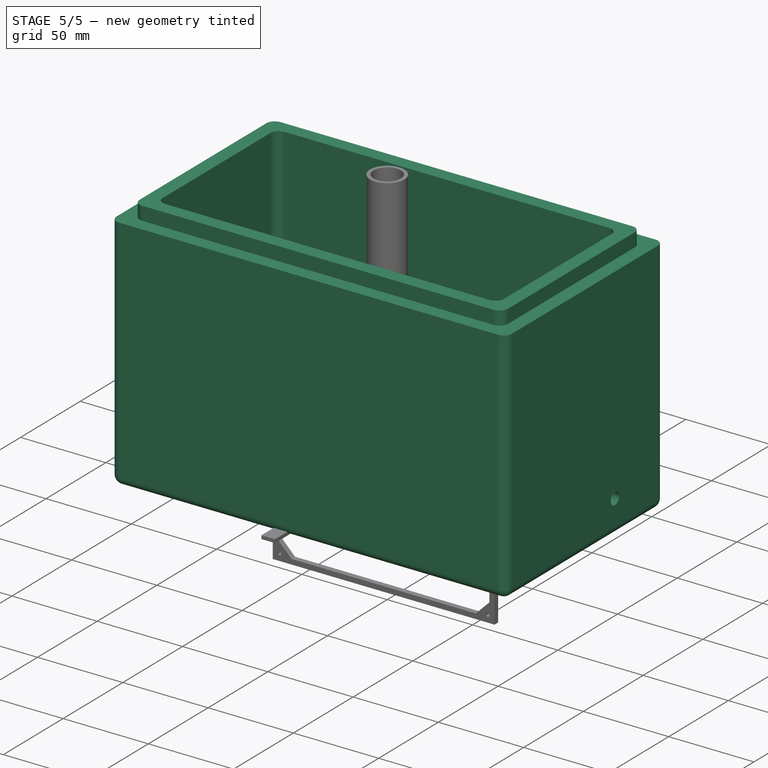
[diagram: stage 5 of 5 — iso view after this stage's code; geometry added in this stage tinted green]
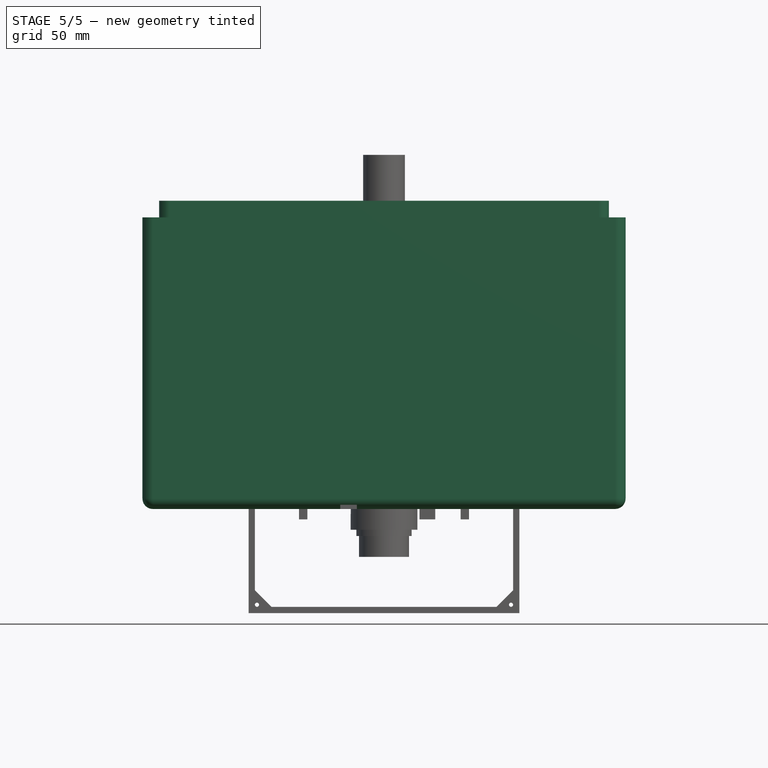
[diagram: stage 5 of 5 — front view after this stage's code; geometry added in this stage tinted green]
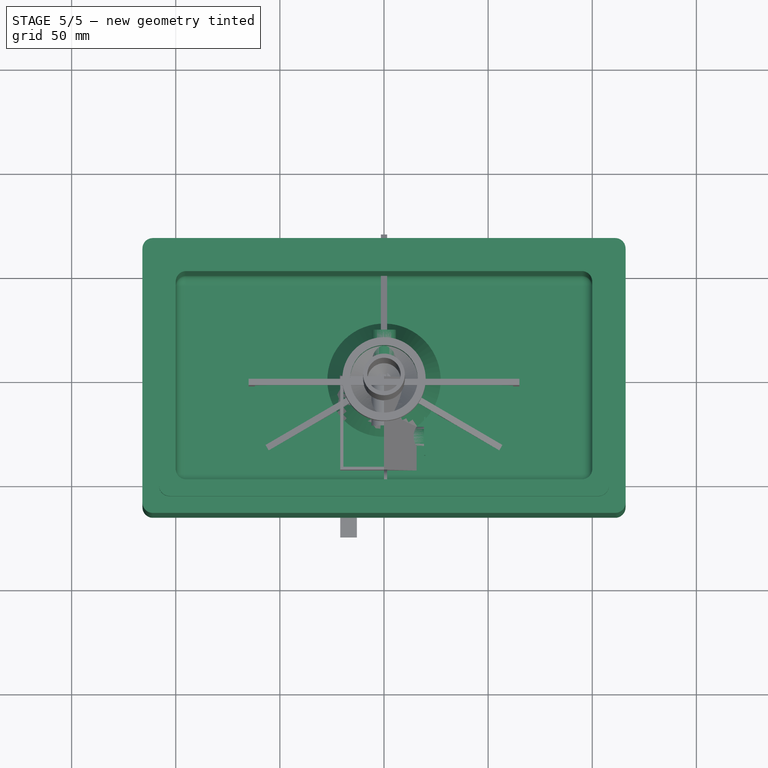
[diagram: stage 5 of 5 — top view after this stage's code; geometry added in this stage tinted green]
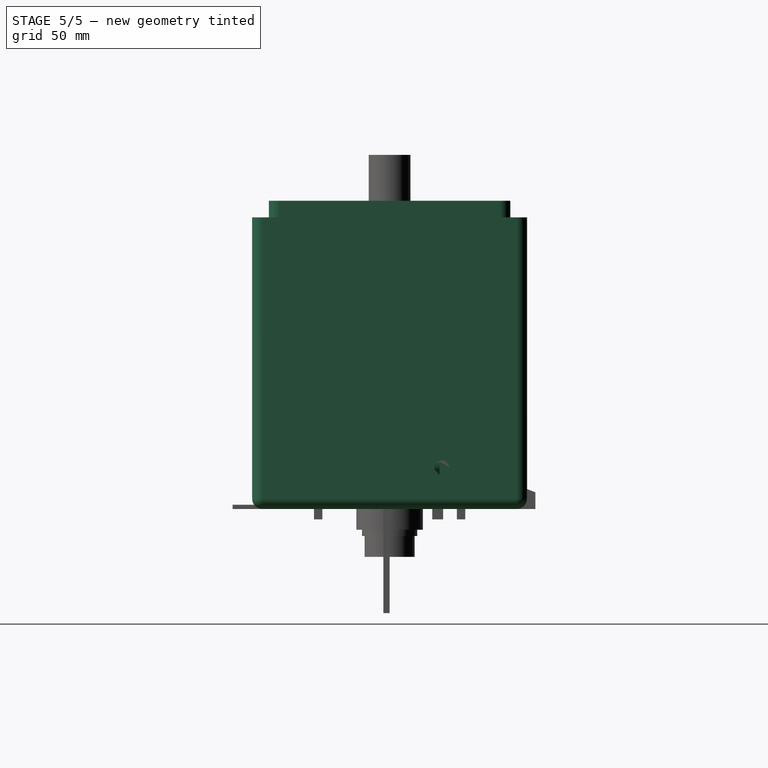
[diagram: stage 5 of 5 — right view after this stage's code; geometry added in this stage tinted green]
FEATURE [App::VarSet] VarSet  label="Measurements"
  HeatingElementLength = 100
  HeatingElementWidth = 80
  IncubatorInnerHight = 130
  IncubatorInnerLength = 200
  IncubatorInnerWidth = 100
  IncubatorWallThickness = 16
  WaterTubeDistanceFromWall = 10
  WaterTubeInnerDiameter = 7
  WaterTubeOuterDiameter = 10
FEATURE [Sketcher::SketchObject] Sketch
  ArcFitTolerance = 1e-06
  AttachmentSupport = -> [XY_Plane]
  FullyConstrained = true
  MakeInternals = false
  MapMode = 5
  expr: .Constraints.InnerLength = <<Measurements>>.IncubatorInnerLength + <<Measurements>>.IncubatorWallThickness * 2
  expr: Constraints[11] = <<Measurements>>.IncubatorInnerWidth + <<Measurements>>.IncubatorWallThickness * 2
  sketch-geometry (5):
    g0: LineSegment StartX=-116 StartY=66 StartZ=0 EndX=-116 EndY=-66 EndZ=0
    g1: LineSegment StartX=-116 StartY=-66 StartZ=0 EndX=116 EndY=-66 EndZ=0
    g2: LineSegment StartX=116 StartY=-66 StartZ=0 EndX=116 EndY=66 EndZ=0
    g3: LineSegment StartX=116 StartY=66 StartZ=0 EndX=-116 EndY=66 EndZ=0
    g4: GeomPoint [constr] X=0 Y=0 Z=0
  constraints (12):
    c: Coincident(g0,g1)
    c: Coincident(g1,g2)
    c: Coincident(g2,g3)
    c: Coincident(g3,g0)
    c: Vertical(g0)
    c: Vertical(g2)
    c: Horizontal(g1)
    c: Horizontal(g3)
    c: Symmetric(g2,g0,g4)
    c: Coincident(g4,g-1)
    c: DistanceX(g3,g3) = 232  'InnerLength'
    c: DistanceY(g0,g0) = 132
FEATURE [PartDesign::Pad] Pad
  Direction = (0,0,1)
  Length = 140
  Length2 = 10
  Profile = -> Sketch
  ReferenceAxis = -> Sketch [N_Axis]
  Refine = true
  Suppressed = false
  Type = 0
  expr: Length = <<Measurements>>.IncubatorInnerHight + <<Measurements>>.IncubatorWallThickness - 6 mm
FEATURE [Sketcher::SketchObject] Sketch001  label="SketchInnerPocket"
  ArcFitTolerance = 1e-06
  AttachmentSupport = -> [Pad]
  FullyConstrained = true
  MakeInternals = false
  MapMode = 5
  Placement = pos=(0,0,140) rot=(0,0,1;0rad)
  expr: Constraints[10] = <<Measurements>>.IncubatorInnerLength
  expr: Constraints[11] = <<Measurements>>.IncubatorInnerWidth
  sketch-geometry (5):
    g0: LineSegment StartX=-100 StartY=50 StartZ=0 EndX=-100 EndY=-50 EndZ=0
    g1: LineSegment StartX=-100 StartY=-50 StartZ=0 EndX=100 EndY=-50 EndZ=0
    g2: LineSegment StartX=100 StartY=-50 StartZ=0 EndX=100 EndY=50 EndZ=0
    g3: LineSegment StartX=100 StartY=50 StartZ=0 EndX=-100 EndY=50 EndZ=0
    g4: GeomPoint [constr] X=0 Y=0 Z=0
  constraints (12):
    c: Coincident(g0,g1)
    c: Coincident(g1,g2)
    c: Coincident(g2,g3)
    c: Coincident(g3,g0)
    c: Vertical(g0)
    c: Vertical(g2)
    c: Horizontal(g1)
    c: Horizontal(g3)
    c: Symmetric(g2,g0,g4)
    c: Coincident(g4,g-1)
    c: DistanceX(g3,g3) = 200
    c: DistanceY(g0,g0) = 100
FEATURE [PartDesign::Pocket] Pocket
  BaseFeature = -> Pad
  Direction = (0,0,-1)
  Length = 130
  Length2 = 5
  Profile = -> Sketch001
  ReferenceAxis = -> Sketch001 [N_Axis]
  Refine = true
  Suppressed = false
  Type = 0
  expr: Length = <<Measurements>>.IncubatorInnerHight
FEATURE [Sketcher::SketchObject] Sketch002
  ArcFitTolerance = 1e-06
  AttachmentSupport = -> [Pocket]
  ExternalGeometry = -> [Pocket]
  FullyConstrained = true
  MakeInternals = false
  MapMode = 5
  Placement = pos=(0,0,140) rot=(0,0,1;0rad)
  expr: Constraints[21] = <<Measurements>>.IncubatorWallThickness / 2
  expr: Constraints[22] = <<Measurements>>.IncubatorWallThickness / 2
  sketch-geometry (10):
    g0: LineSegment StartX=100 StartY=-50 StartZ=0 EndX=100 EndY=50 EndZ=0
    g1: LineSegment StartX=100 StartY=50 StartZ=0 EndX=-100 EndY=50 EndZ=0
    g2: LineSegment StartX=-100 StartY=50 StartZ=0 EndX=-100 EndY=-50 EndZ=0
    g3: LineSegment StartX=-100 StartY=-50 StartZ=0 EndX=100 EndY=-50 EndZ=0
    g4: GeomPoint [constr] X=0 Y=0 Z=0
    g5: LineSegment StartX=108 StartY=-58 StartZ=0 EndX=108 EndY=58 EndZ=0
    g6: LineSegment StartX=108 StartY=58 StartZ=0 EndX=-108 EndY=58 EndZ=0
    g7: LineSegment StartX=-108 StartY=58 StartZ=0 EndX=-108 EndY=-58 EndZ=0
    g8: LineSegment StartX=-108 StartY=-58 StartZ=0 EndX=108 EndY=-58 EndZ=0
    g9: GeomPoint [constr] X=0 Y=0 Z=0
  constraints (23):
    c: Coincident(g0,g1)
    c: Coincident(g1,g2)
    c: Coincident(g2,g3)
    c: Coincident(g3,g0)
    c: Vertical(g0)
    c: Vertical(g2)
    c: Horizontal(g1)
    c: Horizontal(g3)
    c: Symmetric(g2,g0,g4)
    c: Coincident(g4,g-1)
    c: Coincident(g1,g-3)
    c: Coincident(g5,g6)
    c: Coincident(g6,g7)
    c: Coincident(g7,g8)
    c: Coincident(g8,g5)
    c: Vertical(g5)
    c: Vertical(g7)
    c: Horizontal(g6)
    c: Horizontal(g8)
    c: Symmetric(g7,g5,g9)
    c: Coincident(g9,g4)
    c: DistanceX(g6,g1) = 8
    c: DistanceY(g1,g6) = 8
FEATURE [PartDesign::Pad] Pad001  label="CoverBevel"
  BaseFeature = -> Pocket
  Direction = (0,0,1)
  Length = 8
  Length2 = 10
  Profile = -> Sketch002
  ReferenceAxis = -> Sketch002 [N_Axis]
  Refine = true
  Suppressed = false
  Type = 0
  expr: Length = <<Measurements>>.IncubatorWallThickness / 2
FEATURE [PartDesign::Fillet] Fillet
  Base = -> Pad001 [Edge2,Edge8,Edge5,Edge9,Edge11,Edge35,Edge36,Edge1,Edge31,Edge29,Edge30,Edge33,Edge34,Edge32,Edge17,Edge18,Edge22,Edge20,Edge6,Edge3]
  BaseFeature = -> Pad001
  Radius = 5
  Refine = true
  SupportTransform = false
  Suppressed = false
  UseAllEdges = false
FEATURE [Sketcher::SketchObject] Sketch003
  ArcFitTolerance = 1e-06
  AttachmentSupport = -> [XY_Plane001]
  FullyConstrained = true
  MakeInternals = false
  MapMode = 5
  expr: Constraints[10] = <<Measurements>>.IncubatorInnerWidth
  expr: Constraints[11] = <<Measurements>>.IncubatorInnerLength / 5
  sketch-geometry (5):
    g0: LineSegment StartX=-20 StartY=50 StartZ=0 EndX=-20 EndY=-50 EndZ=0
    g1: LineSegment StartX=-20 StartY=-50 StartZ=0 EndX=20 EndY=-50 EndZ=0
    g2: LineSegment StartX=20 StartY=-50 StartZ=0 EndX=20 EndY=50 EndZ=0
    g3: LineSegment StartX=20 StartY=50 StartZ=0 EndX=-20 EndY=50 EndZ=0
    g4: GeomPoint [constr] X=0 Y=0 Z=0
  constraints (12):
    c: Coincident(g0,g1)
    c: Coincident(g1,g2)
    c: Coincident(g2,g3)
    c: Coincident(g3,g0)
    c: Vertical(g0)
    c: Vertical(g2)
    c: Horizontal(g1)
    c: Horizontal(g3)
    c: Symmetric(g2,g0,g4)
    c: Coincident(g4,g-1)
    c: DistanceY(g0,g0) = 100
    c: DistanceX(g3,g3) = 40
FEATURE [PartDesign::Pad] Pad002  label="PadBasinHight"
  Direction = (0,0,1)
  Length = 20
  Length2 = 10
  Profile = -> Sketch003
  ReferenceAxis = -> Sketch003 [N_Axis]
  Refine = true
  Suppressed = false
  Type = 0
  expr: Length = <<BasinMeasurements>>.Height
FEATURE [Sketcher::SketchObject] Sketch004
  ArcFitTolerance = 1e-06
  AttachmentSupport = -> [Pad002]
  ExternalGeometry = -> [Pad002]
  FullyConstrained = true
  MakeInternals = false
  MapMode = 5
  Placement = pos=(0,0,20) rot=(0,0,1;0rad)
  expr: .Constraints.Thickness = <<BasinMeasurements>>.WallThickness
  sketch-geometry (6):
    g0: LineSegment StartX=19.2 StartY=-49.2 StartZ=0 EndX=19.2 EndY=49.2 EndZ=0
    g1: LineSegment StartX=19.2 StartY=49.2 StartZ=0 EndX=-19.2 EndY=49.2 EndZ=0
    g2: LineSegment StartX=-19.2 StartY=49.2 StartZ=0 EndX=-19.2 EndY=-49.2 EndZ=0
    g3: LineSegment StartX=-19.2 StartY=-49.2 StartZ=0 EndX=19.2 EndY=-49.2 EndZ=0
    g4: GeomPoint [constr] X=0 Y=0 Z=0
    g5: LineSegment [constr] StartX=-20 StartY=50 StartZ=0 EndX=0 EndY=30 EndZ=0
  constraints (15):
    c: Coincident(g0,g1)
    c: Coincident(g2,g3)
    c: Coincident(g3,g0)
    c: Vertical(g0)
    c: Vertical(g2)
    c: Horizontal(g1)
    c: Horizontal(g3)
    c: Symmetric(g2,g0,g4)
    c: Coincident(g4,g-1)
    c: DistanceY(g1,g-3) = 0.8  'Thickness'
    c: Coincident(g5,g-3)
    c: PointOnObject(g5,g-2)
    c: Angle(g-2,g5) = 0.785398
    c: PointOnObject(g1,g5)
    c: Coincident(g2,g1)
FEATURE [PartDesign::Pocket] Pocket001
  BaseFeature = -> Pad002
  Direction = (0,0,-1)
  Length = 19.2
  Length2 = 5
  Profile = -> Sketch004
  ReferenceAxis = -> Sketch004 [N_Axis]
  Refine = true
  Suppressed = false
  Type = 0
  expr: Length = <<BasinMeasurements>>.Height - <<BasinMeasurements>>.WallThickness
FEATURE [App::VarSet] VarSet001  label="BasinMeasurements"
  Height = 20
  WallThickness = 0.8
  WaterInletWallThickness = 1.5
FEATURE [Sketcher::SketchObject] Sketch006
  ArcFitTolerance = 1e-06
  AttachmentOffset = pos=(2,0,0) rot=(0,0,1;0rad)
  AttachmentSupport = -> [Pocket001]
  FullyConstrained = true
  MakeInternals = false
  MapMode = 5
  Placement = pos=(19.2,-2,0) rot=(0.57735,-0.57735,-0.57735;2.0944rad)
  expr: Constraints[0] = <<BasinMeasurements>>.WallThickness
  expr: Constraints[1] = <<Measurements>>.WaterTubeOuterDiameter + <<BasinMeasurements>>.WaterInletWallThickness
  expr: Constraints[2] = <<Measurements>>.IncubatorInnerWidth / 4
  sketch-geometry (1):
    g0: Circle CenterX=25 CenterY=6.55 CenterZ=0 NormalX=0 NormalY=0 NormalZ=1 AngleXU=0 Radius=5.75
  constraints (3):
    c: Distance(g0,g-1) = 0.8
    c: Diameter(g0) = 11.5
    c: Distance(g0,g-2) = 25
FEATURE [PartDesign::Pad] Pad003
  BaseFeature = -> Pocket001
  Direction = (-1,0,0)
  Length = 10
  Length2 = 10
  Profile = -> Sketch006
  ReferenceAxis = -> Sketch006 [N_Axis]
  Refine = true
  Suppressed = false
  Type = 0
FEATURE [Sketcher::SketchObject] Sketch008
  ArcFitTolerance = 1e-06
  AttachmentSupport = -> [Fillet]
  FullyConstrained = true
  MakeInternals = false
  MapMode = 5
  Placement = pos=(116,0,0) rot=(0.57735,0.57735,0.57735;2.0944rad)
  expr: Constraints[0] = <<Measurements>>.WaterTubeInnerDiameter
  expr: Constraints[1] = <<Measurements>>.IncubatorInnerWidth / 4
  expr: Constraints[2] = <<Measurements>>.IncubatorWallThickness + <<BasinMeasurements>>.WallThickness + 3 mm
  sketch-geometry (1):
    g0: Circle CenterX=25 CenterY=19.8 CenterZ=0 NormalX=0 NormalY=0 NormalZ=1 AngleXU=0 Radius=3.5
  constraints (3):
    c: Diameter(g0) = 7
    c: Distance(g0,g-2) = 25
    c: Distance(g0,g-1) = 19.8
FEATURE [PartDesign::Pocket] Pocket003
  BaseFeature = -> Fillet
  Direction = (-1,0,0)
  Length = 16
  Length2 = 5
  Profile = -> Sketch008
  ReferenceAxis = -> Sketch008 [N_Axis]
  Refine = true
  Suppressed = false
  Type = 0
  expr: Length = <<Measurements>>.IncubatorWallThickness
FEATURE [PartDesign::Body] Body  label="StyrofoamBox"
  AllowCompound = false
  Group = -> [Sketch,Pad,Sketch001,Pocket,Sketch002,Pad001,Fillet,Sketch008,Pocket003]
  Origin = -> Origin
  Tip = -> Pocket003
FEATURE [Sketcher::SketchObject] Sketch009
  ArcFitTolerance = 1e-06
  AttachmentSupport = -> [Pad003]
  ExternalGeometry = -> [Pad003]
  FullyConstrained = true
  MakeInternals = false
  MapMode = 5
  Placement = pos=(9.2,0,0) rot=(0.57735,-0.57735,-0.57735;2.0944rad)
  expr: Constraints[1] = <<Measurements>>.WaterTubeOuterDiameter
  sketch-geometry (1):
    g0: Circle CenterX=27 CenterY=6.55 CenterZ=0 NormalX=0 NormalY=0 NormalZ=1 AngleXU=0 Radius=5
  constraints (2):
    c: Coincident(g0,g-3)
    c: Diameter(g0) = 10
FEATURE [PartDesign::Pocket] Pocket004
  BaseFeature = -> Pad003
  Direction = (1,0,0)
  Length = 10.8
  Length2 = 5
  Profile = -> Sketch009
  ReferenceAxis = -> Sketch009 [N_Axis]
  Refine = true
  Suppressed = false
  Type = 0
  expr: Length = 10 mm + <<BasinMeasurements>>.WallThickness
FEATURE [PartDesign::Fillet] Fillet001  label="FullBodyWithFillet"
  Base = -> Pocket004 [Edge6,Edge9,Edge28,Edge25]
  BaseFeature = -> Pocket004
  Radius = 5
  Refine = true
  SupportTransform = false
  Suppressed = false
  UseAllEdges = false
FEATURE [Sketcher::SketchObject] Sketch010
  ArcFitTolerance = 1e-06
  AttachmentSupport = -> [Fillet001]
  ExternalGeometry = -> [Fillet001]
  FullyConstrained = true
  MakeInternals = false
  MapMode = 5
  Placement = pos=(0,0,20) rot=(0,0,1;0rad)
  expr: Constraints[22] = (<<Measurements>>.WaterTubeOuterDiameter + <<BasinMeasurements>>.WaterInletWallThickness) * 1.6
  sketch-geometry (9):
    g0: LineSegment StartX=-20 StartY=50 StartZ=0 EndX=-20 EndY=-50 EndZ=0
    g1: LineSegment StartX=-20 StartY=-50 StartZ=0 EndX=20 EndY=-50 EndZ=0
    g2: LineSegment StartX=20 StartY=50 StartZ=0 EndX=-20 EndY=50 EndZ=0
    g3: LineSegment StartX=20 StartY=-50 StartZ=0 EndX=20 EndY=-36.2 EndZ=0
    g4: LineSegment StartX=20 StartY=-36.2 StartZ=0 EndX=0 EndY=-36.2 EndZ=0
    g5: LineSegment StartX=0 StartY=-36.2 StartZ=0 EndX=0 EndY=-17.8 EndZ=0
    g6: LineSegment StartX=0 StartY=-17.8 StartZ=0 EndX=20 EndY=-17.8 EndZ=0
    g7: LineSegment StartX=20 StartY=-17.8 StartZ=0 EndX=20 EndY=50 EndZ=0
    g8: LineSegment [constr] StartX=-20 StartY=-27 StartZ=0 EndX=20 EndY=-27 EndZ=0
  constraints (24):
    c: Coincident(g0,g1)
    c: Coincident(g2,g0)
    c: Horizontal(g1)
    c: Horizontal(g2)
    c: Coincident(g0,g-3)
    c: Coincident(g0,g-3)
    c: Vertical(g1,g-4)
    c: Coincident(g3,g1)
    c: PointOnObject(g3,g-4)
    c: Coincident(g4,g3)
    c: PointOnObject(g4,g-2)
    c: Horizontal(g4)
    c: Coincident(g6,g5)
    c: PointOnObject(g6,g-4)
    c: Horizontal(g6)
    c: Coincident(g7,g6)
    c: Coincident(g7,g2)
    c: Vertical(g7)
    c: PointOnObject(g8,g0)
    c: PointOnObject(g8,g-4)
    c: Symmetric(g-5,g-5,g8)
    c: Symmetric(g4,g5,g8)
    c: DistanceY(g3,g6) = 18.4
    c: Coincident(g5,g4)
FEATURE [PartDesign::Pocket] Pocket005  label="WaterInletPrintTest"
  BaseFeature = -> Fillet001
  Direction = (0,0,-1)
  Length = 5
  Length2 = 5
  Profile = -> Sketch010
  ReferenceAxis = -> Sketch010 [N_Axis]
  Refine = true
  Suppressed = false
  Type = 1
FEATURE [PartDesign::Body] Body001  label="WaterBasin"
  AllowCompound = false
  Group = -> [Sketch003,Pad002,Sketch004,Pocket001,Sketch006,Pad003,Sketch009,Pocket004,Fillet001,VarSet001,Sketch010,Pocket005]
  Origin = -> Origin001
  Tip = -> Pocket005
FEATURE [Sketcher::SketchObject] Sketch011
  ArcFitTolerance = 1e-06
  AttachmentSupport = -> [XZ_Plane002]
  FullyConstrained = true
  MakeInternals = false
  MapMode = 5
  Placement = pos=(0,0,0) rot=(1,0,0;1.5708rad)
  expr: .Constraints.WallThickness = <<WaterBottleHolderMeasurements>>.WallThickness
  expr: Constraints[28] = <<WaterBottleHolderMeasurements>>.WallThickness
  expr: Constraints[29] = <<WaterBottleHolderMeasurements>>.WallThickness
  expr: Constraints[6] = <<Measurements>>.IncubatorWallThickness + <<BasinMeasurements>>.WallThickness + <<Measurements>>.WaterTubeOuterDiameter + <<BasinMeasurements>>.WaterInletWallThickness
  sketch-geometry (11):
    g0: LineSegment StartX=0 StartY=0 StartZ=0 EndX=-30 EndY=0 EndZ=0
    g1: LineSegment StartX=-30 StartY=0 StartZ=0 EndX=-30 EndY=5 EndZ=0
    g2: LineSegment [constr] StartX=-17 StartY=28.3 StartZ=0 EndX=17 EndY=28.3 EndZ=0
    g3: LineSegment StartX=-30 StartY=5 StartZ=0 EndX=-17 EndY=28.3 EndZ=0
    g4: LineSegment StartX=-17 StartY=28.3 StartZ=0 EndX=-17 EndY=48.3 EndZ=0
    g5: LineSegment StartX=-17 StartY=48.3 StartZ=0 EndX=-16.2 EndY=48.3 EndZ=0
    g6: LineSegment StartX=-16.2 StartY=48.3 StartZ=0 EndX=-16.2 EndY=28.3 EndZ=0
    g7: LineSegment StartX=-16.2 StartY=28.3 StartZ=0 EndX=-29.2 EndY=5 EndZ=0
    g8: LineSegment StartX=-29.2 StartY=5 StartZ=0 EndX=-29.2 EndY=0.8 EndZ=0
    g9: LineSegment StartX=-29.2 StartY=0.8 StartZ=0 EndX=0 EndY=0.8 EndZ=0
    g10: LineSegment StartX=0 StartY=0.8 StartZ=0 EndX=0 EndY=0 EndZ=0
  constraints (31):
    c: Distance(g0) = 30  'BaseRadius'
    c: Coincident(g0,g-1)
    c: PointOnObject(g0,g-1)
    c: Distance(g1) = 5
    c: Coincident(g1,g0)
    c: Vertical(g1)
    c: Distance(g2,g0) = 28.3
    c: Symmetric(g2,g2,g-2)
    c: DistanceX(g2,g2) = 34
    c: Coincident(g3,g1)
    c: Coincident(g3,g2)
    c: Coincident(g4,g2)
    c: Vertical(g4)
    c: DistanceY(g4,g4) = 20
    c: Distance(g5) = 0.8  'WallThickness'
    c: Coincident(g5,g4)
    c: Horizontal(g5)
    c: Coincident(g6,g5)
    c: PointOnObject(g6,g2)
    c: Vertical(g6)
    c: Coincident(g7,g6)
    c: Coincident(g8,g7)
    c: PointOnObject(g9,g-2)
    c: Horizontal(g9)
    c: Coincident(g10,g9)
    c: Coincident(g10,g0)
    c: Coincident(g8,g9)
    c: Vertical(g8)
    c: DistanceX(g0,g8) = 0.8
    c: Distance(g9,g-1) = 0.8
    c: Horizontal(g1,g7)
FEATURE [App::VarSet] VarSet002  label="WaterBottleHolderMeasurements"
  WallThickness = 0.8
FEATURE [PartDesign::Revolution] Revolution
  Angle = 360
  Angle2 = 60
  Axis = (0,2e-16,1)
  Base = (0,0,0)
  Placement = pos=(0,0,0) rot=(1,0,0;1.5708rad)
  Profile = -> Sketch011
  ReferenceAxis = -> Sketch011 [V_Axis]
  Refine = true
  Suppressed = false
  Type = 0
FEATURE [Sketcher::SketchObject] Sketch012
  ArcFitTolerance = 1e-06
  AttachmentSupport = -> [Revolution]
  FullyConstrained = true
  MakeInternals = false
  MapMode = 5
  Placement = pos=(0,4e-16,0.8) rot=(0,0,1;3.14159rad)
  sketch-geometry (5):
    g0: LineSegment StartX=-0.5 StartY=-24 StartZ=0 EndX=0.5 EndY=-24 EndZ=0
    g1: LineSegment StartX=0.5 StartY=-24 StartZ=0 EndX=0.5 EndY=-10 EndZ=0
    g2: LineSegment StartX=0.5 StartY=-10 StartZ=0 EndX=-0.5 EndY=-10 EndZ=0
    g3: LineSegment StartX=-0.5 StartY=-10 StartZ=0 EndX=-0.5 EndY=-24 EndZ=0
    g4: GeomPoint [constr] X=0 Y=-17 Z=0
  constraints (12):
    c: Coincident(g0,g1)
    c: Coincident(g1,g2)
    c: Coincident(g2,g3)
    c: Coincident(g3,g0)
    c: Horizontal(g0)
    c: Vertical(g1)
    c: Symmetric(g2,g0,g4)
    c: PointOnObject(g4,g-2)
    c: Symmetric(g2,g1,g-2)
    c: Distance(g1,g-1) = 10
    c: DistanceY(g1,g1) = 14
    c: Distance(g0,g0) = 1
FEATURE [PartDesign::Pad] Pad004  label="WaterOutletStand"
  BaseFeature = -> Revolution
  Direction = (0,0,1)
  Length = 21
  Length2 = 10
  Placement = pos=(0,0,0) rot=(1,0,0;1.5708rad)
  Profile = -> Sketch012
  ReferenceAxis = -> Sketch012 [N_Axis]
  Refine = true
  Suppressed = false
  Type = 0
  UpToShape = -> [Revolution]
  expr: Length = <<Measurements>>.IncubatorWallThickness + <<BasinMeasurements>>.WallThickness + <<Measurements>>.WaterTubeOuterDiameter / 2 - <<WaterBottleHolderMeasurements>>.WallThickness
FEATURE [Sketcher::SketchObject] Sketch013
  ArcFitTolerance = 1e-06
  AttachmentSupport = -> [Pad004]
  ExternalGeometry = -> [Pad004]
  FullyConstrained = true
  MakeInternals = false
  MapMode = 5
  Placement = pos=(0,24,-5.3e-15) rot=(-1,0,0;1.5708rad)
  expr: Constraints[1] = <<Measurements>>.WaterTubeOuterDiameter + <<BasinMeasurements>>.WaterInletWallThickness
  sketch-geometry (1):
    g0: Circle CenterX=0 CenterY=-21.8 CenterZ=0 NormalX=0 NormalY=0 NormalZ=1 AngleXU=0 Radius=5.75
  constraints (2):
    c: Symmetric(g-3,g-3,g0)
    c: Diameter(g0) = 11.5
FEATURE [PartDesign::Pad] Pad005  label="WaterOutletOuterShape"
  BaseFeature = -> Pad004
  Direction = (0,1,2e-16)
  Length = 14
  Length2 = 10
  Placement = pos=(0,0,0) rot=(1,0,0;1.5708rad)
  Profile = -> Sketch013
  ReferenceAxis = -> Sketch013 [N_Axis]
  Refine = true
  Reversed = true
  Suppressed = false
  Type = 0
FEATURE [Sketcher::SketchObject] Sketch014
  ArcFitTolerance = 1e-06
  AttachmentSupport = -> [Pad005]
  ExternalGeometry = -> [Pad005]
  FullyConstrained = true
  MakeInternals = false
  MapMode = 5
  Placement = pos=(0,24,0) rot=(-1,0,0;1.5708rad)
  expr: Constraints[0] = <<Measurements>>.WaterTubeOuterDiameter
  sketch-geometry (1):
    g0: Circle CenterX=0 CenterY=-21.8 CenterZ=0 NormalX=0 NormalY=0 NormalZ=1 AngleXU=0 Radius=5
  constraints (2):
    c: Diameter(g0) = 10
    c: Coincident(g-3,g0)
FEATURE [PartDesign::Pocket] Pocket006  label="WaterOutletHole"
  BaseFeature = -> Pad005
  Direction = (0,-1,-2e-16)
  Length = 14
  Length2 = 5
  Placement = pos=(0,0,0) rot=(1,0,0;1.5708rad)
  Profile = -> Sketch014
  ReferenceAxis = -> Sketch014 [N_Axis]
  Refine = true
  Suppressed = false
  Type = 0
FEATURE [Sketcher::SketchObject] Sketch016
  ArcFitTolerance = 1e-06
  AttachmentSupport = -> [Pad006]
  ExternalGeometry = -> [Pad006]
  FullyConstrained = true
  MakeInternals = false
  MapMode = 5
  Placement = pos=(0,0,15) rot=(0,0,1;0rad)
  expr: Constraints[10] = <<BasinMeasurements>>.WallThickness
  sketch-geometry (5):
    g0: LineSegment StartX=-6.7 StartY=6.7 StartZ=0 EndX=-6.7 EndY=-6.7 EndZ=0
    g1: LineSegment StartX=-6.7 StartY=-6.7 StartZ=0 EndX=6.7 EndY=-6.7 EndZ=0
    g2: LineSegment StartX=6.7 StartY=-6.7 StartZ=0 EndX=6.7 EndY=6.7 EndZ=0
    g3: LineSegment StartX=6.7 StartY=6.7 StartZ=0 EndX=-6.7 EndY=6.7 EndZ=0
    g4: GeomPoint [constr] X=0 Y=0 Z=0
  constraints (12):
    c: Coincident(g0,g1)
    c: Coincident(g1,g2)
    c: Coincident(g2,g3)
    c: Coincident(g3,g0)
    c: Vertical(g0)
    c: Vertical(g2)
    c: Horizontal(g1)
    c: Horizontal(g3)
    c: Symmetric(g2,g0,g4)
    c: Coincident(g4,g-1)
    c: DistanceX(g-3,g0) = 0.8
    c: Equal(g0,g3)
FEATURE [PartDesign::Pocket] Pocket007
  BaseFeature = -> Pad006
  Direction = (0,0,-1)
  Length = 14.2
  Length2 = 5
  Profile = -> Sketch016
  ReferenceAxis = -> Sketch016 [N_Axis]
  Refine = true
  Suppressed = false
  Type = 0
  expr: Length = 15 mm - <<BasinMeasurements>>.WallThickness
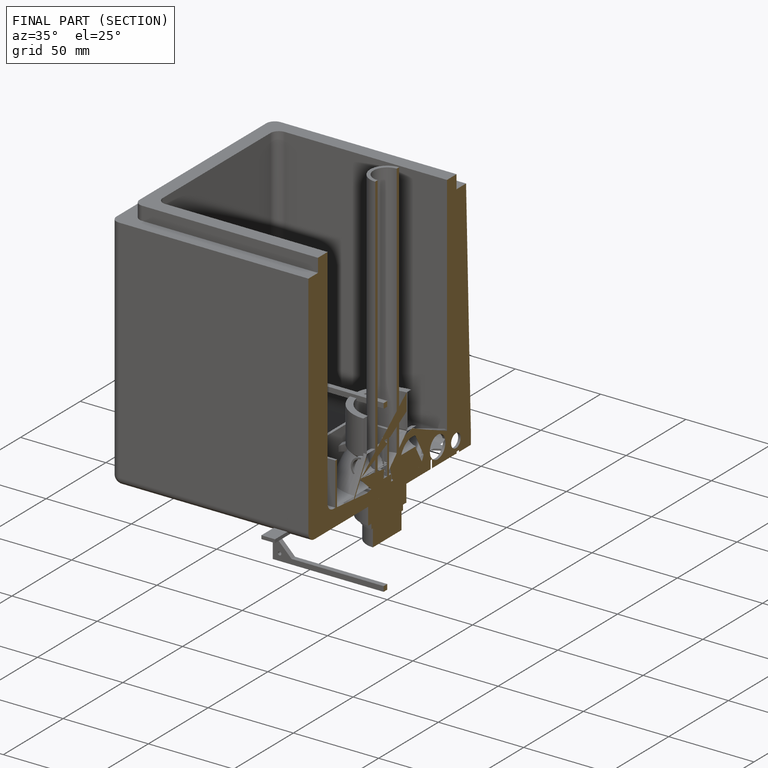
[diagram: finished part — half-section view (interior)]
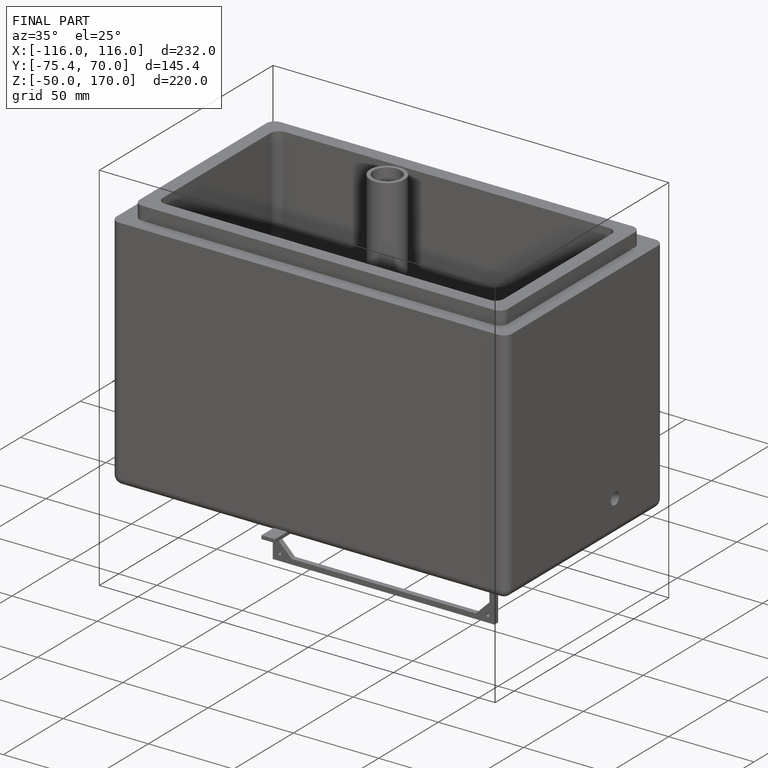
[diagram: finished part — iso view with bounding-box wireframe]
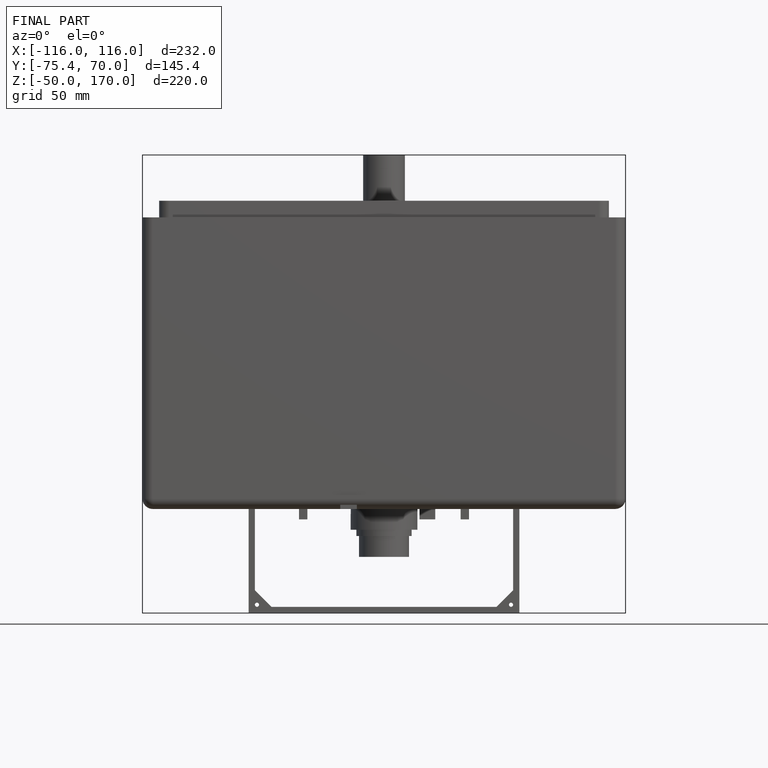
[diagram: finished part — front view with bounding-box wireframe]
